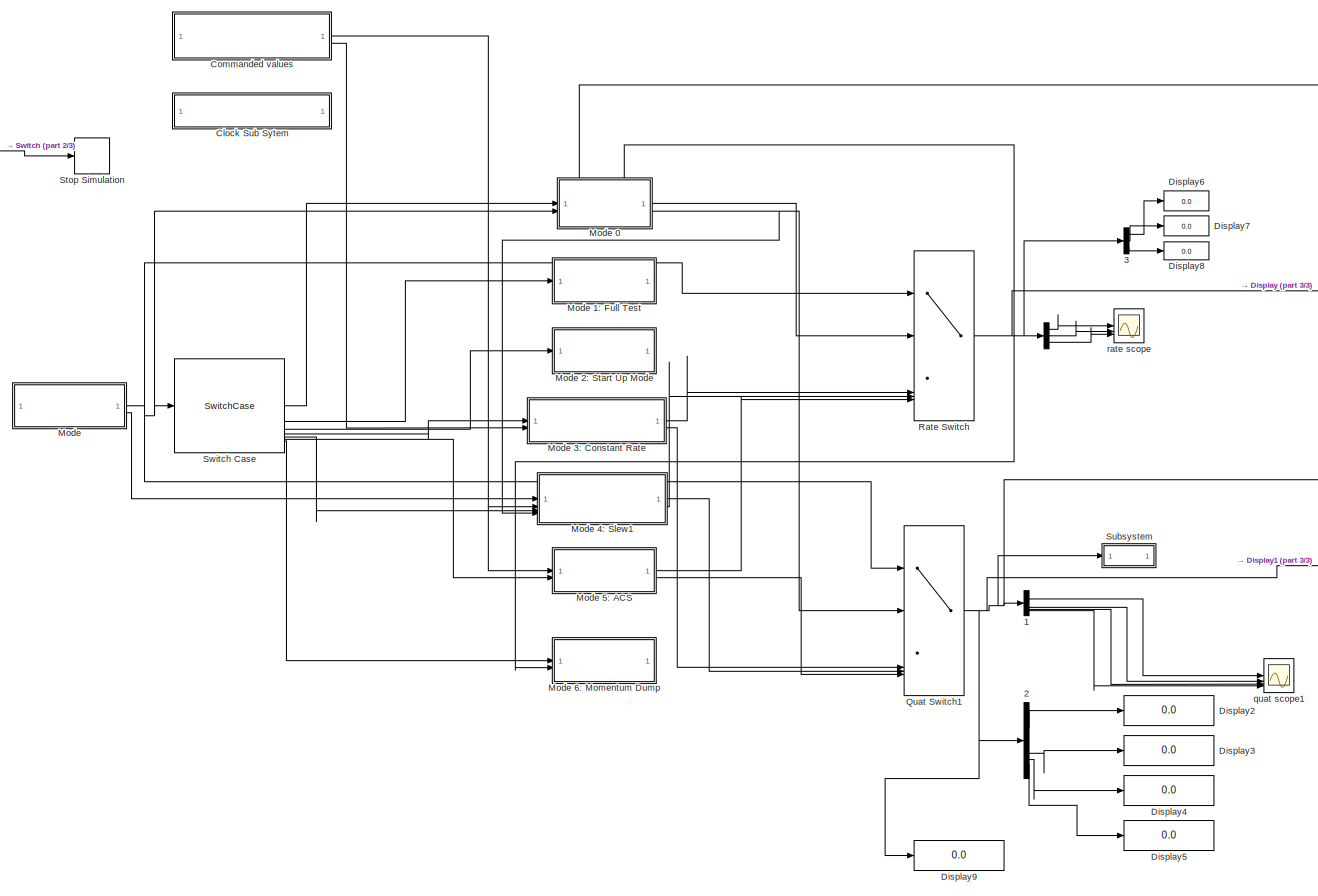
[diagram: root canvas - part 1/3, center side, full height]
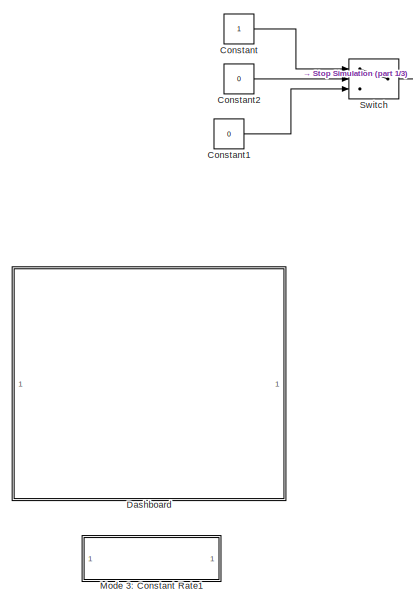
[diagram: root canvas - part 2/3, middle left region]
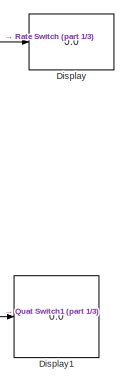
[diagram: root canvas - part 3/3, middle right region]
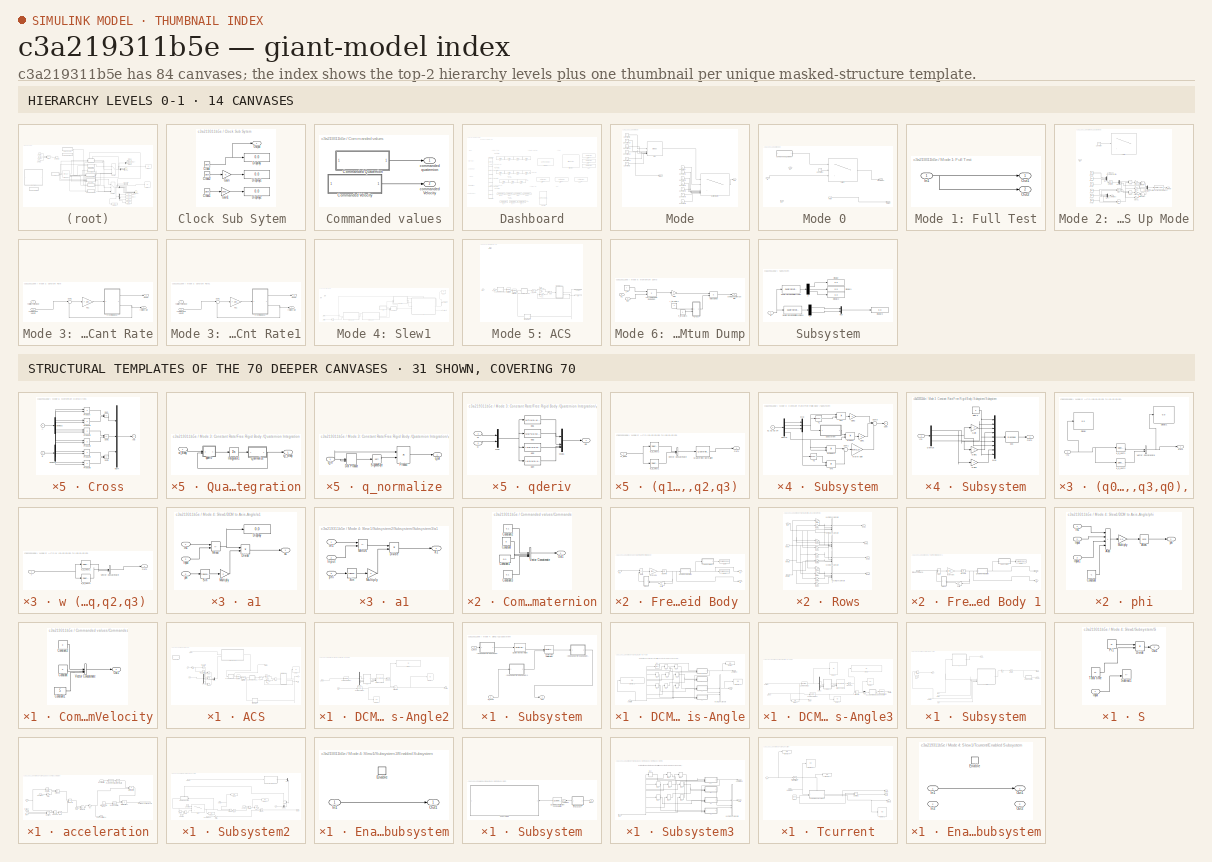
[diagram: thumbnail index - top-2 hierarchy levels (14 canvases) + 31 structural-template representatives of the remaining 70 canvases]
MODEL slx_c3a219311b5e
KIND model
CONFIG AbsTol = auto
CONFIG EnableMultiTasking = off
CONFIG FixedStep = auto
CONFIG MaxStep = 0.001
CONFIG MinStep = auto
CONFIG RelTol = 1e-5
CONFIG SampleTimeConstraint = Unconstrained
CONFIG SolverName = VariableStepAuto
CONFIG StartTime = 0.0
CONFIG StopTime = inf
WORKSPACE source: mxarray member
WORKSPACE A = 10
BLOCK [Demux]  
  DisplayOption = none
  Outputs = 3
BLOCK [Demux]  1
  DisplayOption = none
BLOCK [Demux]  2
  DisplayOption = none
BLOCK [Demux]  3
  DisplayOption = none
  Outputs = 3
BLOCK [SubSystem] Clock Sub Sytem 
BLOCK [Clock] Clock Sub Sytem /Clock
BLOCK [Clock] Clock Sub Sytem /Clock1
BLOCK [Clock] Clock Sub Sytem /Clock2
BLOCK [Display] Clock Sub Sytem /Display
  Decimation = 1
BLOCK [Display] Clock Sub Sytem /Display1
  Decimation = 1
BLOCK [Display] Clock Sub Sytem /Display2
  Decimation = 1
BLOCK [Gain] Clock Sub Sytem /Gain
BLOCK [Gain] Clock Sub Sytem /Gain1
  Gain = 3600
BLOCK [Outport] Clock Sub Sytem /Output
BLOCK [SubSystem] Commanded values
BLOCK [SubSystem] Commanded values/Commanded Quaternion
BLOCK [Constant] Commanded values/Commanded Quaternion/Constant
  Value = 8
BLOCK [Constant] Commanded values/Commanded Quaternion/Constant1
  Value = 0.1
BLOCK [Constant] Commanded values/Commanded Quaternion/Constant2
  Value = 0.1
BLOCK [Constant] Commanded values/Commanded Quaternion/Constant3
  Value = 0.1
BLOCK [Outport] Commanded values/Commanded Quaternion/Out1
BLOCK [Concatenate] Commanded values/Commanded Quaternion/Vector Concatenate
  NumInputs = 4
BLOCK [SubSystem] Commanded values/Commanded Velocity
BLOCK [Constant] Commanded values/Commanded Velocity/Constant
  Value = 0
BLOCK [Constant] Commanded values/Commanded Velocity/Constant1
  Value = 5
BLOCK [Constant] Commanded values/Commanded Velocity/Constant2
  Value = 0
BLOCK [Outport] Commanded values/Commanded Velocity/Out1
BLOCK [Concatenate] Commanded values/Commanded Velocity/Vector Concatenate
  NumInputs = 3
BLOCK [Outport] Commanded values/commanded Velocity
  Port = 2
BLOCK [Outport] Commanded values/commanded quaternion
BLOCK [Constant] Constant
BLOCK [Constant] Constant1
  Value = 0
BLOCK [Constant] Constant2
  Value = 0
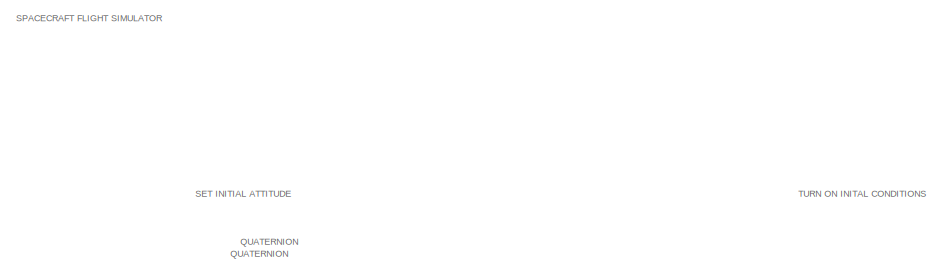
[diagram: Dashboard - part 1/4, top left region]
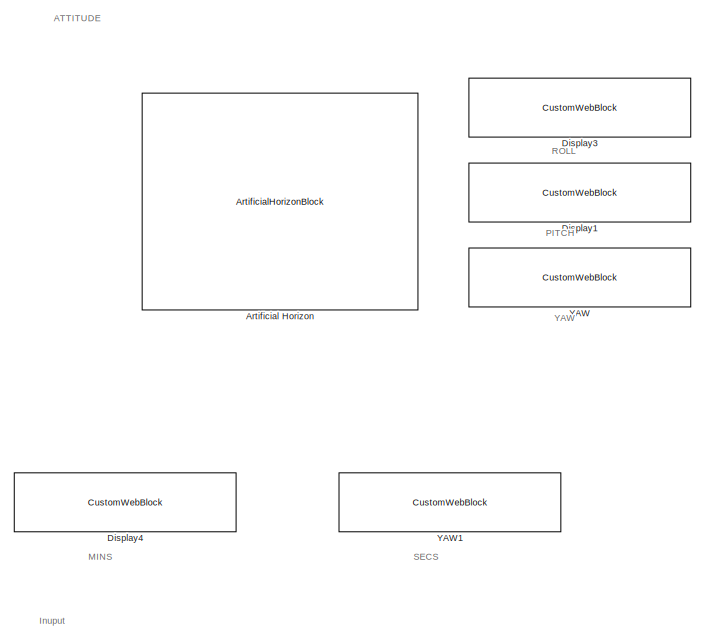
[diagram: Dashboard - part 2/4, middle right region]
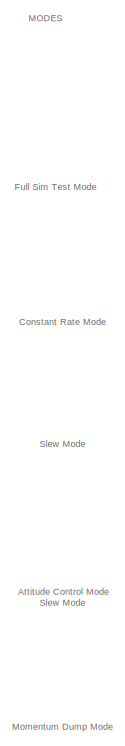
[diagram: Dashboard - part 3/4, middle left region]
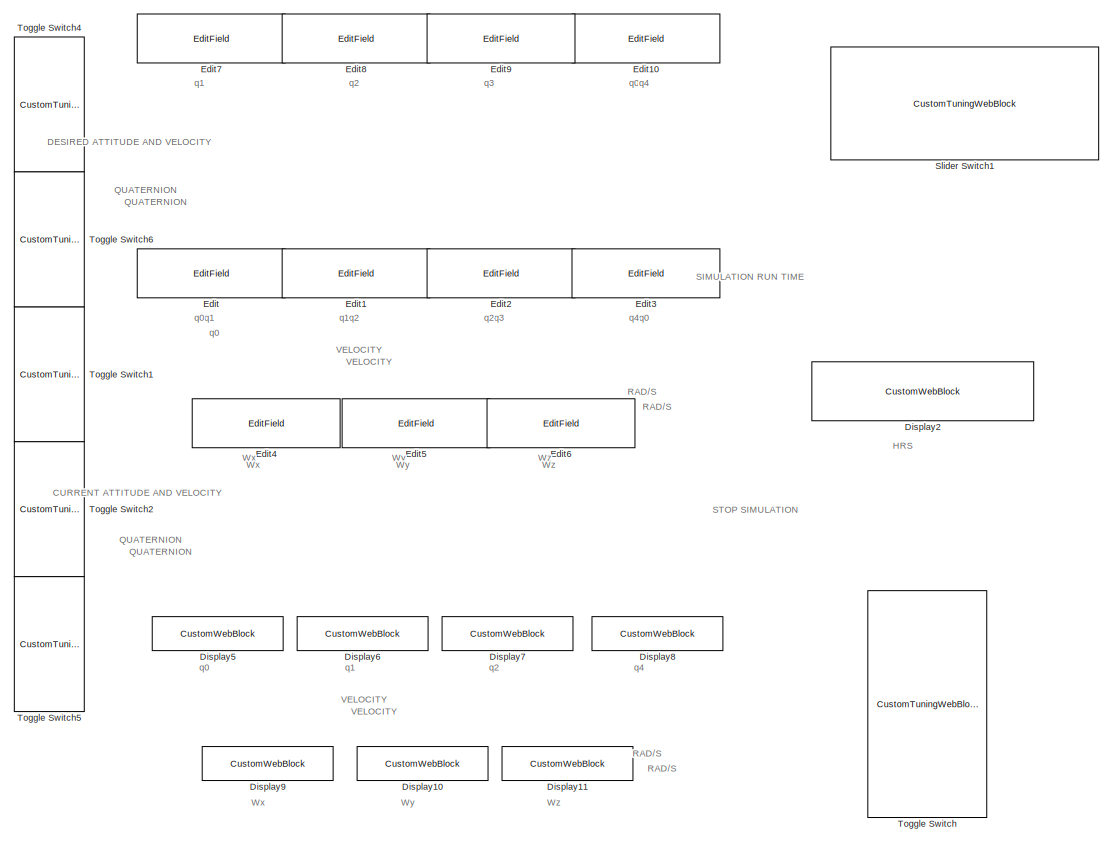
[diagram: Dashboard - part 4/4, central region]
BLOCK [SubSystem] Dashboard
BLOCK [ArtificialHorizonBlock] Dashboard/Artificial Horizon
BLOCK [CustomWebBlock] Dashboard/Display1
  Configuration = {"components":[{"name":"DisplayComponent","settings":{"bold":false,"font":"DSEG7 Classic","fontColor":[255,255,200],"fontSize":"14","format":"short","formatString":"%d","italic":false,"position":[0,0,1,1],"underline":false}},{"name":"BackgroundImageComponent","settings":{"image":{"size":[300,80],"src":"data:image\/svg+xml;base64,PHN2ZyBpZD0iZnJhbWUiIHhtbG5zPSJodHRwOi8vd3d3LnczLm9yZy8yMDAwL3N2ZyIge...<+1637ch>  <repeated x13 — deduplicated; at blocks: Display1, Display10, Display11, Display2, Display3, Display4, Display5, Display6, Display7, Display8, Display9, YAW, YAW1>
  LabelPosition = Hide
  ShowInitialText = on
BLOCK [CustomWebBlock] Dashboard/Display10
  LabelPosition = Hide
  ShowInitialText = on
BLOCK [CustomWebBlock] Dashboard/Display11
  LabelPosition = Hide
  ShowInitialText = on
BLOCK [CustomWebBlock] Dashboard/Display2
  LabelPosition = Hide
  ShowInitialText = on
BLOCK [CustomWebBlock] Dashboard/Display3
  LabelPosition = Hide
  ShowInitialText = on
BLOCK [CustomWebBlock] Dashboard/Display4
  LabelPosition = Hide
  ShowInitialText = on
BLOCK [CustomWebBlock] Dashboard/Display5
  LabelPosition = Hide
  ShowInitialText = on
BLOCK [CustomWebBlock] Dashboard/Display6
  LabelPosition = Hide
  ShowInitialText = on
BLOCK [CustomWebBlock] Dashboard/Display7
  LabelPosition = Hide
  ShowInitialText = on
BLOCK [CustomWebBlock] Dashboard/Display8
  LabelPosition = Hide
  ShowInitialText = on
BLOCK [CustomWebBlock] Dashboard/Display9
  LabelPosition = Hide
  ShowInitialText = on
BLOCK [EditField] Dashboard/Edit
  Alignment = Center
  LabelPosition = Hide
  ShowInitialText = on
BLOCK [EditField] Dashboard/Edit1
  Alignment = Center
  LabelPosition = Hide
  ShowInitialText = on
BLOCK [EditField] Dashboard/Edit10
  Alignment = Center
  LabelPosition = Hide
  ShowInitialText = on
BLOCK [EditField] Dashboard/Edit2
  Alignment = Center
  LabelPosition = Hide
  ShowInitialText = on
BLOCK [EditField] Dashboard/Edit3
  Alignment = Center
  LabelPosition = Hide
  ShowInitialText = on
BLOCK [EditField] Dashboard/Edit4
  Alignment = Center
  LabelPosition = Hide
  ShowInitialText = on
BLOCK [EditField] Dashboard/Edit5
  Alignment = Center
  LabelPosition = Hide
  ShowInitialText = on
BLOCK [EditField] Dashboard/Edit6
  Alignment = Center
  LabelPosition = Hide
  ShowInitialText = on
BLOCK [EditField] Dashboard/Edit7
  Alignment = Center
  LabelPosition = Hide
  ShowInitialText = on
BLOCK [EditField] Dashboard/Edit8
  Alignment = Center
  LabelPosition = Hide
  ShowInitialText = on
BLOCK [EditField] Dashboard/Edit9
  Alignment = Center
  LabelPosition = Hide
  ShowInitialText = on
BLOCK [CustomTuningWebBlock] Dashboard/Slider Switch1
  Configuration = {"components":[{"name":"CustomSwitchStateComponent","settings":{"position":[0,0,1,1],"states":[{"HitRegion":{"position":[0,0,0.5,1]},"Image":{"position":[0,0,1,1],"size":[1,1],"src":"data:image\/svg+xml;base64,PD94bWwgdmVyc2lvbj0iMS4wIiBlbmNvZGluZz0idXRmLTgiPz4NCjwhLS0gR2VuZXJhdG9yOiBBZG9iZSBJbGx1c3RyYXRvciAyNS4yLjEsIFNWRyBFeHBvcnQgUGx1Zy1JbiAuIFNWRyBWZXJzaW9uOiA2LjAwIEJ1aWxkIDApICAtLT4NCjxzdmcgdm...<+12680ch>
  LabelPosition = Hide
  ShowInitialText = on
BLOCK [CustomTuningWebBlock] Dashboard/Toggle Switch
  Configuration = {"components":[{"name":"CustomSwitchStateComponent","settings":{"position":[0,0,1,1],"showAllLabels":1,"states":[{"HitRegion":{"position":[0.5,0,1,0.5]},"Image":{"position":[0,0.24928571428571428,0.5014285714285714,1],"size":[0.5014285714285714,1],"src":"data:image\/svg+xml;base64,PHN2ZyB4bWxucz0iaHR0cDovL3d3dy53My5vcmcvMjAwMC9zdmciIHhtbG5zOnhsaW5rPSJodHRwOi8vd3d3LnczLm9yZy8xOTk5L3hsaW5rIiB2aWV3Qm...<+9166ch>
  LabelPosition = Hide
  ShowInitialText = on
BLOCK [CustomTuningWebBlock] Dashboard/Toggle Switch1
  Configuration = {"components":[{"name":"CustomSwitchStateComponent","settings":{"position":[0,0,1,1],"showAllLabels":1,"states":[{"HitRegion":{"position":[0.5,0,1,0.5]},"Image":{"position":[0,0.24928571428571428,0.5014285714285714,1],"size":[0.5014285714285714,1],"src":"data:image\/svg+xml;base64,PHN2ZyB4bWxucz0iaHR0cDovL3d3dy53My5vcmcvMjAwMC9zdmciIHhtbG5zOnhsaW5rPSJodHRwOi8vd3d3LnczLm9yZy8xOTk5L3hsaW5rIiB2aWV3Qm...<+9064ch>  <repeated x5 — deduplicated; at blocks: Toggle Switch1, Toggle Switch2, Toggle Switch4, Toggle Switch5, Toggle Switch6>
  CustomBackgroundColor = {"color":[0.00784313725490196,0.09411764705882353,0.16862745098039217],"show":true}
  LabelPosition = Hide
  ShowInitialText = on
BLOCK [CustomTuningWebBlock] Dashboard/Toggle Switch2
  CustomBackgroundColor = {"color":[0.00784313725490196,0.09411764705882353,0.16862745098039217],"show":true}
  LabelPosition = Hide
  ShowInitialText = on
BLOCK [CustomTuningWebBlock] Dashboard/Toggle Switch4
  CustomBackgroundColor = {"color":[0.00784313725490196,0.09411764705882353,0.16862745098039217],"show":true}
  LabelPosition = Hide
  ShowInitialText = on
BLOCK [CustomTuningWebBlock] Dashboard/Toggle Switch5
  CustomBackgroundColor = {"color":[0.00784313725490196,0.09411764705882353,0.16862745098039217],"show":true}
  LabelPosition = Hide
  ShowInitialText = on
BLOCK [CustomTuningWebBlock] Dashboard/Toggle Switch6
  CustomBackgroundColor = {"color":[0.00784313725490196,0.09411764705882353,0.16862745098039217],"show":true}
  LabelPosition = Hide
  ShowInitialText = on
BLOCK [CustomWebBlock] Dashboard/YAW
  LabelPosition = Hide
  ShowInitialText = on
BLOCK [CustomWebBlock] Dashboard/YAW1
  LabelPosition = Hide
  ShowInitialText = on
BLOCK [Display] Display
  Decimation = 1
BLOCK [Display] Display1
  Decimation = 1
BLOCK [Display] Display2
  Decimation = 1
BLOCK [Display] Display3
  Decimation = 1
BLOCK [Display] Display4
  Decimation = 1
BLOCK [Display] Display5
  Decimation = 1
BLOCK [Display] Display6
  Decimation = 1
BLOCK [Display] Display7
  Decimation = 1
BLOCK [Display] Display8
  Decimation = 1
BLOCK [Display] Display9
  Decimation = 1
BLOCK [SubSystem] Mode
BLOCK [SubSystem] Mode 0 
  PortSchema = {"entries":[{"content":{"sides":[{"content":{"connectorIds":["In1","In2"]},"type":"ConnectorPlacement.EquallySpacedRectSide","uuid":"86d363f2-53dc-4b23-b557-4d4fa5837e38"},{"content":{"connectorIds":["Out1","Out2"],"side":"RIGHT"},"type":"ConnectorPlacement.EquallySpacedRectSide","uuid":"eedbdfbc-6d02-4f31-9c03-399fb804b597"},{"content":{"connectorIds":["In3","In4"],"side":"TOP"},"type":"Connector...<+264ch>
BLOCK [SubSystem] Mode 0 /Commanded Quaternion
BLOCK [Constant] Mode 0 /Commanded Quaternion/Constant
  Value = 2
BLOCK [Constant] Mode 0 /Commanded Quaternion/Constant1
  Value = 5
BLOCK [Constant] Mode 0 /Commanded Quaternion/Constant2
  Value = 2
BLOCK [Constant] Mode 0 /Commanded Quaternion/Constant3
  Value = 3
BLOCK [Outport] Mode 0 /Commanded Quaternion/QUaternion
BLOCK [Concatenate] Mode 0 /Commanded Quaternion/Vector Concatenate
  NumInputs = 4
BLOCK [Constant] Mode 0 /Constant
  Value = 0
BLOCK [Inport] Mode 0 /In1
BLOCK [Inport] Mode 0 /In2
  Port = 2
BLOCK [Inport] Mode 0 /Q
  Port = 3
BLOCK [Outport] Mode 0 /Quaternion
  Port = 2
BLOCK [Inport] Mode 0 /Rate
  Port = 4
BLOCK [Outport] Mode 0 /Rate2
BLOCK [Switch] Mode 0 /Switch
  Criteria = u2 > Threshold
  InputSameDT = off
  SaturateOnIntegerOverflow = off
BLOCK [SubSystem] Mode 1: Full Test
  Commented = on
BLOCK [Inport] Mode 1: Full Test/In1
BLOCK [Outport] Mode 1: Full Test/Out1
BLOCK [Outport] Mode 1: Full Test/Out2
  Port = 2
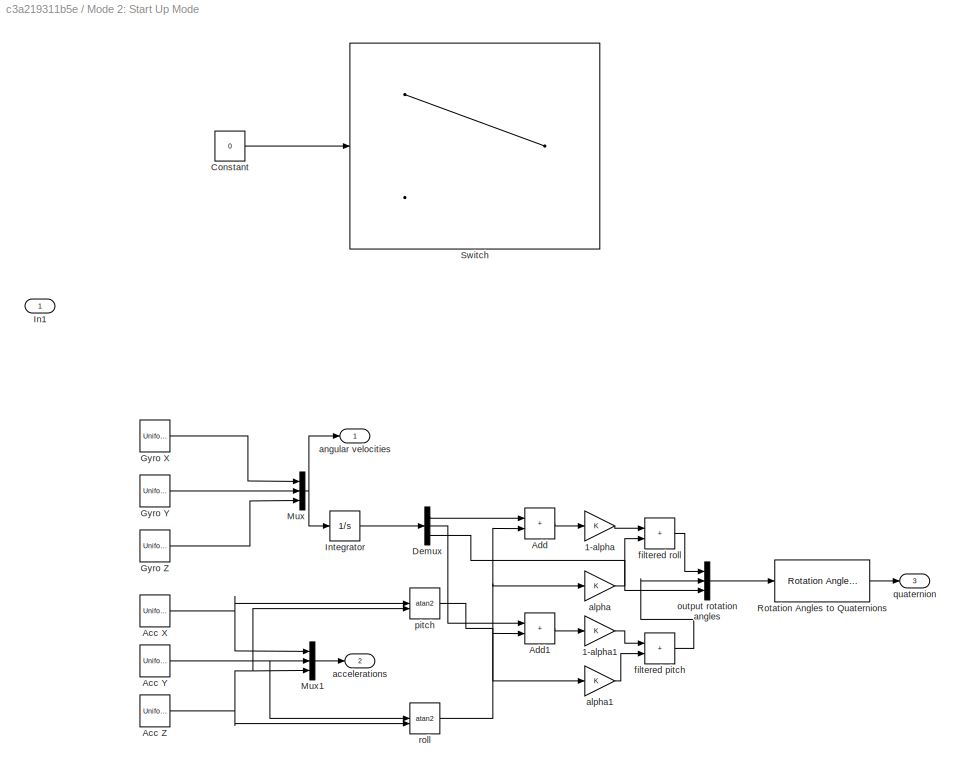
BLOCK [SubSystem] Mode 2: Start Up Mode
  Commented = on
BLOCK [Gain] Mode 2: Start Up Mode/1-alpha
BLOCK [Gain] Mode 2: Start Up Mode/1-alpha1
BLOCK [UniformRandomNumber] Mode 2: Start Up Mode/Acc X
  Maximum = 100
  Minimum = w_init
  SampleTime = 0.1
BLOCK [UniformRandomNumber] Mode 2: Start Up Mode/Acc Y
  Maximum = 100
  Minimum = w_init
  SampleTime = 0.1
BLOCK [UniformRandomNumber] Mode 2: Start Up Mode/Acc Z
  Maximum = 100
  Minimum = w_init
  SampleTime = 0.1
BLOCK [Sum] Mode 2: Start Up Mode/Add
  IconShape = rectangular
BLOCK [Sum] Mode 2: Start Up Mode/Add1
  IconShape = rectangular
BLOCK [Constant] Mode 2: Start Up Mode/Constant
  Value = 0
BLOCK [Demux] Mode 2: Start Up Mode/Demux
  Outputs = 3
BLOCK [UniformRandomNumber] Mode 2: Start Up Mode/Gyro X
  Maximum = 100
  Minimum = w_init
  SampleTime = 0.1
BLOCK [UniformRandomNumber] Mode 2: Start Up Mode/Gyro Y
  Maximum = 100
  Minimum = w_init
  SampleTime = 0.1
BLOCK [UniformRandomNumber] Mode 2: Start Up Mode/Gyro Z
  Maximum = 100
  Minimum = w_init
  SampleTime = 0.1
BLOCK [Inport] Mode 2: Start Up Mode/In1
BLOCK [Integrator] Mode 2: Start Up Mode/Integrator
BLOCK [Mux] Mode 2: Start Up Mode/Mux
  DisplayOption = bar
  Inputs = 3
BLOCK [Mux] Mode 2: Start Up Mode/Mux1
  DisplayOption = bar
  Inputs = 3
BLOCK [Reference] Mode 2: Start Up Mode/Rotation Angles to Quaternions  REF=sharedtransform/Rotation Angles to Quaternions
  AttributesFormatString = Rotation Order: %<rotationOrder>
  LibrarySourceBlock = aerolibtransform2/Rotation Angles to Quaternions
  SourceBlock = sharedtransform/Rotation Angles to Quaternions
  SourceType = Ang2Quat
BLOCK [Switch] Mode 2: Start Up Mode/Switch
  Criteria = u2 > Threshold
  InputSameDT = off
  SaturateOnIntegerOverflow = off
BLOCK [Outport] Mode 2: Start Up Mode/accelerations
  Port = 2
BLOCK [Gain] Mode 2: Start Up Mode/alpha
BLOCK [Gain] Mode 2: Start Up Mode/alpha1
BLOCK [Outport] Mode 2: Start Up Mode/angular velocities
BLOCK [Sum] Mode 2: Start Up Mode/filtered pitch
  IconShape = rectangular
BLOCK [Sum] Mode 2: Start Up Mode/filtered roll
  IconShape = rectangular
BLOCK [Mux] Mode 2: Start Up Mode/output rotation angles
  DisplayOption = bar
  Inputs = 3
BLOCK [Trigonometry] Mode 2: Start Up Mode/pitch
  Operator = atan2
BLOCK [Outport] Mode 2: Start Up Mode/quaternion
  Port = 3
BLOCK [Trigonometry] Mode 2: Start Up Mode/roll
  Operator = atan2
BLOCK [SubSystem] Mode 3: Constant Rate
BLOCK [SubSystem] Mode 3: Constant Rate/Free Rigid Body 
BLOCK [SubSystem] Mode 3: Constant Rate/Free Rigid Body /Cross
BLOCK [Inport] Mode 3: Constant Rate/Free Rigid Body /Cross/A
BLOCK [Outport] Mode 3: Constant Rate/Free Rigid Body /Cross/AxB
  InitialOutput = 0
BLOCK [Inport] Mode 3: Constant Rate/Free Rigid Body /Cross/B
  Port = 2
BLOCK [Mux] Mode 3: Constant Rate/Free Rigid Body /Cross/Mux4
  Inputs = 3
BLOCK [Product] Mode 3: Constant Rate/Free Rigid Body /Cross/Product
  InputSameDT = on
  OutDataTypeStr = Inherit: Same as first input
  SaturateOnIntegerOverflow = on
BLOCK [Product] Mode 3: Constant Rate/Free Rigid Body /Cross/Product1
  InputSameDT = on
  OutDataTypeStr = Inherit: Same as first input
  SaturateOnIntegerOverflow = on
BLOCK [Product] Mode 3: Constant Rate/Free Rigid Body /Cross/Product2
  InputSameDT = on
  OutDataTypeStr = Inherit: Same as first input
  SaturateOnIntegerOverflow = on
BLOCK [Product] Mode 3: Constant Rate/Free Rigid Body /Cross/Product3
  InputSameDT = on
  OutDataTypeStr = Inherit: Same as first input
  SaturateOnIntegerOverflow = on
BLOCK [Product] Mode 3: Constant Rate/Free Rigid Body /Cross/Product4
  InputSameDT = on
  OutDataTypeStr = Inherit: Same as first input
  SaturateOnIntegerOverflow = on
BLOCK [Product] Mode 3: Constant Rate/Free Rigid Body /Cross/Product5
  InputSameDT = on
  OutDataTypeStr = Inherit: Same as first input
  SaturateOnIntegerOverflow = on
BLOCK [Sum] Mode 3: Constant Rate/Free Rigid Body /Cross/Sum
  IconShape = rectangular
  InputSameDT = on
  Inputs = +-
  OutDataTypeStr = Inherit: Same as first input
  SaturateOnIntegerOverflow = on
BLOCK [Sum] Mode 3: Constant Rate/Free Rigid Body /Cross/Sum1
  IconShape = rectangular
  InputSameDT = on
  Inputs = +-
  OutDataTypeStr = Inherit: Same as first input
  SaturateOnIntegerOverflow = on
BLOCK [Sum] Mode 3: Constant Rate/Free Rigid Body /Cross/Sum2
  IconShape = rectangular
  InputSameDT = on
  Inputs = +-
  OutDataTypeStr = Inherit: Same as first input
  SaturateOnIntegerOverflow = on
BLOCK [Demux] Mode 3: Constant Rate/Free Rigid Body /Cross/demux2
  DisplayOption = none
  Outputs = 3
BLOCK [Demux] Mode 3: Constant Rate/Free Rigid Body /Cross/demux3
  DisplayOption = none
  Outputs = 3
BLOCK [ToWorkspace] Mode 3: Constant Rate/Free Rigid Body /DCM
  FixptAsFi = on
  MaxDataPoints = inf
  SampleTime = -1
  SaveFormat = Structure With Time
  VariableName = DCM
BLOCK [Inport] Mode 3: Constant Rate/Free Rigid Body /In2
BLOCK [Gain] Mode 3: Constant Rate/Free Rigid Body /Inertia
  Gain = I
  Multiplication = Matrix(K*u)
  OutDataTypeStr = Inherit: Same as input
  ParamDataTypeStr = Inherit: Same as input
  SaturateOnIntegerOverflow = on
BLOCK [Gain] Mode 3: Constant Rate/Free Rigid Body /Isc inverse
  Gain = invI
  Multiplication = Matrix(K*u)
  OutDataTypeStr = Inherit: Same as input
  ParamDataTypeStr = Inherit: Same as input
  SaturateOnIntegerOverflow = on
BLOCK [SubSystem] Mode 3: Constant Rate/Free Rigid Body /Quaternion Integration
BLOCK [Integrator] Mode 3: Constant Rate/Free Rigid Body /Quaternion Integration/Integrator1
  InitialCondition = q_init
BLOCK [Outport] Mode 3: Constant Rate/Free Rigid Body /Quaternion Integration/q_I_Body
BLOCK [SubSystem] Mode 3: Constant Rate/Free Rigid Body /Quaternion Integration/q_normalize
BLOCK [DotProduct] Mode 3: Constant Rate/Free Rigid Body /Quaternion Integration/q_normalize/Dot Product
  OutDataTypeStr = Inherit: Inherit via internal rule
BLOCK [Product] Mode 3: Constant Rate/Free Rigid Body /Quaternion Integration/q_normalize/Product
  InputSameDT = on
  Inputs = */
  OutDataTypeStr = Inherit: Same as first input
  SaturateOnIntegerOverflow = on
BLOCK [Sqrt] Mode 3: Constant Rate/Free Rigid Body /Quaternion Integration/q_normalize/SignedSqrt
  IntermediateResultsDataTypeStr = double
BLOCK [Inport] Mode 3: Constant Rate/Free Rigid Body /Quaternion Integration/q_normalize/q_in
  PortDimensions = 4
BLOCK [Outport] Mode 3: Constant Rate/Free Rigid Body /Quaternion Integration/q_normalize/q_out
BLOCK [SubSystem] Mode 3: Constant Rate/Free Rigid Body /Quaternion Integration/qderiv
BLOCK [Mux] Mode 3: Constant Rate/Free Rigid Body /Quaternion Integration/qderiv/Mux
  DisplayOption = bar
  Inputs = 2
BLOCK [Mux] Mode 3: Constant Rate/Free Rigid Body /Quaternion Integration/qderiv/Mux1
  DisplayOption = bar
BLOCK [Inport] Mode 3: Constant Rate/Free Rigid Body /Quaternion Integration/qderiv/q
  Port = 2
BLOCK [Outport] Mode 3: Constant Rate/Free Rigid Body /Quaternion Integration/qderiv/qd
BLOCK [Fcn] Mode 3: Constant Rate/Free Rigid Body /Quaternion Integration/qderiv/qd1
  Expr = (u(7)*u(1)-u(6)*u(2)+u(5)*u(3))/2
BLOCK [Fcn] Mode 3: Constant Rate/Free Rigid Body /Quaternion Integration/qderiv/qd2
  Expr = (u(6)*u(1)+u(7)*u(2)-u(4)*u(3))/2
BLOCK [Fcn] Mode 3: Constant Rate/Free Rigid Body /Quaternion Integration/qderiv/qd3
  Expr = (-u(5)*u(1)+u(4)*u(2)+u(7)*u(3))/2
BLOCK [Fcn] Mode 3: Constant Rate/Free Rigid Body /Quaternion Integration/qderiv/qd4
  Expr = (-u(4)*u(1)-u(5)*u(2)-u(6)*u(3))/2
BLOCK [Inport] Mode 3: Constant Rate/Free Rigid Body /Quaternion Integration/qderiv/w
BLOCK [Inport] Mode 3: Constant Rate/Free Rigid Body /Quaternion Integration/w_Body
BLOCK [SubSystem] Mode 3: Constant Rate/Free Rigid Body /Subsystem
BLOCK [Outport] Mode 3: Constant Rate/Free Rigid Body /Subsystem/DCM
  InitialOutput = 0
BLOCK [Demux] Mode 3: Constant Rate/Free Rigid Body /Subsystem/Demux
  DisplayOption = none
BLOCK [Gain] Mode 3: Constant Rate/Free Rigid Body /Subsystem/Gain1
  Gain = 2
  OutDataTypeStr = Inherit: Same as input
  ParamDataTypeStr = Inherit: Same as input
  SaturateOnIntegerOverflow = on
BLOCK [Gain] Mode 3: Constant Rate/Free Rigid Body /Subsystem/Gain2
  Gain = 2
  OutDataTypeStr = Inherit: Same as input
  ParamDataTypeStr = Inherit: Same as input
  SaturateOnIntegerOverflow = on
BLOCK [Gain] Mode 3: Constant Rate/Free Rigid Body /Subsystem/Matrix Gain
  Gain = eye(3,3)
  OutDataTypeStr = Inherit: Same as input
  ParamDataTypeStr = Inherit: Same as input
  SaturateOnIntegerOverflow = on
BLOCK [Mux] Mode 3: Constant Rate/Free Rigid Body /Subsystem/Mux
  DisplayOption = bar
  Inputs = 3
BLOCK [Product] Mode 3: Constant Rate/Free Rigid Body /Subsystem/Product
  InputSameDT = on
  OutDataTypeStr = Inherit: Same as first input
  SaturateOnIntegerOverflow = on
BLOCK [Product] Mode 3: Constant Rate/Free Rigid Body /Subsystem/Product1
  InputSameDT = on
  OutDataTypeStr = Inherit: Same as first input
  SaturateOnIntegerOverflow = on
BLOCK [SubSystem] Mode 3: Constant Rate/Free Rigid Body /Subsystem/Subsystem
BLOCK [Reshape] Mode 3: Constant Rate/Free Rigid Body /Subsystem/Subsystem/3x3
  OutputDimensionality = Customize
  OutputDimensions = [3,3]
BLOCK [Demux] Mode 3: Constant Rate/Free Rigid Body /Subsystem/Subsystem/Demux
  DisplayOption = none
  Outputs = 3
BLOCK [Gain] Mode 3: Constant Rate/Free Rigid Body /Subsystem/Subsystem/Gain
  Gain = -1
  OutDataTypeStr = Inherit: Same as input
  ParamDataTypeStr = Inherit: Same as input
  SaturateOnIntegerOverflow = on
BLOCK [Gain] Mode 3: Constant Rate/Free Rigid Body /Subsystem/Subsystem/Gain1
  Gain = -1
  OutDataTypeStr = Inherit: Same as input
  ParamDataTypeStr = Inherit: Same as input
  SaturateOnIntegerOverflow = on
BLOCK [Gain] Mode 3: Constant Rate/Free Rigid Body /Subsystem/Subsystem/Gain2
  Gain = -1
  OutDataTypeStr = Inherit: Same as input
  ParamDataTypeStr = Inherit: Same as input
  SaturateOnIntegerOverflow = on
BLOCK [Inport] Mode 3: Constant Rate/Free Rigid Body /Subsystem/Subsystem/In1
BLOCK [Mux] Mode 3: Constant Rate/Free Rigid Body /Subsystem/Subsystem/Mux
  DisplayOption = bar
  Inputs = 9
BLOCK [Outport] Mode 3: Constant Rate/Free Rigid Body /Subsystem/Subsystem/Out1
BLOCK [Constant] Mode 3: Constant Rate/Free Rigid Body /Subsystem/Subsystem/diag 0 
  Value = 0
BLOCK [Sum] Mode 3: Constant Rate/Free Rigid Body /Subsystem/Sum1
  InputSameDT = on
  Inputs = |+-
  OutDataTypeStr = Inherit: Same as first input
  SaturateOnIntegerOverflow = on
BLOCK [Sum] Mode 3: Constant Rate/Free Rigid Body /Subsystem/Sum8
  InputSameDT = on
  Inputs = |+-+
  OutDataTypeStr = Inherit: Same as first input
  SaturateOnIntegerOverflow = on
BLOCK [Math] Mode 3: Constant Rate/Free Rigid Body /Subsystem/T1
  Operator = transpose
  SignedPower = on
BLOCK [Math] Mode 3: Constant Rate/Free Rigid Body /Subsystem/T2
  Operator = transpose
  SignedPower = on
BLOCK [Inport] Mode 3: Constant Rate/Free Rigid Body /Subsystem/q1 q2 q3 q4
BLOCK [Product] Mode 3: Constant Rate/Free Rigid Body /Subsystem/qTq
  InputSameDT = on
  Multiplication = Matrix(*)
  OutDataTypeStr = Inherit: Same as first input
  SaturateOnIntegerOverflow = on
BLOCK [Product] Mode 3: Constant Rate/Free Rigid Body /Subsystem/qqT
  InputSameDT = on
  Multiplication = Matrix(*)
  OutDataTypeStr = Inherit: Same as first input
  SaturateOnIntegerOverflow = on
BLOCK [Sum] Mode 3: Constant Rate/Free Rigid Body /Sum
  IconShape = rectangular
  InputSameDT = on
  Inputs = |+-
  OutDataTypeStr = Inherit: Same as first input
  SaturateOnIntegerOverflow = on
BLOCK [Outport] Mode 3: Constant Rate/Free Rigid Body /q
BLOCK [ToWorkspace] Mode 3: Constant Rate/Free Rigid Body /quat
  FixptAsFi = on
  MaxDataPoints = inf
  SampleTime = -1
  SaveFormat = Structure With Time
  VariableName = quat
BLOCK [Outport] Mode 3: Constant Rate/Free Rigid Body /w
  Port = 2
BLOCK [Integrator] Mode 3: Constant Rate/Free Rigid Body /wdot -> w
  InitialCondition = wbn_init
BLOCK [Gain] Mode 3: Constant Rate/Kd1
  Gain = 2 * zet * wn * I
  Multiplication = Matrix(K*u)
  OutDataTypeStr = Inherit: Same as input
  ParamDataTypeStr = Inherit: Same as input
  SaturateOnIntegerOverflow = on
BLOCK [Sum] Mode 3: Constant Rate/Sum1
  Inputs = |+-
BLOCK [Inport] Mode 3: Constant Rate/commanded Velocity
  Port = 2
BLOCK [Outport] Mode 3: Constant Rate/quaat 
  Port = 2
BLOCK [Outport] Mode 3: Constant Rate/rotation rate
BLOCK [Inport] Mode 3: Constant Rate/rotation rate mode
BLOCK [SubSystem] Mode 3: Constant Rate1
  Commented = on
BLOCK [SubSystem] Mode 3: Constant Rate1/Free Rigid Body 
BLOCK [SubSystem] Mode 3: Constant Rate1/Free Rigid Body /Cross
BLOCK [Inport] Mode 3: Constant Rate1/Free Rigid Body /Cross/A
BLOCK [Outport] Mode 3: Constant Rate1/Free Rigid Body /Cross/AxB
  InitialOutput = 0
BLOCK [Inport] Mode 3: Constant Rate1/Free Rigid Body /Cross/B
  Port = 2
BLOCK [Mux] Mode 3: Constant Rate1/Free Rigid Body /Cross/Mux4
  Inputs = 3
BLOCK [Product] Mode 3: Constant Rate1/Free Rigid Body /Cross/Product
  InputSameDT = on
  OutDataTypeStr = Inherit: Same as first input
  SaturateOnIntegerOverflow = on
BLOCK [Product] Mode 3: Constant Rate1/Free Rigid Body /Cross/Product1
  InputSameDT = on
  OutDataTypeStr = Inherit: Same as first input
  SaturateOnIntegerOverflow = on
BLOCK [Product] Mode 3: Constant Rate1/Free Rigid Body /Cross/Product2
  InputSameDT = on
  OutDataTypeStr = Inherit: Same as first input
  SaturateOnIntegerOverflow = on
BLOCK [Product] Mode 3: Constant Rate1/Free Rigid Body /Cross/Product3
  InputSameDT = on
  OutDataTypeStr = Inherit: Same as first input
  SaturateOnIntegerOverflow = on
BLOCK [Product] Mode 3: Constant Rate1/Free Rigid Body /Cross/Product4
  InputSameDT = on
  OutDataTypeStr = Inherit: Same as first input
  SaturateOnIntegerOverflow = on
BLOCK [Product] Mode 3: Constant Rate1/Free Rigid Body /Cross/Product5
  InputSameDT = on
  OutDataTypeStr = Inherit: Same as first input
  SaturateOnIntegerOverflow = on
BLOCK [Sum] Mode 3: Constant Rate1/Free Rigid Body /Cross/Sum
  IconShape = rectangular
  InputSameDT = on
  Inputs = +-
  OutDataTypeStr = Inherit: Same as first input
  SaturateOnIntegerOverflow = on
BLOCK [Sum] Mode 3: Constant Rate1/Free Rigid Body /Cross/Sum1
  IconShape = rectangular
  InputSameDT = on
  Inputs = +-
  OutDataTypeStr = Inherit: Same as first input
  SaturateOnIntegerOverflow = on
BLOCK [Sum] Mode 3: Constant Rate1/Free Rigid Body /Cross/Sum2
  IconShape = rectangular
  InputSameDT = on
  Inputs = +-
  OutDataTypeStr = Inherit: Same as first input
  SaturateOnIntegerOverflow = on
BLOCK [Demux] Mode 3: Constant Rate1/Free Rigid Body /Cross/demux2
  DisplayOption = none
  Outputs = 3
BLOCK [Demux] Mode 3: Constant Rate1/Free Rigid Body /Cross/demux3
  DisplayOption = none
  Outputs = 3
BLOCK [ToWorkspace] Mode 3: Constant Rate1/Free Rigid Body /DCM
  FixptAsFi = on
  MaxDataPoints = inf
  SampleTime = -1
  SaveFormat = Structure With Time
  VariableName = DCM
BLOCK [Inport] Mode 3: Constant Rate1/Free Rigid Body /In2
BLOCK [Gain] Mode 3: Constant Rate1/Free Rigid Body /Inertia
  Gain = I
  Multiplication = Matrix(K*u)
  OutDataTypeStr = Inherit: Same as input
  ParamDataTypeStr = Inherit: Same as input
  SaturateOnIntegerOverflow = on
BLOCK [Gain] Mode 3: Constant Rate1/Free Rigid Body /Isc inverse
  Gain = invI
  Multiplication = Matrix(K*u)
  OutDataTypeStr = Inherit: Same as input
  ParamDataTypeStr = Inherit: Same as input
  SaturateOnIntegerOverflow = on
BLOCK [SubSystem] Mode 3: Constant Rate1/Free Rigid Body /Quaternion Integration
BLOCK [Integrator] Mode 3: Constant Rate1/Free Rigid Body /Quaternion Integration/Integrator1
  InitialCondition = q_init
BLOCK [Outport] Mode 3: Constant Rate1/Free Rigid Body /Quaternion Integration/q_I_Body
BLOCK [SubSystem] Mode 3: Constant Rate1/Free Rigid Body /Quaternion Integration/q_normalize
BLOCK [DotProduct] Mode 3: Constant Rate1/Free Rigid Body /Quaternion Integration/q_normalize/Dot Product
  OutDataTypeStr = Inherit: Inherit via internal rule
BLOCK [Product] Mode 3: Constant Rate1/Free Rigid Body /Quaternion Integration/q_normalize/Product
  InputSameDT = on
  Inputs = */
  OutDataTypeStr = Inherit: Same as first input
  SaturateOnIntegerOverflow = on
BLOCK [Sqrt] Mode 3: Constant Rate1/Free Rigid Body /Quaternion Integration/q_normalize/SignedSqrt
  IntermediateResultsDataTypeStr = double
BLOCK [Inport] Mode 3: Constant Rate1/Free Rigid Body /Quaternion Integration/q_normalize/q_in
  PortDimensions = 4
BLOCK [Outport] Mode 3: Constant Rate1/Free Rigid Body /Quaternion Integration/q_normalize/q_out
BLOCK [SubSystem] Mode 3: Constant Rate1/Free Rigid Body /Quaternion Integration/qderiv
BLOCK [Mux] Mode 3: Constant Rate1/Free Rigid Body /Quaternion Integration/qderiv/Mux
  DisplayOption = bar
  Inputs = 2
BLOCK [Mux] Mode 3: Constant Rate1/Free Rigid Body /Quaternion Integration/qderiv/Mux1
  DisplayOption = bar
BLOCK [Inport] Mode 3: Constant Rate1/Free Rigid Body /Quaternion Integration/qderiv/q
  Port = 2
BLOCK [Outport] Mode 3: Constant Rate1/Free Rigid Body /Quaternion Integration/qderiv/qd
BLOCK [Fcn] Mode 3: Constant Rate1/Free Rigid Body /Quaternion Integration/qderiv/qd1
  Expr = (u(7)*u(1)-u(6)*u(2)+u(5)*u(3))/2
BLOCK [Fcn] Mode 3: Constant Rate1/Free Rigid Body /Quaternion Integration/qderiv/qd2
  Expr = (u(6)*u(1)+u(7)*u(2)-u(4)*u(3))/2
BLOCK [Fcn] Mode 3: Constant Rate1/Free Rigid Body /Quaternion Integration/qderiv/qd3
  Expr = (-u(5)*u(1)+u(4)*u(2)+u(7)*u(3))/2
BLOCK [Fcn] Mode 3: Constant Rate1/Free Rigid Body /Quaternion Integration/qderiv/qd4
  Expr = (-u(4)*u(1)-u(5)*u(2)-u(6)*u(3))/2
BLOCK [Inport] Mode 3: Constant Rate1/Free Rigid Body /Quaternion Integration/qderiv/w
BLOCK [Inport] Mode 3: Constant Rate1/Free Rigid Body /Quaternion Integration/w_Body
BLOCK [SubSystem] Mode 3: Constant Rate1/Free Rigid Body /Subsystem
BLOCK [Outport] Mode 3: Constant Rate1/Free Rigid Body /Subsystem/DCM
  InitialOutput = 0
BLOCK [Demux] Mode 3: Constant Rate1/Free Rigid Body /Subsystem/Demux
  DisplayOption = none
BLOCK [Gain] Mode 3: Constant Rate1/Free Rigid Body /Subsystem/Gain1
  Gain = 2
  OutDataTypeStr = Inherit: Same as input
  ParamDataTypeStr = Inherit: Same as input
  SaturateOnIntegerOverflow = on
BLOCK [Gain] Mode 3: Constant Rate1/Free Rigid Body /Subsystem/Gain2
  Gain = 2
  OutDataTypeStr = Inherit: Same as input
  ParamDataTypeStr = Inherit: Same as input
  SaturateOnIntegerOverflow = on
BLOCK [Gain] Mode 3: Constant Rate1/Free Rigid Body /Subsystem/Matrix Gain
  Gain = eye(3,3)
  OutDataTypeStr = Inherit: Same as input
  ParamDataTypeStr = Inherit: Same as input
  SaturateOnIntegerOverflow = on
BLOCK [Mux] Mode 3: Constant Rate1/Free Rigid Body /Subsystem/Mux
  DisplayOption = bar
  Inputs = 3
BLOCK [Product] Mode 3: Constant Rate1/Free Rigid Body /Subsystem/Product
  InputSameDT = on
  OutDataTypeStr = Inherit: Same as first input
  SaturateOnIntegerOverflow = on
BLOCK [Product] Mode 3: Constant Rate1/Free Rigid Body /Subsystem/Product1
  InputSameDT = on
  OutDataTypeStr = Inherit: Same as first input
  SaturateOnIntegerOverflow = on
BLOCK [SubSystem] Mode 3: Constant Rate1/Free Rigid Body /Subsystem/Subsystem
BLOCK [Reshape] Mode 3: Constant Rate1/Free Rigid Body /Subsystem/Subsystem/3x3
  OutputDimensionality = Customize
  OutputDimensions = [3,3]
BLOCK [Demux] Mode 3: Constant Rate1/Free Rigid Body /Subsystem/Subsystem/Demux
  DisplayOption = none
  Outputs = 3
BLOCK [Gain] Mode 3: Constant Rate1/Free Rigid Body /Subsystem/Subsystem/Gain
  Gain = -1
  OutDataTypeStr = Inherit: Same as input
  ParamDataTypeStr = Inherit: Same as input
  SaturateOnIntegerOverflow = on
BLOCK [Gain] Mode 3: Constant Rate1/Free Rigid Body /Subsystem/Subsystem/Gain1
  Gain = -1
  OutDataTypeStr = Inherit: Same as input
  ParamDataTypeStr = Inherit: Same as input
  SaturateOnIntegerOverflow = on
BLOCK [Gain] Mode 3: Constant Rate1/Free Rigid Body /Subsystem/Subsystem/Gain2
  Gain = -1
  OutDataTypeStr = Inherit: Same as input
  ParamDataTypeStr = Inherit: Same as input
  SaturateOnIntegerOverflow = on
BLOCK [Inport] Mode 3: Constant Rate1/Free Rigid Body /Subsystem/Subsystem/In1
BLOCK [Mux] Mode 3: Constant Rate1/Free Rigid Body /Subsystem/Subsystem/Mux
  DisplayOption = bar
  Inputs = 9
BLOCK [Outport] Mode 3: Constant Rate1/Free Rigid Body /Subsystem/Subsystem/Out1
BLOCK [Constant] Mode 3: Constant Rate1/Free Rigid Body /Subsystem/Subsystem/diag 0 
  Value = 0
BLOCK [Sum] Mode 3: Constant Rate1/Free Rigid Body /Subsystem/Sum1
  InputSameDT = on
  Inputs = |+-
  OutDataTypeStr = Inherit: Same as first input
  SaturateOnIntegerOverflow = on
BLOCK [Sum] Mode 3: Constant Rate1/Free Rigid Body /Subsystem/Sum8
  InputSameDT = on
  Inputs = |+-+
  OutDataTypeStr = Inherit: Same as first input
  SaturateOnIntegerOverflow = on
BLOCK [Math] Mode 3: Constant Rate1/Free Rigid Body /Subsystem/T1
  Operator = transpose
  SignedPower = on
BLOCK [Math] Mode 3: Constant Rate1/Free Rigid Body /Subsystem/T2
  Operator = transpose
  SignedPower = on
BLOCK [Inport] Mode 3: Constant Rate1/Free Rigid Body /Subsystem/q1 q2 q3 q4
BLOCK [Product] Mode 3: Constant Rate1/Free Rigid Body /Subsystem/qTq
  InputSameDT = on
  Multiplication = Matrix(*)
  OutDataTypeStr = Inherit: Same as first input
  SaturateOnIntegerOverflow = on
BLOCK [Product] Mode 3: Constant Rate1/Free Rigid Body /Subsystem/qqT
  InputSameDT = on
  Multiplication = Matrix(*)
  OutDataTypeStr = Inherit: Same as first input
  SaturateOnIntegerOverflow = on
BLOCK [Sum] Mode 3: Constant Rate1/Free Rigid Body /Sum
  IconShape = rectangular
  InputSameDT = on
  Inputs = |+-
  OutDataTypeStr = Inherit: Same as first input
  SaturateOnIntegerOverflow = on
BLOCK [Outport] Mode 3: Constant Rate1/Free Rigid Body /q
BLOCK [ToWorkspace] Mode 3: Constant Rate1/Free Rigid Body /quat
  FixptAsFi = on
  MaxDataPoints = inf
  SampleTime = -1
  SaveFormat = Structure With Time
  VariableName = quat
BLOCK [Outport] Mode 3: Constant Rate1/Free Rigid Body /w
  Port = 2
BLOCK [Integrator] Mode 3: Constant Rate1/Free Rigid Body /wdot -> w
  InitialCondition = wbn_init
BLOCK [Gain] Mode 3: Constant Rate1/Kd1
  Gain = 2 * zet * wn * I
  Multiplication = Matrix(K*u)
  OutDataTypeStr = Inherit: Same as input
  ParamDataTypeStr = Inherit: Same as input
  SaturateOnIntegerOverflow = on
BLOCK [Sum] Mode 3: Constant Rate1/Sum1
  Inputs = |+-
BLOCK [Inport] Mode 3: Constant Rate1/commanded Velocity
  Port = 2
BLOCK [Outport] Mode 3: Constant Rate1/quaat 
  Port = 2
BLOCK [Outport] Mode 3: Constant Rate1/rotation rate
BLOCK [Inport] Mode 3: Constant Rate1/rotation rate mode
BLOCK [SubSystem] Mode 4: Slew1
  Commented = on
BLOCK [SubSystem] Mode 4: Slew1/ACS
  PortSchema = {"entries":[{"content":{"sides":[{"content":{"connectorIds":["Out3","In1","In2"]},"type":"ConnectorPlacement.EquallySpacedRectSide","uuid":"9f52ffb6-d3dd-46bc-9b08-6a9b1eb08f5a"},{"content":{"connectorIds":["Out1","Out2"],"side":"RIGHT"},"type":"ConnectorPlacement.EquallySpacedRectSide","uuid":"c36a10f6-7735-4632-825f-f5f96e6ba4a0"},{"content":{"connectorIds":["In3"],"side":"TOP"},"type":"Connecto...<+265ch>
BLOCK [SubSystem] Mode 4: Slew1/ACS/(q0,q1,q2,q3) to (q1,q2,q3,q0),
BLOCK [Display] Mode 4: Slew1/ACS/(q0,q1,q2,q3) to (q1,q2,q3,q0),/Display
  Decimation = 1
BLOCK [Display] Mode 4: Slew1/ACS/(q0,q1,q2,q3) to (q1,q2,q3,q0),/Display1
  Decimation = 1
BLOCK [Inport] Mode 4: Slew1/ACS/(q0,q1,q2,q3) to (q1,q2,q3,q0),/In1
BLOCK [Outport] Mode 4: Slew1/ACS/(q0,q1,q2,q3) to (q1,q2,q3,q0),/Out1
BLOCK [Concatenate] Mode 4: Slew1/ACS/(q0,q1,q2,q3) to (q1,q2,q3,q0),/Vector Concatenate
BLOCK [Selector] Mode 4: Slew1/ACS/(q0,q1,q2,q3) to (q1,q2,q3,q0),/e_q_vect1
  IndexOptions = Index vector (dialog)
  Indices = [2 3 4]
  InputPortWidth = 4
  OutputSizes = 1
BLOCK [Selector] Mode 4: Slew1/ACS/(q0,q1,q2,q3) to (q1,q2,q3,q0),/e_q_vect2
  IndexOptions = Index vector (dialog)
  Indices = [1]
  InputPortWidth = 4
  OutputSizes = 1
BLOCK [SubSystem] Mode 4: Slew1/ACS/(q1,q2,q3,q0) to (q0,q1,q2,q3) 
BLOCK [Outport] Mode 4: Slew1/ACS/(q1,q2,q3,q0) to (q0,q1,q2,q3) /Output
BLOCK [Inport] Mode 4: Slew1/ACS/(q1,q2,q3,q0) to (q0,q1,q2,q3) /Q_input
BLOCK [Reference] Mode 4: Slew1/ACS/(q1,q2,q3,q0) to (q0,q1,q2,q3) /Quaternion Normalize  REF=sharedutil/Quaternion
Normalize
  LibrarySourceBlock = aerolibutil/Quaternion\nNormalize
  SourceBlock = sharedutil/Quaternion\nNormalize
  SourceType = Quaternion Normalize
BLOCK [Concatenate] Mode 4: Slew1/ACS/(q1,q2,q3,q0) to (q0,q1,q2,q3) /Vector Concatenate
BLOCK [Selector] Mode 4: Slew1/ACS/(q1,q2,q3,q0) to (q0,q1,q2,q3) /e_q_vect1
  IndexOptions = Index vector (dialog)
  Indices = [1 2 3]
  InputPortWidth = 4
  OutputSizes = 1
BLOCK [Selector] Mode 4: Slew1/ACS/(q1,q2,q3,q0) to (q0,q1,q2,q3) /e_q_vect2
  IndexOptions = Index vector (dialog)
  Indices = [4]
  InputPortWidth = 4
  OutputSizes = 1
BLOCK [Sum] Mode 4: Slew1/ACS/Add1
  IconShape = rectangular
  Inputs = --
BLOCK [SubSystem] Mode 4: Slew1/ACS/DCM to Axis-Angle2
BLOCK [Demux] Mode 4: Slew1/ACS/DCM to Axis-Angle2/Demux
BLOCK [Display] Mode 4: Slew1/ACS/DCM to Axis-Angle2/Display
  Decimation = 1
BLOCK [Display] Mode 4: Slew1/ACS/DCM to Axis-Angle2/Display1
  Decimation = 1
BLOCK [Display] Mode 4: Slew1/ACS/DCM to Axis-Angle2/Display3
  Decimation = 1
BLOCK [Concatenate] Mode 4: Slew1/ACS/DCM to Axis-Angle2/Matrix Concatenate
  ConcatenateDimension = 2
  Mode = Multidimensional array
  NumInputs = 4
BLOCK [Product] Mode 4: Slew1/ACS/DCM to Axis-Angle2/MatrixMultiply
  Multiplication = Matrix(*)
BLOCK [Inport] Mode 4: Slew1/ACS/DCM to Axis-Angle2/Q_input
BLOCK [Reference] Mode 4: Slew1/ACS/DCM to Axis-Angle2/Quaternion Normalize  REF=sharedutil/Quaternion
Normalize
  LibrarySourceBlock = aerolibutil/Quaternion\nNormalize
  SourceBlock = sharedutil/Quaternion\nNormalize
  SourceType = Quaternion Normalize
BLOCK [Reference] Mode 4: Slew1/ACS/DCM to Axis-Angle2/Quaternion Normalize1  REF=sharedutil/Quaternion
Normalize
  LibrarySourceBlock = aerolibutil/Quaternion\nNormalize
  SourceBlock = sharedutil/Quaternion\nNormalize
  SourceType = Quaternion Normalize
BLOCK [SubSystem] Mode 4: Slew1/ACS/DCM to Axis-Angle2/Rows
BLOCK [Gain] Mode 4: Slew1/ACS/DCM to Axis-Angle2/Rows/Gain
BLOCK [Gain] Mode 4: Slew1/ACS/DCM to Axis-Angle2/Rows/Gain1
  Gain = -1
BLOCK [Gain] Mode 4: Slew1/ACS/DCM to Axis-Angle2/Rows/Gain2
BLOCK [Gain] Mode 4: Slew1/ACS/DCM to Axis-Angle2/Rows/Gain3
  Gain = -1
BLOCK [Gain] Mode 4: Slew1/ACS/DCM to Axis-Angle2/Rows/Gain4
  Gain = -1
BLOCK [Gain] Mode 4: Slew1/ACS/DCM to Axis-Angle2/Rows/Gain5
BLOCK [Gain] Mode 4: Slew1/ACS/DCM to Axis-Angle2/Rows/Gain6
  Gain = -1
BLOCK [Gain] Mode 4: Slew1/ACS/DCM to Axis-Angle2/Rows/Gain7
  Gain = -1
BLOCK [Gain] Mode 4: Slew1/ACS/DCM to Axis-Angle2/Rows/Gain8
  Gain = -1
BLOCK [Gain] Mode 4: Slew1/ACS/DCM to Axis-Angle2/Rows/Gain9
BLOCK [Inport] Mode 4: Slew1/ACS/DCM to Axis-Angle2/Rows/In1
BLOCK [Inport] Mode 4: Slew1/ACS/DCM to Axis-Angle2/Rows/Input
  Port = 2
BLOCK [Inport] Mode 4: Slew1/ACS/DCM to Axis-Angle2/Rows/Input1
  Port = 3
BLOCK [Inport] Mode 4: Slew1/ACS/DCM to Axis-Angle2/Rows/Input2
  Port = 4
BLOCK [Outport] Mode 4: Slew1/ACS/DCM to Axis-Angle2/Rows/Row1
BLOCK [Outport] Mode 4: Slew1/ACS/DCM to Axis-Angle2/Rows/Row2
  Port = 2
BLOCK [Outport] Mode 4: Slew1/ACS/DCM to Axis-Angle2/Rows/Row3
  Port = 3
BLOCK [Outport] Mode 4: Slew1/ACS/DCM to Axis-Angle2/Rows/Row4
  Port = 4
BLOCK [Concatenate] Mode 4: Slew1/ACS/DCM to Axis-Angle2/Rows/Vector Concatenate
  NumInputs = 4
BLOCK [Concatenate] Mode 4: Slew1/ACS/DCM to Axis-Angle2/Rows/Vector Concatenate1
  NumInputs = 4
BLOCK [Concatenate] Mode 4: Slew1/ACS/DCM to Axis-Angle2/Rows/Vector Concatenate2
  NumInputs = 4
BLOCK [Concatenate] Mode 4: Slew1/ACS/DCM to Axis-Angle2/Rows/Vector Concatenate3
  NumInputs = 4
BLOCK [Math] Mode 4: Slew1/ACS/DCM to Axis-Angle2/Transpose
  Operator = transpose
BLOCK [Inport] Mode 4: Slew1/ACS/DCM to Axis-Angle2/q diff
  NameLocation = left
  Port = 2
BLOCK [Outport] Mode 4: Slew1/ACS/DCM to Axis-Angle2/quatDiff
BLOCK [Demux] Mode 4: Slew1/ACS/Demux
  Outputs = 3
BLOCK [Display] Mode 4: Slew1/ACS/Display
  Decimation = 1
BLOCK [SubSystem] Mode 4: Slew1/ACS/Free Rigid Body 1
BLOCK [SubSystem] Mode 4: Slew1/ACS/Free Rigid Body 1/Cross
BLOCK [Inport] Mode 4: Slew1/ACS/Free Rigid Body 1/Cross/A
BLOCK [Outport] Mode 4: Slew1/ACS/Free Rigid Body 1/Cross/AxB
  InitialOutput = 0
BLOCK [Inport] Mode 4: Slew1/ACS/Free Rigid Body 1/Cross/B
  Port = 2
BLOCK [Mux] Mode 4: Slew1/ACS/Free Rigid Body 1/Cross/Mux4
  Inputs = 3
BLOCK [Product] Mode 4: Slew1/ACS/Free Rigid Body 1/Cross/Product
  InputSameDT = on
  OutDataTypeStr = Inherit: Same as first input
  SaturateOnIntegerOverflow = on
BLOCK [Product] Mode 4: Slew1/ACS/Free Rigid Body 1/Cross/Product1
  InputSameDT = on
  OutDataTypeStr = Inherit: Same as first input
  SaturateOnIntegerOverflow = on
BLOCK [Product] Mode 4: Slew1/ACS/Free Rigid Body 1/Cross/Product2
  InputSameDT = on
  OutDataTypeStr = Inherit: Same as first input
  SaturateOnIntegerOverflow = on
BLOCK [Product] Mode 4: Slew1/ACS/Free Rigid Body 1/Cross/Product3
  InputSameDT = on
  OutDataTypeStr = Inherit: Same as first input
  SaturateOnIntegerOverflow = on
BLOCK [Product] Mode 4: Slew1/ACS/Free Rigid Body 1/Cross/Product4
  InputSameDT = on
  OutDataTypeStr = Inherit: Same as first input
  SaturateOnIntegerOverflow = on
BLOCK [Product] Mode 4: Slew1/ACS/Free Rigid Body 1/Cross/Product5
  InputSameDT = on
  OutDataTypeStr = Inherit: Same as first input
  SaturateOnIntegerOverflow = on
BLOCK [Sum] Mode 4: Slew1/ACS/Free Rigid Body 1/Cross/Sum
  IconShape = rectangular
  InputSameDT = on
  Inputs = +-
  OutDataTypeStr = Inherit: Same as first input
  SaturateOnIntegerOverflow = on
BLOCK [Sum] Mode 4: Slew1/ACS/Free Rigid Body 1/Cross/Sum1
  IconShape = rectangular
  InputSameDT = on
  Inputs = +-
  OutDataTypeStr = Inherit: Same as first input
  SaturateOnIntegerOverflow = on
BLOCK [Sum] Mode 4: Slew1/ACS/Free Rigid Body 1/Cross/Sum2
  IconShape = rectangular
  InputSameDT = on
  Inputs = +-
  OutDataTypeStr = Inherit: Same as first input
  SaturateOnIntegerOverflow = on
BLOCK [Demux] Mode 4: Slew1/ACS/Free Rigid Body 1/Cross/demux2
  DisplayOption = none
  Outputs = 3
BLOCK [Demux] Mode 4: Slew1/ACS/Free Rigid Body 1/Cross/demux3
  DisplayOption = none
  Outputs = 3
BLOCK [ToWorkspace] Mode 4: Slew1/ACS/Free Rigid Body 1/DCM
  Commented = on
  FixptAsFi = on
  MaxDataPoints = inf
  SampleTime = -1
  SaveFormat = Structure With Time
  VariableName = DCM
BLOCK [Gain] Mode 4: Slew1/ACS/Free Rigid Body 1/Inertia
  Gain = I
  Multiplication = Matrix(K*u)
  OutDataTypeStr = Inherit: Same as input
  ParamDataTypeStr = Inherit: Same as input
  SaturateOnIntegerOverflow = on
BLOCK [Gain] Mode 4: Slew1/ACS/Free Rigid Body 1/Isc inverse
  Gain = invI
  Multiplication = Matrix(K*u)
  OutDataTypeStr = Inherit: Same as input
  ParamDataTypeStr = Inherit: Same as input
  SaturateOnIntegerOverflow = on
BLOCK [SubSystem] Mode 4: Slew1/ACS/Free Rigid Body 1/Quaternion Integration
BLOCK [Integrator] Mode 4: Slew1/ACS/Free Rigid Body 1/Quaternion Integration/Integrator1
  InitialCondition = q_init
BLOCK [Outport] Mode 4: Slew1/ACS/Free Rigid Body 1/Quaternion Integration/q_I_Body
BLOCK [SubSystem] Mode 4: Slew1/ACS/Free Rigid Body 1/Quaternion Integration/q_normalize
BLOCK [DotProduct] Mode 4: Slew1/ACS/Free Rigid Body 1/Quaternion Integration/q_normalize/Dot Product
  OutDataTypeStr = Inherit: Inherit via internal rule
BLOCK [Product] Mode 4: Slew1/ACS/Free Rigid Body 1/Quaternion Integration/q_normalize/Product
  InputSameDT = on
  Inputs = */
  OutDataTypeStr = Inherit: Same as first input
  SaturateOnIntegerOverflow = on
BLOCK [Sqrt] Mode 4: Slew1/ACS/Free Rigid Body 1/Quaternion Integration/q_normalize/SignedSqrt
  IntermediateResultsDataTypeStr = double
BLOCK [Inport] Mode 4: Slew1/ACS/Free Rigid Body 1/Quaternion Integration/q_normalize/q_in
  PortDimensions = 4
BLOCK [Outport] Mode 4: Slew1/ACS/Free Rigid Body 1/Quaternion Integration/q_normalize/q_out
BLOCK [SubSystem] Mode 4: Slew1/ACS/Free Rigid Body 1/Quaternion Integration/qderiv
BLOCK [Mux] Mode 4: Slew1/ACS/Free Rigid Body 1/Quaternion Integration/qderiv/Mux
  DisplayOption = bar
  Inputs = 2
BLOCK [Mux] Mode 4: Slew1/ACS/Free Rigid Body 1/Quaternion Integration/qderiv/Mux1
  DisplayOption = bar
BLOCK [Inport] Mode 4: Slew1/ACS/Free Rigid Body 1/Quaternion Integration/qderiv/q
  Port = 2
BLOCK [Outport] Mode 4: Slew1/ACS/Free Rigid Body 1/Quaternion Integration/qderiv/qd
BLOCK [Fcn] Mode 4: Slew1/ACS/Free Rigid Body 1/Quaternion Integration/qderiv/qd1
  Expr = (u(7)*u(1)-u(6)*u(2)+u(5)*u(3))/2
BLOCK [Fcn] Mode 4: Slew1/ACS/Free Rigid Body 1/Quaternion Integration/qderiv/qd2
  Expr = (u(6)*u(1)+u(7)*u(2)-u(4)*u(3))/2
BLOCK [Fcn] Mode 4: Slew1/ACS/Free Rigid Body 1/Quaternion Integration/qderiv/qd3
  Expr = (-u(5)*u(1)+u(4)*u(2)+u(7)*u(3))/2
BLOCK [Fcn] Mode 4: Slew1/ACS/Free Rigid Body 1/Quaternion Integration/qderiv/qd4
  Expr = (-u(4)*u(1)-u(5)*u(2)-u(6)*u(3))/2
BLOCK [Inport] Mode 4: Slew1/ACS/Free Rigid Body 1/Quaternion Integration/qderiv/w
BLOCK [Inport] Mode 4: Slew1/ACS/Free Rigid Body 1/Quaternion Integration/w_Body
BLOCK [SubSystem] Mode 4: Slew1/ACS/Free Rigid Body 1/Subsystem
  Commented = on
BLOCK [Outport] Mode 4: Slew1/ACS/Free Rigid Body 1/Subsystem/DCM
  InitialOutput = 0
BLOCK [Demux] Mode 4: Slew1/ACS/Free Rigid Body 1/Subsystem/Demux
  DisplayOption = none
BLOCK [Gain] Mode 4: Slew1/ACS/Free Rigid Body 1/Subsystem/Gain1
  Gain = 2
  OutDataTypeStr = Inherit: Same as input
  ParamDataTypeStr = Inherit: Same as input
  SaturateOnIntegerOverflow = on
BLOCK [Gain] Mode 4: Slew1/ACS/Free Rigid Body 1/Subsystem/Gain2
  Gain = 2
  OutDataTypeStr = Inherit: Same as input
  ParamDataTypeStr = Inherit: Same as input
  SaturateOnIntegerOverflow = on
BLOCK [Gain] Mode 4: Slew1/ACS/Free Rigid Body 1/Subsystem/Matrix Gain
  Gain = eye(3,3)
  OutDataTypeStr = Inherit: Same as input
  ParamDataTypeStr = Inherit: Same as input
  SaturateOnIntegerOverflow = on
BLOCK [Mux] Mode 4: Slew1/ACS/Free Rigid Body 1/Subsystem/Mux
  DisplayOption = bar
  Inputs = 3
BLOCK [Product] Mode 4: Slew1/ACS/Free Rigid Body 1/Subsystem/Product
  InputSameDT = on
  OutDataTypeStr = Inherit: Same as first input
  SaturateOnIntegerOverflow = on
BLOCK [Product] Mode 4: Slew1/ACS/Free Rigid Body 1/Subsystem/Product1
  InputSameDT = on
  OutDataTypeStr = Inherit: Same as first input
  SaturateOnIntegerOverflow = on
BLOCK [SubSystem] Mode 4: Slew1/ACS/Free Rigid Body 1/Subsystem/Subsystem
BLOCK [Reshape] Mode 4: Slew1/ACS/Free Rigid Body 1/Subsystem/Subsystem/3x3
  OutputDimensionality = Customize
  OutputDimensions = [3,3]
BLOCK [Demux] Mode 4: Slew1/ACS/Free Rigid Body 1/Subsystem/Subsystem/Demux
  DisplayOption = none
  Outputs = 3
BLOCK [Gain] Mode 4: Slew1/ACS/Free Rigid Body 1/Subsystem/Subsystem/Gain
  Gain = -1
  OutDataTypeStr = Inherit: Same as input
  ParamDataTypeStr = Inherit: Same as input
  SaturateOnIntegerOverflow = on
BLOCK [Gain] Mode 4: Slew1/ACS/Free Rigid Body 1/Subsystem/Subsystem/Gain1
  Gain = -1
  OutDataTypeStr = Inherit: Same as input
  ParamDataTypeStr = Inherit: Same as input
  SaturateOnIntegerOverflow = on
BLOCK [Gain] Mode 4: Slew1/ACS/Free Rigid Body 1/Subsystem/Subsystem/Gain2
  Gain = -1
  OutDataTypeStr = Inherit: Same as input
  ParamDataTypeStr = Inherit: Same as input
  SaturateOnIntegerOverflow = on
BLOCK [Inport] Mode 4: Slew1/ACS/Free Rigid Body 1/Subsystem/Subsystem/In1
BLOCK [Mux] Mode 4: Slew1/ACS/Free Rigid Body 1/Subsystem/Subsystem/Mux
  DisplayOption = bar
  Inputs = 9
BLOCK [Outport] Mode 4: Slew1/ACS/Free Rigid Body 1/Subsystem/Subsystem/Out1
BLOCK [Constant] Mode 4: Slew1/ACS/Free Rigid Body 1/Subsystem/Subsystem/diag 0 
  Value = 0
BLOCK [Sum] Mode 4: Slew1/ACS/Free Rigid Body 1/Subsystem/Sum1
  InputSameDT = on
  Inputs = |+-
  OutDataTypeStr = Inherit: Same as first input
  SaturateOnIntegerOverflow = on
BLOCK [Sum] Mode 4: Slew1/ACS/Free Rigid Body 1/Subsystem/Sum8
  InputSameDT = on
  Inputs = |+-+
  OutDataTypeStr = Inherit: Same as first input
  SaturateOnIntegerOverflow = on
BLOCK [Math] Mode 4: Slew1/ACS/Free Rigid Body 1/Subsystem/T1
  Operator = transpose
  SignedPower = on
BLOCK [Math] Mode 4: Slew1/ACS/Free Rigid Body 1/Subsystem/T2
  Operator = transpose
  SignedPower = on
BLOCK [Inport] Mode 4: Slew1/ACS/Free Rigid Body 1/Subsystem/q1 q2 q3 q4
BLOCK [Product] Mode 4: Slew1/ACS/Free Rigid Body 1/Subsystem/qTq
  InputSameDT = on
  Multiplication = Matrix(*)
  OutDataTypeStr = Inherit: Same as first input
  SaturateOnIntegerOverflow = on
BLOCK [Product] Mode 4: Slew1/ACS/Free Rigid Body 1/Subsystem/qqT
  InputSameDT = on
  Multiplication = Matrix(*)
  OutDataTypeStr = Inherit: Same as first input
  SaturateOnIntegerOverflow = on
BLOCK [Sum] Mode 4: Slew1/ACS/Free Rigid Body 1/Sum
  IconShape = rectangular
  InputSameDT = on
  Inputs = |+-
  OutDataTypeStr = Inherit: Same as first input
  SaturateOnIntegerOverflow = on
BLOCK [Outport] Mode 4: Slew1/ACS/Free Rigid Body 1/q
BLOCK [Inport] Mode 4: Slew1/ACS/Free Rigid Body 1/torque command
BLOCK [Outport] Mode 4: Slew1/ACS/Free Rigid Body 1/w
  Port = 2
BLOCK [Integrator] Mode 4: Slew1/ACS/Free Rigid Body 1/wdot -> w
  InitialCondition = wbn_init
BLOCK [Gain] Mode 4: Slew1/ACS/Gain
  Gain = 0.5
BLOCK [Gain] Mode 4: Slew1/ACS/Kd1
  Gain = 2 * zet * wn * I
  Multiplication = Matrix(K*u)
  OutDataTypeStr = Inherit: Same as input
  ParamDataTypeStr = Inherit: Same as input
  SaturateOnIntegerOverflow = on
BLOCK [Gain] Mode 4: Slew1/ACS/Kp1
  Gain = 2 * wn^2 * I
  Multiplication = Matrix(K*u)
  OutDataTypeStr = Inherit: Same as input
  ParamDataTypeStr = Inherit: Same as input
  SaturateOnIntegerOverflow = on
BLOCK [Mux] Mode 4: Slew1/ACS/Mux
  DisplayOption = bar
BLOCK [Outport] Mode 4: Slew1/ACS/Output
  Port = 3
BLOCK [Product] Mode 4: Slew1/ACS/Product
BLOCK [Product] Mode 4: Slew1/ACS/Product1
BLOCK [Product] Mode 4: Slew1/ACS/Product2
BLOCK [Inport] Mode 4: Slew1/ACS/Q_input
  Port = 3
BLOCK [Reference] Mode 4: Slew1/ACS/Quaternion Inverse1  REF=aerolibutil/Quaternion
Inverse
  SourceBlock = aerolibutil/Quaternion\nInverse
  SourceType = Quaternion Inverse
BLOCK [Reference] Mode 4: Slew1/ACS/Quaternion Multiplication  REF=aerolibutil/Quaternion
Multiplication
  SourceBlock = aerolibutil/Quaternion\nMultiplication
  SourceType = Quaternion Multiplication
BLOCK [SubSystem] Mode 4: Slew1/ACS/Subsystem
  Commented = on
BLOCK [SubSystem] Mode 4: Slew1/ACS/Subsystem/(q0,q1,q2,q3) to (q1,q2,q3,q0),
BLOCK [Display] Mode 4: Slew1/ACS/Subsystem/(q0,q1,q2,q3) to (q1,q2,q3,q0),/Display
  Decimation = 1
BLOCK [Display] Mode 4: Slew1/ACS/Subsystem/(q0,q1,q2,q3) to (q1,q2,q3,q0),/Display1
  Decimation = 1
BLOCK [Inport] Mode 4: Slew1/ACS/Subsystem/(q0,q1,q2,q3) to (q1,q2,q3,q0),/In1
BLOCK [Outport] Mode 4: Slew1/ACS/Subsystem/(q0,q1,q2,q3) to (q1,q2,q3,q0),/Out1
BLOCK [Concatenate] Mode 4: Slew1/ACS/Subsystem/(q0,q1,q2,q3) to (q1,q2,q3,q0),/Vector Concatenate
BLOCK [Selector] Mode 4: Slew1/ACS/Subsystem/(q0,q1,q2,q3) to (q1,q2,q3,q0),/e_q_vect1
  IndexOptions = Index vector (dialog)
  Indices = [2 3 4]
  InputPortWidth = 4
  OutputSizes = 1
BLOCK [Selector] Mode 4: Slew1/ACS/Subsystem/(q0,q1,q2,q3) to (q1,q2,q3,q0),/e_q_vect2
  IndexOptions = Index vector (dialog)
  Indices = [1]
  InputPortWidth = 4
  OutputSizes = 1
BLOCK [SubSystem] Mode 4: Slew1/ACS/Subsystem/(q1,q2,q3,q0) to (q0,q1,q2,q3) 
BLOCK [Outport] Mode 4: Slew1/ACS/Subsystem/(q1,q2,q3,q0) to (q0,q1,q2,q3) /Out1
BLOCK [Inport] Mode 4: Slew1/ACS/Subsystem/(q1,q2,q3,q0) to (q0,q1,q2,q3) /Q_input
BLOCK [Reference] Mode 4: Slew1/ACS/Subsystem/(q1,q2,q3,q0) to (q0,q1,q2,q3) /Quaternion Normalize  REF=sharedutil/Quaternion
Normalize
  LibrarySourceBlock = aerolibutil/Quaternion\nNormalize
  SourceBlock = sharedutil/Quaternion\nNormalize
  SourceType = Quaternion Normalize
BLOCK [Concatenate] Mode 4: Slew1/ACS/Subsystem/(q1,q2,q3,q0) to (q0,q1,q2,q3) /Vector Concatenate
BLOCK [Selector] Mode 4: Slew1/ACS/Subsystem/(q1,q2,q3,q0) to (q0,q1,q2,q3) /e_q_vect1
  IndexOptions = Index vector (dialog)
  Indices = [1 2 3]
  InputPortWidth = 4
  OutputSizes = 1
BLOCK [Selector] Mode 4: Slew1/ACS/Subsystem/(q1,q2,q3,q0) to (q0,q1,q2,q3) /e_q_vect2
  IndexOptions = Index vector (dialog)
  Indices = [4]
  InputPortWidth = 4
  OutputSizes = 1
BLOCK [SubSystem] Mode 4: Slew1/ACS/Subsystem/(q1,q2,q3,q0) to (q0,q1,q2,q3) 1
BLOCK [Outport] Mode 4: Slew1/ACS/Subsystem/(q1,q2,q3,q0) to (q0,q1,q2,q3) 1/Out1
BLOCK [Inport] Mode 4: Slew1/ACS/Subsystem/(q1,q2,q3,q0) to (q0,q1,q2,q3) 1/Q_input
BLOCK [Reference] Mode 4: Slew1/ACS/Subsystem/(q1,q2,q3,q0) to (q0,q1,q2,q3) 1/Quaternion Normalize  REF=sharedutil/Quaternion
Normalize
  LibrarySourceBlock = aerolibutil/Quaternion\nNormalize
  SourceBlock = sharedutil/Quaternion\nNormalize
  SourceType = Quaternion Normalize
BLOCK [Concatenate] Mode 4: Slew1/ACS/Subsystem/(q1,q2,q3,q0) to (q0,q1,q2,q3) 1/Vector Concatenate
BLOCK [Selector] Mode 4: Slew1/ACS/Subsystem/(q1,q2,q3,q0) to (q0,q1,q2,q3) 1/e_q_vect1
  IndexOptions = Index vector (dialog)
  Indices = [1 2 3]
  InputPortWidth = 4
  OutputSizes = 1
BLOCK [Selector] Mode 4: Slew1/ACS/Subsystem/(q1,q2,q3,q0) to (q0,q1,q2,q3) 1/e_q_vect2
  IndexOptions = Index vector (dialog)
  Indices = [4]
  InputPortWidth = 4
  OutputSizes = 1
BLOCK [Outport] Mode 4: Slew1/ACS/Subsystem/Out1
BLOCK [Inport] Mode 4: Slew1/ACS/Subsystem/Q_input
BLOCK [Inport] Mode 4: Slew1/ACS/Subsystem/Q_input1
  Port = 2
BLOCK [Reference] Mode 4: Slew1/ACS/Subsystem/Quaternion Multiplication  REF=aerolibutil/Quaternion
Multiplication
  SourceBlock = aerolibutil/Quaternion\nMultiplication
  SourceType = Quaternion Multiplication
BLOCK [Reference] Mode 4: Slew1/ACS/Subsystem/Quaternion Normalize  REF=sharedutil/Quaternion
Normalize
  LibrarySourceBlock = aerolibutil/Quaternion\nNormalize
  SourceBlock = sharedutil/Quaternion\nNormalize
  SourceType = Quaternion Normalize
BLOCK [Trigonometry] Mode 4: Slew1/ACS/Trigonometric Function
BLOCK [Trigonometry] Mode 4: Slew1/ACS/Trigonometric Function1
  Operator = cos
BLOCK [Inport] Mode 4: Slew1/ACS/axis
  Port = 2
BLOCK [Selector] Mode 4: Slew1/ACS/e_q_vect1
  IndexOptions = Index vector (dialog)
  Indices = [1 2 3]
  InputPortWidth = 4
  OutputSizes = 1
BLOCK [Inport] Mode 4: Slew1/ACS/phi
BLOCK [Outport] Mode 4: Slew1/ACS/q
BLOCK [Outport] Mode 4: Slew1/ACS/w
  Port = 2
BLOCK [SubSystem] Mode 4: Slew1/ACS/w (q1,q2,q3,q0) to (q0,q1,q2,q3) 
  PortSchema = {"entries":[{"content":{"sides":[{"content":{"connectorIds":["Out1"]},"type":"ConnectorPlacement.EquallySpacedRectSide","uuid":"97b477ad-5663-4010-b344-d27b8ec095be"},{"content":{"connectorIds":["In1"],"side":"RIGHT"},"type":"ConnectorPlacement.EquallySpacedRectSide","uuid":"41fe4029-0263-4427-bdfc-3c26258b8a65"},{"content":{"side":"TOP"},"type":"ConnectorPlacement.EquallySpacedRectSide","uuid":"9...<+222ch>  <repeated x3 — deduplicated; at blocks: w (q1,q2,q3,q0) to (q0,q1,q2,q3)>
BLOCK [Outport] Mode 4: Slew1/ACS/w (q1,q2,q3,q0) to (q0,q1,q2,q3) /Out1
BLOCK [Concatenate] Mode 4: Slew1/ACS/w (q1,q2,q3,q0) to (q0,q1,q2,q3) /Vector Concatenate
BLOCK [Selector] Mode 4: Slew1/ACS/w (q1,q2,q3,q0) to (q0,q1,q2,q3) /e_q_vect1
  IndexOptions = Index vector (dialog)
  Indices = [1 2 3]
  InputPortWidth = 4
  OutputSizes = 1
BLOCK [Selector] Mode 4: Slew1/ACS/w (q1,q2,q3,q0) to (q0,q1,q2,q3) /e_q_vect2
  IndexOptions = Index vector (dialog)
  Indices = [4]
  InputPortWidth = 4
  OutputSizes = 1
BLOCK [Inport] Mode 4: Slew1/ACS/w (q1,q2,q3,q0) to (q0,q1,q2,q3) /y
BLOCK [SubSystem] Mode 4: Slew1/DCM to Axis-Angle
  PortSchema = {"entries":[{"content":{"sides":[{"content":{},"type":"ConnectorPlacement.EquallySpacedRectSide","uuid":"c81266d0-17da-42b6-8ff4-45a461a119bb"},{"content":{"connectorIds":["Out1","Out2"],"side":"RIGHT"},"type":"ConnectorPlacement.EquallySpacedRectSide","uuid":"7c105889-9011-4ec4-badc-85cc5567fb11"},{"content":{"connectorIds":["In1"],"side":"TOP"},"type":"ConnectorPlacement.EquallySpacedRectSide","...<+230ch>
BLOCK [Outport] Mode 4: Slew1/DCM to Axis-Angle/Angle (phi)
BLOCK [Outport] Mode 4: Slew1/DCM to Axis-Angle/Axis
  Port = 2
BLOCK [Display] Mode 4: Slew1/DCM to Axis-Angle/Display
  Decimation = 1
BLOCK [Display] Mode 4: Slew1/DCM to Axis-Angle/Display1
  Decimation = 1
BLOCK [Display] Mode 4: Slew1/DCM to Axis-Angle/Display2
  Decimation = 1
BLOCK [Concatenate] Mode 4: Slew1/DCM to Axis-Angle/Vector Concatenate
  NumInputs = 3
BLOCK [Selector] Mode 4: Slew1/DCM to Axis-Angle/[1, 2]
  IndexOptions = Index vector (dialog),Index vector (dialog)
  Indices = 2,1
  InputPortWidth = 3
  NumberOfDimensions = 2
  OutputSizes = 1,1
BLOCK [Selector] Mode 4: Slew1/DCM to Axis-Angle/[1, 3]
  IndexOptions = Index vector (dialog),Index vector (dialog)
  Indices = 3,1
  InputPortWidth = 3
  NumberOfDimensions = 2
  OutputSizes = 1,1
BLOCK [Selector] Mode 4: Slew1/DCM to Axis-Angle/[1. 1]
  IndexOptions = Index vector (dialog),Index vector (dialog)
  Indices = 1,1
  InputPortWidth = 3
  NumberOfDimensions = 2
  OutputSizes = 1,1
BLOCK [Selector] Mode 4: Slew1/DCM to Axis-Angle/[2, 1]
  IndexOptions = Index vector (dialog),Index vector (dialog)
  Indices = 1,2
  InputPortWidth = 3
  NumberOfDimensions = 2
  OutputSizes = 1,1
BLOCK [Selector] Mode 4: Slew1/DCM to Axis-Angle/[2, 2]
  IndexOptions = Index vector (dialog),Index vector (dialog)
  Indices = 2,2
  InputPortWidth = 3
  NumberOfDimensions = 2
  OutputSizes = 1,1
BLOCK [Selector] Mode 4: Slew1/DCM to Axis-Angle/[2, 3]
  IndexOptions = Index vector (dialog),Index vector (dialog)
  Indices = 3,2
  InputPortWidth = 3
  NumberOfDimensions = 2
  OutputSizes = 1,1
BLOCK [Selector] Mode 4: Slew1/DCM to Axis-Angle/[3, 1]
  IndexOptions = Index vector (dialog),Index vector (dialog)
  Indices = 1,3
  InputPortWidth = 3
  NumberOfDimensions = 2
  OutputSizes = 1,1
BLOCK [Selector] Mode 4: Slew1/DCM to Axis-Angle/[3, 2]
  IndexOptions = Index vector (dialog),Index vector (dialog)
  Indices = 2,3
  InputPortWidth = 3
  NumberOfDimensions = 2
  OutputSizes = 1,1
BLOCK [Selector] Mode 4: Slew1/DCM to Axis-Angle/[3, 3]
  IndexOptions = Index vector (dialog),Index vector (dialog)
  Indices = 3,3
  InputPortWidth = 3
  NumberOfDimensions = 2
  OutputSizes = 1,1
BLOCK [SubSystem] Mode 4: Slew1/DCM to Axis-Angle/a1
BLOCK [Display] Mode 4: Slew1/DCM to Axis-Angle/a1/Display
  Decimation = 1
BLOCK [Product] Mode 4: Slew1/DCM to Axis-Angle/a1/Divide
  Inputs = */
BLOCK [Inport] Mode 4: Slew1/DCM to Axis-Angle/a1/In1
BLOCK [Inport] Mode 4: Slew1/DCM to Axis-Angle/a1/Input
  Port = 2
BLOCK [Sum] Mode 4: Slew1/DCM to Axis-Angle/a1/Minus
  IconShape = rectangular
  Inputs = +-
BLOCK [Gain] Mode 4: Slew1/DCM to Axis-Angle/a1/Multiply
  Gain = 2
BLOCK [Trigonometry] Mode 4: Slew1/DCM to Axis-Angle/a1/Sin
BLOCK [Outport] Mode 4: Slew1/DCM to Axis-Angle/a1/a1
BLOCK [Inport] Mode 4: Slew1/DCM to Axis-Angle/a1/phi
  Port = 3
BLOCK [SubSystem] Mode 4: Slew1/DCM to Axis-Angle/a2
BLOCK [Display] Mode 4: Slew1/DCM to Axis-Angle/a2/Display
  Decimation = 1
BLOCK [Product] Mode 4: Slew1/DCM to Axis-Angle/a2/Divide
  Inputs = */
BLOCK [Inport] Mode 4: Slew1/DCM to Axis-Angle/a2/In1
BLOCK [Inport] Mode 4: Slew1/DCM to Axis-Angle/a2/Input
  Port = 2
BLOCK [Sum] Mode 4: Slew1/DCM to Axis-Angle/a2/Minus
  IconShape = rectangular
  Inputs = +-
BLOCK [Gain] Mode 4: Slew1/DCM to Axis-Angle/a2/Multiply
  Gain = 2
BLOCK [Trigonometry] Mode 4: Slew1/DCM to Axis-Angle/a2/Sin
BLOCK [Outport] Mode 4: Slew1/DCM to Axis-Angle/a2/a2
BLOCK [Inport] Mode 4: Slew1/DCM to Axis-Angle/a2/phi
  Port = 3
BLOCK [SubSystem] Mode 4: Slew1/DCM to Axis-Angle/a3
BLOCK [Display] Mode 4: Slew1/DCM to Axis-Angle/a3/Display
  Decimation = 1
BLOCK [Product] Mode 4: Slew1/DCM to Axis-Angle/a3/Divide
  Inputs = */
BLOCK [Inport] Mode 4: Slew1/DCM to Axis-Angle/a3/In1
BLOCK [Inport] Mode 4: Slew1/DCM to Axis-Angle/a3/Input
  Port = 2
BLOCK [Sum] Mode 4: Slew1/DCM to Axis-Angle/a3/Minus
  IconShape = rectangular
  Inputs = +-
BLOCK [Gain] Mode 4: Slew1/DCM to Axis-Angle/a3/Multiply
  Gain = 2
BLOCK [Trigonometry] Mode 4: Slew1/DCM to Axis-Angle/a3/Sin
BLOCK [Outport] Mode 4: Slew1/DCM to Axis-Angle/a3/a3
BLOCK [Inport] Mode 4: Slew1/DCM to Axis-Angle/a3/phi
  Port = 3
BLOCK [SubSystem] Mode 4: Slew1/DCM to Axis-Angle/phi
BLOCK [Trigonometry] Mode 4: Slew1/DCM to Axis-Angle/phi/Acos
  Operator = acos
BLOCK [Sum] Mode 4: Slew1/DCM to Axis-Angle/phi/Add
  IconShape = rectangular
  Inputs = ++++
BLOCK [Constant] Mode 4: Slew1/DCM to Axis-Angle/phi/Constant
  Value = -1
BLOCK [Inport] Mode 4: Slew1/DCM to Axis-Angle/phi/In1
BLOCK [Inport] Mode 4: Slew1/DCM to Axis-Angle/phi/Input
  Port = 2
BLOCK [Inport] Mode 4: Slew1/DCM to Axis-Angle/phi/Input1
  Port = 3
BLOCK [Gain] Mode 4: Slew1/DCM to Axis-Angle/phi/Multiply
  Gain = 0.5
BLOCK [Outport] Mode 4: Slew1/DCM to Axis-Angle/phi/phi
BLOCK [Inport] Mode 4: Slew1/DCM to Axis-Angle/quatDiff
BLOCK [SubSystem] Mode 4: Slew1/DCM to Axis-Angle3
BLOCK [SubSystem] Mode 4: Slew1/DCM to Axis-Angle3/(q1,q2,q3,q0) to (q0,q1,q2,q3) 
BLOCK [Outport] Mode 4: Slew1/DCM to Axis-Angle3/(q1,q2,q3,q0) to (q0,q1,q2,q3) /Out1
BLOCK [Inport] Mode 4: Slew1/DCM to Axis-Angle3/(q1,q2,q3,q0) to (q0,q1,q2,q3) /Q_input
BLOCK [Reference] Mode 4: Slew1/DCM to Axis-Angle3/(q1,q2,q3,q0) to (q0,q1,q2,q3) /Quaternion Normalize  REF=sharedutil/Quaternion
Normalize
  LibrarySourceBlock = aerolibutil/Quaternion\nNormalize
  SourceBlock = sharedutil/Quaternion\nNormalize
  SourceType = Quaternion Normalize
BLOCK [Concatenate] Mode 4: Slew1/DCM to Axis-Angle3/(q1,q2,q3,q0) to (q0,q1,q2,q3) /Vector Concatenate
BLOCK [Selector] Mode 4: Slew1/DCM to Axis-Angle3/(q1,q2,q3,q0) to (q0,q1,q2,q3) /e_q_vect1
  IndexOptions = Index vector (dialog)
  Indices = [1 2 3]
  InputPortWidth = 4
  OutputSizes = 1
BLOCK [Selector] Mode 4: Slew1/DCM to Axis-Angle3/(q1,q2,q3,q0) to (q0,q1,q2,q3) /e_q_vect2
  IndexOptions = Index vector (dialog)
  Indices = [4]
  InputPortWidth = 4
  OutputSizes = 1
BLOCK [Demux] Mode 4: Slew1/DCM to Axis-Angle3/Demux
BLOCK [Display] Mode 4: Slew1/DCM to Axis-Angle3/Display
  Decimation = 1
BLOCK [Display] Mode 4: Slew1/DCM to Axis-Angle3/Display1
  Decimation = 1
BLOCK [Display] Mode 4: Slew1/DCM to Axis-Angle3/Display2
  Decimation = 1
BLOCK [Display] Mode 4: Slew1/DCM to Axis-Angle3/Display3
  Decimation = 1
BLOCK [Display] Mode 4: Slew1/DCM to Axis-Angle3/Display4
  Decimation = 1
BLOCK [Gain] Mode 4: Slew1/DCM to Axis-Angle3/Gain
  Gain = -1
BLOCK [Concatenate] Mode 4: Slew1/DCM to Axis-Angle3/Matrix Concatenate
  ConcatenateDimension = 2
  Mode = Multidimensional array
  NumInputs = 4
BLOCK [Product] Mode 4: Slew1/DCM to Axis-Angle3/MatrixMultiply
  Multiplication = Matrix(*)
BLOCK [Outport] Mode 4: Slew1/DCM to Axis-Angle3/Output
  Port = 2
BLOCK [Inport] Mode 4: Slew1/DCM to Axis-Angle3/Q_input
BLOCK [Reference] Mode 4: Slew1/DCM to Axis-Angle3/Quaternion Normalize  REF=sharedutil/Quaternion
Normalize
  LibrarySourceBlock = aerolibutil/Quaternion\nNormalize
  SourceBlock = sharedutil/Quaternion\nNormalize
  SourceType = Quaternion Normalize
BLOCK [Reference] Mode 4: Slew1/DCM to Axis-Angle3/Quaternion Normalize2  REF=sharedutil/Quaternion
Normalize
  LibrarySourceBlock = aerolibutil/Quaternion\nNormalize
  SourceBlock = sharedutil/Quaternion\nNormalize
  SourceType = Quaternion Normalize
BLOCK [Reference] Mode 4: Slew1/DCM to Axis-Angle3/Quaternions to Direction Cosine Matrix  REF=sharedtransform/Quaternions to 
Direction Cosine Matrix
  LibrarySourceBlock = aerolibtransform2/Quaternions to \nDirection Cosine Matrix
  SourceBlock = sharedtransform/Quaternions to \nDirection Cosine Matrix
  SourceType = Quaternion2DCM
BLOCK [SubSystem] Mode 4: Slew1/DCM to Axis-Angle3/Rows
BLOCK [Gain] Mode 4: Slew1/DCM to Axis-Angle3/Rows/Gain
  Gain = -1
BLOCK [Gain] Mode 4: Slew1/DCM to Axis-Angle3/Rows/Gain1
  Gain = -1
BLOCK [Gain] Mode 4: Slew1/DCM to Axis-Angle3/Rows/Gain2
  Gain = -1
BLOCK [Gain] Mode 4: Slew1/DCM to Axis-Angle3/Rows/Gain3
  Gain = -1
BLOCK [Gain] Mode 4: Slew1/DCM to Axis-Angle3/Rows/Gain4
  Gain = -1
BLOCK [Gain] Mode 4: Slew1/DCM to Axis-Angle3/Rows/Gain5
  Gain = -1
BLOCK [Gain] Mode 4: Slew1/DCM to Axis-Angle3/Rows/Gain6
  Gain = -1
BLOCK [Gain] Mode 4: Slew1/DCM to Axis-Angle3/Rows/Gain7
  Gain = -1
BLOCK [Gain] Mode 4: Slew1/DCM to Axis-Angle3/Rows/Gain8
  Gain = -1
BLOCK [Gain] Mode 4: Slew1/DCM to Axis-Angle3/Rows/Gain9
  Gain = -1
BLOCK [Inport] Mode 4: Slew1/DCM to Axis-Angle3/Rows/In1
BLOCK [Inport] Mode 4: Slew1/DCM to Axis-Angle3/Rows/Input
  Port = 2
BLOCK [Inport] Mode 4: Slew1/DCM to Axis-Angle3/Rows/Input1
  Port = 3
BLOCK [Inport] Mode 4: Slew1/DCM to Axis-Angle3/Rows/Input2
  Port = 4
BLOCK [Outport] Mode 4: Slew1/DCM to Axis-Angle3/Rows/Row1
BLOCK [Outport] Mode 4: Slew1/DCM to Axis-Angle3/Rows/Row2
  Port = 2
BLOCK [Outport] Mode 4: Slew1/DCM to Axis-Angle3/Rows/Row3
  Port = 3
BLOCK [Outport] Mode 4: Slew1/DCM to Axis-Angle3/Rows/Row4
  Port = 4
BLOCK [Concatenate] Mode 4: Slew1/DCM to Axis-Angle3/Rows/Vector Concatenate
  NumInputs = 4
BLOCK [Concatenate] Mode 4: Slew1/DCM to Axis-Angle3/Rows/Vector Concatenate1
  NumInputs = 4
BLOCK [Concatenate] Mode 4: Slew1/DCM to Axis-Angle3/Rows/Vector Concatenate2
  NumInputs = 4
BLOCK [Concatenate] Mode 4: Slew1/DCM to Axis-Angle3/Rows/Vector Concatenate3
  NumInputs = 4
BLOCK [Math] Mode 4: Slew1/DCM to Axis-Angle3/Transpose
  Operator = transpose
BLOCK [Inport] Mode 4: Slew1/DCM to Axis-Angle3/q current
  Port = 2
BLOCK [Outport] Mode 4: Slew1/DCM to Axis-Angle3/quatDiff
BLOCK [Display] Mode 4: Slew1/Display1
  Decimation = 1
BLOCK [InitialCondition] Mode 4: Slew1/IC
  Value = [0;0;0;1]
BLOCK [Inport] Mode 4: Slew1/Input
  Port = 3
BLOCK [Inport] Mode 4: Slew1/Output
BLOCK [Inport] Mode 4: Slew1/Q_input
  Port = 2
BLOCK [SubSystem] Mode 4: Slew1/Subsystem
BLOCK [Inport] Mode 4: Slew1/Subsystem/Axis
  Port = 3
BLOCK [Outport] Mode 4: Slew1/Subsystem/D Phi
  Port = 3
BLOCK [Product] Mode 4: Slew1/Subsystem/Divide
  Inputs = */
BLOCK [Integrator] Mode 4: Slew1/Subsystem/Integrator
  Commented = on
BLOCK [Outport] Mode 4: Slew1/Subsystem/OMEGA
BLOCK [Inport] Mode 4: Slew1/Subsystem/Phi Current
  Port = 4
BLOCK [Outport] Mode 4: Slew1/Subsystem/Quaternion
  Port = 2
BLOCK [SubSystem] Mode 4: Slew1/Subsystem/Quaternion Integration
  Commented = on
BLOCK [Integrator] Mode 4: Slew1/Subsystem/Quaternion Integration/Integrator1
  InitialCondition = q_init
BLOCK [Outport] Mode 4: Slew1/Subsystem/Quaternion Integration/q_I_Body
BLOCK [SubSystem] Mode 4: Slew1/Subsystem/Quaternion Integration/q_normalize
BLOCK [DotProduct] Mode 4: Slew1/Subsystem/Quaternion Integration/q_normalize/Dot Product
  OutDataTypeStr = Inherit: Inherit via internal rule
BLOCK [Product] Mode 4: Slew1/Subsystem/Quaternion Integration/q_normalize/Product
  InputSameDT = on
  Inputs = */
  OutDataTypeStr = Inherit: Same as first input
  SaturateOnIntegerOverflow = on
BLOCK [Sqrt] Mode 4: Slew1/Subsystem/Quaternion Integration/q_normalize/SignedSqrt
  IntermediateResultsDataTypeStr = double
BLOCK [Inport] Mode 4: Slew1/Subsystem/Quaternion Integration/q_normalize/q_in
  PortDimensions = 4
BLOCK [Outport] Mode 4: Slew1/Subsystem/Quaternion Integration/q_normalize/q_out
BLOCK [SubSystem] Mode 4: Slew1/Subsystem/Quaternion Integration/qderiv
BLOCK [Mux] Mode 4: Slew1/Subsystem/Quaternion Integration/qderiv/Mux
  DisplayOption = bar
  Inputs = 2
BLOCK [Mux] Mode 4: Slew1/Subsystem/Quaternion Integration/qderiv/Mux1
  DisplayOption = bar
BLOCK [Inport] Mode 4: Slew1/Subsystem/Quaternion Integration/qderiv/q
  Port = 2
BLOCK [Outport] Mode 4: Slew1/Subsystem/Quaternion Integration/qderiv/qd
BLOCK [Fcn] Mode 4: Slew1/Subsystem/Quaternion Integration/qderiv/qd1
  Expr = (u(7)*u(1)-u(6)*u(2)+u(5)*u(3))/2
BLOCK [Fcn] Mode 4: Slew1/Subsystem/Quaternion Integration/qderiv/qd2
  Expr = (u(6)*u(1)+u(7)*u(2)-u(4)*u(3))/2
BLOCK [Fcn] Mode 4: Slew1/Subsystem/Quaternion Integration/qderiv/qd3
  Expr = (-u(5)*u(1)+u(4)*u(2)+u(7)*u(3))/2
BLOCK [Fcn] Mode 4: Slew1/Subsystem/Quaternion Integration/qderiv/qd4
  Expr = (-u(4)*u(1)-u(5)*u(2)-u(6)*u(3))/2
BLOCK [Inport] Mode 4: Slew1/Subsystem/Quaternion Integration/qderiv/w
BLOCK [Inport] Mode 4: Slew1/Subsystem/Quaternion Integration/w_Body
BLOCK [SubSystem] Mode 4: Slew1/Subsystem/S
BLOCK [Outport] Mode 4: Slew1/Subsystem/S value
  Port = 4
BLOCK [Product] Mode 4: Slew1/Subsystem/S/Divide
  Inputs = */
BLOCK [Inport] Mode 4: Slew1/Subsystem/S/Input
BLOCK [Outport] Mode 4: Slew1/Subsystem/S/Out1
BLOCK [Constant] Mode 4: Slew1/Subsystem/S/Pi1
  OutDataTypeStr = Inherit: Inherit via back propagation
  Value = pi
BLOCK [Sum] Mode 4: Slew1/Subsystem/S/Subtract1
  Commented = on
  IconShape = rectangular
  Inputs = +-
BLOCK [Constant] Mode 4: Slew1/Subsystem/S/Total time 
  Value = 10
BLOCK [Constant] Mode 4: Slew1/Subsystem/T
  Value = 10
BLOCK [SubSystem] Mode 4: Slew1/Subsystem/acceleration
  Commented = on
BLOCK [Inport] Mode 4: Slew1/Subsystem/acceleration/Axis
  Port = 5
BLOCK [Trigonometry] Mode 4: Slew1/Subsystem/acceleration/Cos
  Operator = cos
BLOCK [Gain] Mode 4: Slew1/Subsystem/acceleration/Gain
  Gain = .5
BLOCK [Constant] Mode 4: Slew1/Subsystem/acceleration/I of the reaction wheel
  Commented = on
BLOCK [IdentityMatrix] Mode 4: Slew1/Subsystem/acceleration/IdentityMatrix
  Commented = on
  OutputDimensions = 3
BLOCK [Reference] Mode 4: Slew1/Subsystem/acceleration/Invert 3x3 Matrix  REF=aerolibutil/Invert 
3x3 Matrix
  Commented = on
  SourceBlock = aerolibutil/Invert \n3x3 Matrix
  SourceType = Invert 3x3 Matrix
BLOCK [Reference] Mode 4: Slew1/Subsystem/acceleration/Invert 3x3 Matrix1  REF=aerolibutil/Invert 
3x3 Matrix
  Commented = on
  SourceBlock = aerolibutil/Invert \n3x3 Matrix
  SourceType = Invert 3x3 Matrix
BLOCK [Gain] Mode 4: Slew1/Subsystem/acceleration/Isc
  Gain = I
  Multiplication = Matrix(K*u)
BLOCK [Product] Mode 4: Slew1/Subsystem/acceleration/Matrix Multiply
  Commented = on
  Multiplication = Matrix(*)
BLOCK [Product] Mode 4: Slew1/Subsystem/acceleration/Matrix Multiply1
  Commented = on
  Multiplication = Matrix(*)
BLOCK [Product] Mode 4: Slew1/Subsystem/acceleration/Product
BLOCK [Product] Mode 4: Slew1/Subsystem/acceleration/Product1
BLOCK [Product] Mode 4: Slew1/Subsystem/acceleration/Product2
BLOCK [Product] Mode 4: Slew1/Subsystem/acceleration/Product4
BLOCK [Reference] Mode 4: Slew1/Subsystem/acceleration/Pseudoinverse  REF=dspinverses/Pseudoinverse
  Commented = on
  SourceBlock = dspinverses/Pseudoinverse
  SourceType = Pseudoinverse
BLOCK [Inport] Mode 4: Slew1/Subsystem/acceleration/S
BLOCK [Outport] Mode 4: Slew1/Subsystem/acceleration/Spacecraft torque
BLOCK [Math] Mode 4: Slew1/Subsystem/acceleration/Square
  Operator = square
BLOCK [Sum] Mode 4: Slew1/Subsystem/acceleration/Subtract
  IconShape = rectangular
  Inputs = +-
BLOCK [Outport] Mode 4: Slew1/Subsystem/acceleration/h dot for each of the wheels
  Port = 2
BLOCK [Inport] Mode 4: Slew1/Subsystem/acceleration/phi current
  Port = 4
BLOCK [Inport] Mode 4: Slew1/Subsystem/acceleration/tcurrent
  Port = 3
BLOCK [Inport] Mode 4: Slew1/Subsystem/acceleration/tnot
  Port = 2
BLOCK [Gain] Mode 4: Slew1/Subsystem/invI
  Commented = on
  Gain = invI
  Multiplication = Matrix(K*u)
BLOCK [Inport] Mode 4: Slew1/Subsystem/tcurrent
BLOCK [Inport] Mode 4: Slew1/Subsystem/tnot
  Port = 2
BLOCK [SubSystem] Mode 4: Slew1/Subsystem2
  PortSchema = {"entries":[{"content":{"sides":[{"content":{"connectorIds":["In1","In2"]},"type":"ConnectorPlacement.EquallySpacedRectSide","uuid":"d1e910e7-02fe-476a-80f5-06936a5c67bc"},{"content":{"connectorIds":["In4","Out1"],"side":"RIGHT"},"type":"ConnectorPlacement.EquallySpacedRectSide","uuid":"f2ee99f2-c038-4b18-8075-388ccc728d71"},{"content":{"connectorIds":["In3"],"side":"TOP"},"type":"ConnectorPlaceme...<+257ch>
BLOCK [Constant] Mode 4: Slew1/Subsystem2/Constant
BLOCK [Constant] Mode 4: Slew1/Subsystem2/Constant2
  Value = 10
BLOCK [Constant] Mode 4: Slew1/Subsystem2/Constant5
BLOCK [Trigonometry] Mode 4: Slew1/Subsystem2/Cos
  Operator = cos
BLOCK [Demux] Mode 4: Slew1/Subsystem2/Demux
BLOCK [Demux] Mode 4: Slew1/Subsystem2/Demux1
BLOCK [Display] Mode 4: Slew1/Subsystem2/Display
  Decimation = 1
BLOCK [Display] Mode 4: Slew1/Subsystem2/Display1
  Decimation = 1
BLOCK [Display] Mode 4: Slew1/Subsystem2/Display2
  Decimation = 1
BLOCK [SubSystem] Mode 4: Slew1/Subsystem2/Enabled Subsystem
  TreatAsAtomicUnit = on
BLOCK [EnablePort] Mode 4: Slew1/Subsystem2/Enabled Subsystem/Enable
BLOCK [Inport] Mode 4: Slew1/Subsystem2/Enabled Subsystem/In1
BLOCK [Outport] Mode 4: Slew1/Subsystem2/Enabled Subsystem/Out1
BLOCK [RelationalOperator] Mode 4: Slew1/Subsystem2/Equal
  InputSameDT = off
  Operator = ==
  OutDataTypeStr = boolean
  RndMeth = Simplest
BLOCK [InitialCondition] Mode 4: Slew1/Subsystem2/IC
  Value = 0
BLOCK [Inport] Mode 4: Slew1/Subsystem2/In4
  Port = 4
BLOCK [Memory] Mode 4: Slew1/Subsystem2/Memory
BLOCK [Gain] Mode 4: Slew1/Subsystem2/Multiply
  Gain = .5
BLOCK [Outport] Mode 4: Slew1/Subsystem2/Output
BLOCK [Sum] Mode 4: Slew1/Subsystem2/Plus1
  IconShape = rectangular
BLOCK [Product] Mode 4: Slew1/Subsystem2/Product
BLOCK [Product] Mode 4: Slew1/Subsystem2/Product1
BLOCK [Inport] Mode 4: Slew1/Subsystem2/S value
BLOCK [SubSystem] Mode 4: Slew1/Subsystem2/Subsystem
BLOCK [Outport] Mode 4: Slew1/Subsystem2/Subsystem/Angle (phi)
BLOCK [Inport] Mode 4: Slew1/Subsystem2/Subsystem/Input
BLOCK [Reference] Mode 4: Slew1/Subsystem2/Subsystem/Quaternions to Direction Cosine Matrix2  REF=sharedtransform/Quaternions to 
Direction Cosine Matrix
  Commented = on
  LibrarySourceBlock = aerolibtransform2/Quaternions to \nDirection Cosine Matrix
  SourceBlock = sharedtransform/Quaternions to \nDirection Cosine Matrix
  SourceType = Quaternion2DCM
BLOCK [SubSystem] Mode 4: Slew1/Subsystem2/Subsystem/Subsystem3
  Commented = on
BLOCK [Outport] Mode 4: Slew1/Subsystem2/Subsystem/Subsystem3/Angle (phi)
  Port = 2
BLOCK [Outport] Mode 4: Slew1/Subsystem2/Subsystem/Subsystem3/Axis
BLOCK [Inport] Mode 4: Slew1/Subsystem2/Subsystem/Subsystem3/In1
BLOCK [Concatenate] Mode 4: Slew1/Subsystem2/Subsystem/Subsystem3/Vector Concatenate
  NumInputs = 3
BLOCK [Selector] Mode 4: Slew1/Subsystem2/Subsystem/Subsystem3/[1, 2]
  IndexOptions = Index vector (dialog),Index vector (dialog)
  Indices = 2,1
  InputPortWidth = 3
  NumberOfDimensions = 2
  OutputSizes = 1,1
BLOCK [Selector] Mode 4: Slew1/Subsystem2/Subsystem/Subsystem3/[1, 3]
  IndexOptions = Index vector (dialog),Index vector (dialog)
  Indices = 3,1
  InputPortWidth = 3
  NumberOfDimensions = 2
  OutputSizes = 1,1
BLOCK [Selector] Mode 4: Slew1/Subsystem2/Subsystem/Subsystem3/[1. 1]
  IndexOptions = Index vector (dialog),Index vector (dialog)
  Indices = 1,1
  InputPortWidth = 3
  NumberOfDimensions = 2
  OutputSizes = 1,1
BLOCK [Selector] Mode 4: Slew1/Subsystem2/Subsystem/Subsystem3/[2, 1]
  IndexOptions = Index vector (dialog),Index vector (dialog)
  Indices = 1,2
  InputPortWidth = 3
  NumberOfDimensions = 2
  OutputSizes = 1,1
BLOCK [Selector] Mode 4: Slew1/Subsystem2/Subsystem/Subsystem3/[2, 2]
  IndexOptions = Index vector (dialog),Index vector (dialog)
  Indices = 2,2
  InputPortWidth = 3
  NumberOfDimensions = 2
  OutputSizes = 1,1
BLOCK [Selector] Mode 4: Slew1/Subsystem2/Subsystem/Subsystem3/[2, 3]
  IndexOptions = Index vector (dialog),Index vector (dialog)
  Indices = 3,2
  InputPortWidth = 3
  NumberOfDimensions = 2
  OutputSizes = 1,1
BLOCK [Selector] Mode 4: Slew1/Subsystem2/Subsystem/Subsystem3/[3, 1]
  IndexOptions = Index vector (dialog),Index vector (dialog)
  Indices = 1,3
  InputPortWidth = 3
  NumberOfDimensions = 2
  OutputSizes = 1,1
BLOCK [Selector] Mode 4: Slew1/Subsystem2/Subsystem/Subsystem3/[3, 2]
  IndexOptions = Index vector (dialog),Index vector (dialog)
  Indices = 2,3
  InputPortWidth = 3
  NumberOfDimensions = 2
  OutputSizes = 1,1
BLOCK [Selector] Mode 4: Slew1/Subsystem2/Subsystem/Subsystem3/[3, 3]
  IndexOptions = Index vector (dialog),Index vector (dialog)
  Indices = 3,3
  InputPortWidth = 3
  NumberOfDimensions = 2
  OutputSizes = 1,1
BLOCK [SubSystem] Mode 4: Slew1/Subsystem2/Subsystem/Subsystem3/a1
BLOCK [Product] Mode 4: Slew1/Subsystem2/Subsystem/Subsystem3/a1/Divide
  Inputs = */
BLOCK [Inport] Mode 4: Slew1/Subsystem2/Subsystem/Subsystem3/a1/In1
BLOCK [Inport] Mode 4: Slew1/Subsystem2/Subsystem/Subsystem3/a1/Input
  Port = 2
BLOCK [Sum] Mode 4: Slew1/Subsystem2/Subsystem/Subsystem3/a1/Minus
  IconShape = rectangular
  Inputs = +-
BLOCK [Gain] Mode 4: Slew1/Subsystem2/Subsystem/Subsystem3/a1/Multiply
  Gain = 2
BLOCK [Trigonometry] Mode 4: Slew1/Subsystem2/Subsystem/Subsystem3/a1/Sin
BLOCK [Outport] Mode 4: Slew1/Subsystem2/Subsystem/Subsystem3/a1/a1
BLOCK [Inport] Mode 4: Slew1/Subsystem2/Subsystem/Subsystem3/a1/phi
  Port = 3
BLOCK [SubSystem] Mode 4: Slew1/Subsystem2/Subsystem/Subsystem3/a2
BLOCK [Product] Mode 4: Slew1/Subsystem2/Subsystem/Subsystem3/a2/Divide
  Inputs = */
BLOCK [Inport] Mode 4: Slew1/Subsystem2/Subsystem/Subsystem3/a2/In1
BLOCK [Inport] Mode 4: Slew1/Subsystem2/Subsystem/Subsystem3/a2/Input
  Port = 2
BLOCK [Sum] Mode 4: Slew1/Subsystem2/Subsystem/Subsystem3/a2/Minus
  IconShape = rectangular
  Inputs = +-
BLOCK [Gain] Mode 4: Slew1/Subsystem2/Subsystem/Subsystem3/a2/Multiply
  Gain = 2
BLOCK [Trigonometry] Mode 4: Slew1/Subsystem2/Subsystem/Subsystem3/a2/Sin
BLOCK [Outport] Mode 4: Slew1/Subsystem2/Subsystem/Subsystem3/a2/a2
BLOCK [Inport] Mode 4: Slew1/Subsystem2/Subsystem/Subsystem3/a2/phi
  Port = 3
BLOCK [SubSystem] Mode 4: Slew1/Subsystem2/Subsystem/Subsystem3/a3
BLOCK [Product] Mode 4: Slew1/Subsystem2/Subsystem/Subsystem3/a3/Divide
  Inputs = */
BLOCK [Inport] Mode 4: Slew1/Subsystem2/Subsystem/Subsystem3/a3/In1
BLOCK [Inport] Mode 4: Slew1/Subsystem2/Subsystem/Subsystem3/a3/Input
  Port = 2
BLOCK [Sum] Mode 4: Slew1/Subsystem2/Subsystem/Subsystem3/a3/Minus
  IconShape = rectangular
  Inputs = +-
BLOCK [Gain] Mode 4: Slew1/Subsystem2/Subsystem/Subsystem3/a3/Multiply
  Gain = 2
BLOCK [Trigonometry] Mode 4: Slew1/Subsystem2/Subsystem/Subsystem3/a3/Sin
BLOCK [Outport] Mode 4: Slew1/Subsystem2/Subsystem/Subsystem3/a3/a3
BLOCK [Inport] Mode 4: Slew1/Subsystem2/Subsystem/Subsystem3/a3/phi
  Port = 3
BLOCK [SubSystem] Mode 4: Slew1/Subsystem2/Subsystem/Subsystem3/phi
BLOCK [Trigonometry] Mode 4: Slew1/Subsystem2/Subsystem/Subsystem3/phi/Acos
  Operator = acos
BLOCK [Sum] Mode 4: Slew1/Subsystem2/Subsystem/Subsystem3/phi/Add
  IconShape = rectangular
  Inputs = ++++
BLOCK [Constant] Mode 4: Slew1/Subsystem2/Subsystem/Subsystem3/phi/Constant
  Value = -1
BLOCK [Inport] Mode 4: Slew1/Subsystem2/Subsystem/Subsystem3/phi/In1
BLOCK [Inport] Mode 4: Slew1/Subsystem2/Subsystem/Subsystem3/phi/Input
  Port = 2
BLOCK [Inport] Mode 4: Slew1/Subsystem2/Subsystem/Subsystem3/phi/Input1
  Port = 3
BLOCK [Gain] Mode 4: Slew1/Subsystem2/Subsystem/Subsystem3/phi/Multiply
  Gain = 0.5
BLOCK [Outport] Mode 4: Slew1/Subsystem2/Subsystem/Subsystem3/phi/phi
BLOCK [SubSystem] Mode 4: Slew1/Subsystem2/Subsystem/w (q1,q2,q3,q0) to (q0,q1,q2,q3) 
BLOCK [Outport] Mode 4: Slew1/Subsystem2/Subsystem/w (q1,q2,q3,q0) to (q0,q1,q2,q3) /Angle (phi)
BLOCK [Concatenate] Mode 4: Slew1/Subsystem2/Subsystem/w (q1,q2,q3,q0) to (q0,q1,q2,q3) /Vector Concatenate
BLOCK [Selector] Mode 4: Slew1/Subsystem2/Subsystem/w (q1,q2,q3,q0) to (q0,q1,q2,q3) /e_q_vect1
  IndexOptions = Index vector (dialog)
  Indices = [1 2 3]
  InputPortWidth = 4
  OutputSizes = 1
BLOCK [Selector] Mode 4: Slew1/Subsystem2/Subsystem/w (q1,q2,q3,q0) to (q0,q1,q2,q3) /e_q_vect2
  IndexOptions = Index vector (dialog)
  Indices = [4]
  InputPortWidth = 4
  OutputSizes = 1
BLOCK [Inport] Mode 4: Slew1/Subsystem2/Subsystem/w (q1,q2,q3,q0) to (q0,q1,q2,q3) /y
BLOCK [Sum] Mode 4: Slew1/Subsystem2/Subtract
  IconShape = rectangular
  Inputs = +-
BLOCK [Switch] Mode 4: Slew1/Subsystem2/Switch
  InputSameDT = off
  SaturateOnIntegerOverflow = off
  Threshold = A
  ZeroCross = off
BLOCK [Inport] Mode 4: Slew1/Subsystem2/phi commanded
  Port = 2
BLOCK [Inport] Mode 4: Slew1/Subsystem2/phi value
  Port = 3
BLOCK [SubSystem] Mode 4: Slew1/Tcurrent
BLOCK [Clock] Mode 4: Slew1/Tcurrent/Clock
BLOCK [Reference] Mode 4: Slew1/Tcurrent/Compare To Constant  REF=simulink/Logic and Bit
Operations/Compare
To Constant
  SourceBlock = simulink/Logic and Bit\nOperations/Compare\nTo Constant
  SourceType = Compare To Constant
BLOCK [Display] Mode 4: Slew1/Tcurrent/Display
  Decimation = 1
BLOCK [Display] Mode 4: Slew1/Tcurrent/Display1
  Decimation = 1
BLOCK [Display] Mode 4: Slew1/Tcurrent/Display2
  Decimation = 1
BLOCK [Display] Mode 4: Slew1/Tcurrent/Display3
  Decimation = 1
BLOCK [SubSystem] Mode 4: Slew1/Tcurrent/Enabled Subsystem
  TreatAsAtomicUnit = on
BLOCK [EnablePort] Mode 4: Slew1/Tcurrent/Enabled Subsystem/Enable
BLOCK [Inport] Mode 4: Slew1/Tcurrent/Enabled Subsystem/In1
BLOCK [Inport] Mode 4: Slew1/Tcurrent/Enabled Subsystem/In2
  Port = 2
BLOCK [Outport] Mode 4: Slew1/Tcurrent/Enabled Subsystem/Out1
BLOCK [Outport] Mode 4: Slew1/Tcurrent/Enabled Subsystem/Out2
  Port = 2
BLOCK [Outport] Mode 4: Slew1/Tcurrent/Out1
BLOCK [Outport] Mode 4: Slew1/Tcurrent/Output
  Port = 2
BLOCK [Outport] Mode 4: Slew1/Tcurrent/Output1
  Port = 3
BLOCK [Inport] Mode 4: Slew1/Tcurrent/Quaternion
BLOCK [Sum] Mode 4: Slew1/Tcurrent/Subtract1
  IconShape = rectangular
  Inputs = +-
BLOCK [Inport] Mode 4: Slew1/Tcurrent/u
  Port = 2
BLOCK [Inport] Mode 4: Slew1/q current
  Port = 4
BLOCK [Outport] Mode 4: Slew1/quaternion1
BLOCK [Outport] Mode 4: Slew1/rate1
  Port = 2
BLOCK [SubSystem] Mode 5: ACS
BLOCK [Inport] Mode 5: ACS/ Input
  Port = 3
BLOCK [SubSystem] Mode 5: ACS/(q0,q1,q2,q3) to (q1,q2,q3,q0),
BLOCK [Display] Mode 5: ACS/(q0,q1,q2,q3) to (q1,q2,q3,q0),/Display
  Decimation = 1
BLOCK [Display] Mode 5: ACS/(q0,q1,q2,q3) to (q1,q2,q3,q0),/Display1
  Decimation = 1
BLOCK [Inport] Mode 5: ACS/(q0,q1,q2,q3) to (q1,q2,q3,q0),/In1
BLOCK [Outport] Mode 5: ACS/(q0,q1,q2,q3) to (q1,q2,q3,q0),/Out1
BLOCK [Concatenate] Mode 5: ACS/(q0,q1,q2,q3) to (q1,q2,q3,q0),/Vector Concatenate
BLOCK [Selector] Mode 5: ACS/(q0,q1,q2,q3) to (q1,q2,q3,q0),/e_q_vect1
  IndexOptions = Index vector (dialog)
  Indices = [2 3 4]
  InputPortWidth = 4
  OutputSizes = 1
BLOCK [Selector] Mode 5: ACS/(q0,q1,q2,q3) to (q1,q2,q3,q0),/e_q_vect2
  IndexOptions = Index vector (dialog)
  Indices = [1]
  InputPortWidth = 4
  OutputSizes = 1
BLOCK [SubSystem] Mode 5: ACS/(q1,q2,q3,q0) to (q0,q1,q2,q3) 
BLOCK [Outport] Mode 5: ACS/(q1,q2,q3,q0) to (q0,q1,q2,q3) /Out1
BLOCK [Inport] Mode 5: ACS/(q1,q2,q3,q0) to (q0,q1,q2,q3) /Q_input
BLOCK [Reference] Mode 5: ACS/(q1,q2,q3,q0) to (q0,q1,q2,q3) /Quaternion Normalize  REF=sharedutil/Quaternion
Normalize
  LibrarySourceBlock = aerolibutil/Quaternion\nNormalize
  SourceBlock = sharedutil/Quaternion\nNormalize
  SourceType = Quaternion Normalize
BLOCK [Concatenate] Mode 5: ACS/(q1,q2,q3,q0) to (q0,q1,q2,q3) /Vector Concatenate
BLOCK [Selector] Mode 5: ACS/(q1,q2,q3,q0) to (q0,q1,q2,q3) /e_q_vect1
  IndexOptions = Index vector (dialog)
  Indices = [1 2 3]
  InputPortWidth = 4
  OutputSizes = 1
BLOCK [Selector] Mode 5: ACS/(q1,q2,q3,q0) to (q0,q1,q2,q3) /e_q_vect2
  IndexOptions = Index vector (dialog)
  Indices = [4]
  InputPortWidth = 4
  OutputSizes = 1
BLOCK [Sum] Mode 5: ACS/Add1
  IconShape = rectangular
  Inputs = --
BLOCK [SubSystem] Mode 5: ACS/Free Rigid Body 1
BLOCK [SubSystem] Mode 5: ACS/Free Rigid Body 1/Cross
BLOCK [Inport] Mode 5: ACS/Free Rigid Body 1/Cross/A
BLOCK [Outport] Mode 5: ACS/Free Rigid Body 1/Cross/AxB
  InitialOutput = 0
BLOCK [Inport] Mode 5: ACS/Free Rigid Body 1/Cross/B
  Port = 2
BLOCK [Mux] Mode 5: ACS/Free Rigid Body 1/Cross/Mux4
  Inputs = 3
BLOCK [Product] Mode 5: ACS/Free Rigid Body 1/Cross/Product
  InputSameDT = on
  OutDataTypeStr = Inherit: Same as first input
  SaturateOnIntegerOverflow = on
BLOCK [Product] Mode 5: ACS/Free Rigid Body 1/Cross/Product1
  InputSameDT = on
  OutDataTypeStr = Inherit: Same as first input
  SaturateOnIntegerOverflow = on
BLOCK [Product] Mode 5: ACS/Free Rigid Body 1/Cross/Product2
  InputSameDT = on
  OutDataTypeStr = Inherit: Same as first input
  SaturateOnIntegerOverflow = on
BLOCK [Product] Mode 5: ACS/Free Rigid Body 1/Cross/Product3
  InputSameDT = on
  OutDataTypeStr = Inherit: Same as first input
  SaturateOnIntegerOverflow = on
BLOCK [Product] Mode 5: ACS/Free Rigid Body 1/Cross/Product4
  InputSameDT = on
  OutDataTypeStr = Inherit: Same as first input
  SaturateOnIntegerOverflow = on
BLOCK [Product] Mode 5: ACS/Free Rigid Body 1/Cross/Product5
  InputSameDT = on
  OutDataTypeStr = Inherit: Same as first input
  SaturateOnIntegerOverflow = on
BLOCK [Sum] Mode 5: ACS/Free Rigid Body 1/Cross/Sum
  IconShape = rectangular
  InputSameDT = on
  Inputs = +-
  OutDataTypeStr = Inherit: Same as first input
  SaturateOnIntegerOverflow = on
BLOCK [Sum] Mode 5: ACS/Free Rigid Body 1/Cross/Sum1
  IconShape = rectangular
  InputSameDT = on
  Inputs = +-
  OutDataTypeStr = Inherit: Same as first input
  SaturateOnIntegerOverflow = on
BLOCK [Sum] Mode 5: ACS/Free Rigid Body 1/Cross/Sum2
  IconShape = rectangular
  InputSameDT = on
  Inputs = +-
  OutDataTypeStr = Inherit: Same as first input
  SaturateOnIntegerOverflow = on
BLOCK [Demux] Mode 5: ACS/Free Rigid Body 1/Cross/demux2
  DisplayOption = none
  Outputs = 3
BLOCK [Demux] Mode 5: ACS/Free Rigid Body 1/Cross/demux3
  DisplayOption = none
  Outputs = 3
BLOCK [ToWorkspace] Mode 5: ACS/Free Rigid Body 1/DCM
  Commented = on
  FixptAsFi = on
  MaxDataPoints = inf
  SampleTime = -1
  SaveFormat = Structure With Time
  VariableName = DCM
BLOCK [Gain] Mode 5: ACS/Free Rigid Body 1/Inertia
  Gain = I
  Multiplication = Matrix(K*u)
  OutDataTypeStr = Inherit: Same as input
  ParamDataTypeStr = Inherit: Same as input
  SaturateOnIntegerOverflow = on
BLOCK [Gain] Mode 5: ACS/Free Rigid Body 1/Isc inverse
  Gain = invI
  Multiplication = Matrix(K*u)
  OutDataTypeStr = Inherit: Same as input
  ParamDataTypeStr = Inherit: Same as input
  SaturateOnIntegerOverflow = on
BLOCK [SubSystem] Mode 5: ACS/Free Rigid Body 1/Quaternion Integration
BLOCK [Integrator] Mode 5: ACS/Free Rigid Body 1/Quaternion Integration/Integrator1
  InitialCondition = q_init
BLOCK [Outport] Mode 5: ACS/Free Rigid Body 1/Quaternion Integration/q_I_Body
BLOCK [SubSystem] Mode 5: ACS/Free Rigid Body 1/Quaternion Integration/q_normalize
BLOCK [DotProduct] Mode 5: ACS/Free Rigid Body 1/Quaternion Integration/q_normalize/Dot Product
  OutDataTypeStr = Inherit: Inherit via internal rule
BLOCK [Product] Mode 5: ACS/Free Rigid Body 1/Quaternion Integration/q_normalize/Product
  InputSameDT = on
  Inputs = */
  OutDataTypeStr = Inherit: Same as first input
  SaturateOnIntegerOverflow = on
BLOCK [Sqrt] Mode 5: ACS/Free Rigid Body 1/Quaternion Integration/q_normalize/SignedSqrt
  IntermediateResultsDataTypeStr = double
BLOCK [Inport] Mode 5: ACS/Free Rigid Body 1/Quaternion Integration/q_normalize/q_in
  PortDimensions = 4
BLOCK [Outport] Mode 5: ACS/Free Rigid Body 1/Quaternion Integration/q_normalize/q_out
BLOCK [SubSystem] Mode 5: ACS/Free Rigid Body 1/Quaternion Integration/qderiv
BLOCK [Mux] Mode 5: ACS/Free Rigid Body 1/Quaternion Integration/qderiv/Mux
  DisplayOption = bar
  Inputs = 2
BLOCK [Mux] Mode 5: ACS/Free Rigid Body 1/Quaternion Integration/qderiv/Mux1
  DisplayOption = bar
BLOCK [Inport] Mode 5: ACS/Free Rigid Body 1/Quaternion Integration/qderiv/q
  Port = 2
BLOCK [Outport] Mode 5: ACS/Free Rigid Body 1/Quaternion Integration/qderiv/qd
BLOCK [Fcn] Mode 5: ACS/Free Rigid Body 1/Quaternion Integration/qderiv/qd1
  Expr = (u(7)*u(1)-u(6)*u(2)+u(5)*u(3))/2
BLOCK [Fcn] Mode 5: ACS/Free Rigid Body 1/Quaternion Integration/qderiv/qd2
  Expr = (u(6)*u(1)+u(7)*u(2)-u(4)*u(3))/2
BLOCK [Fcn] Mode 5: ACS/Free Rigid Body 1/Quaternion Integration/qderiv/qd3
  Expr = (-u(5)*u(1)+u(4)*u(2)+u(7)*u(3))/2
BLOCK [Fcn] Mode 5: ACS/Free Rigid Body 1/Quaternion Integration/qderiv/qd4
  Expr = (-u(4)*u(1)-u(5)*u(2)-u(6)*u(3))/2
BLOCK [Inport] Mode 5: ACS/Free Rigid Body 1/Quaternion Integration/qderiv/w
BLOCK [Inport] Mode 5: ACS/Free Rigid Body 1/Quaternion Integration/w_Body
BLOCK [SubSystem] Mode 5: ACS/Free Rigid Body 1/Subsystem
  Commented = on
BLOCK [Outport] Mode 5: ACS/Free Rigid Body 1/Subsystem/DCM
  InitialOutput = 0
BLOCK [Demux] Mode 5: ACS/Free Rigid Body 1/Subsystem/Demux
  DisplayOption = none
BLOCK [Gain] Mode 5: ACS/Free Rigid Body 1/Subsystem/Gain1
  Gain = 2
  OutDataTypeStr = Inherit: Same as input
  ParamDataTypeStr = Inherit: Same as input
  SaturateOnIntegerOverflow = on
BLOCK [Gain] Mode 5: ACS/Free Rigid Body 1/Subsystem/Gain2
  Gain = 2
  OutDataTypeStr = Inherit: Same as input
  ParamDataTypeStr = Inherit: Same as input
  SaturateOnIntegerOverflow = on
BLOCK [Gain] Mode 5: ACS/Free Rigid Body 1/Subsystem/Matrix Gain
  Gain = eye(3,3)
  OutDataTypeStr = Inherit: Same as input
  ParamDataTypeStr = Inherit: Same as input
  SaturateOnIntegerOverflow = on
BLOCK [Mux] Mode 5: ACS/Free Rigid Body 1/Subsystem/Mux
  DisplayOption = bar
  Inputs = 3
BLOCK [Product] Mode 5: ACS/Free Rigid Body 1/Subsystem/Product
  InputSameDT = on
  OutDataTypeStr = Inherit: Same as first input
  SaturateOnIntegerOverflow = on
BLOCK [Product] Mode 5: ACS/Free Rigid Body 1/Subsystem/Product1
  InputSameDT = on
  OutDataTypeStr = Inherit: Same as first input
  SaturateOnIntegerOverflow = on
BLOCK [SubSystem] Mode 5: ACS/Free Rigid Body 1/Subsystem/Subsystem
BLOCK [Reshape] Mode 5: ACS/Free Rigid Body 1/Subsystem/Subsystem/3x3
  OutputDimensionality = Customize
  OutputDimensions = [3,3]
BLOCK [Demux] Mode 5: ACS/Free Rigid Body 1/Subsystem/Subsystem/Demux
  DisplayOption = none
  Outputs = 3
BLOCK [Gain] Mode 5: ACS/Free Rigid Body 1/Subsystem/Subsystem/Gain
  Gain = -1
  OutDataTypeStr = Inherit: Same as input
  ParamDataTypeStr = Inherit: Same as input
  SaturateOnIntegerOverflow = on
BLOCK [Gain] Mode 5: ACS/Free Rigid Body 1/Subsystem/Subsystem/Gain1
  Gain = -1
  OutDataTypeStr = Inherit: Same as input
  ParamDataTypeStr = Inherit: Same as input
  SaturateOnIntegerOverflow = on
BLOCK [Gain] Mode 5: ACS/Free Rigid Body 1/Subsystem/Subsystem/Gain2
  Gain = -1
  OutDataTypeStr = Inherit: Same as input
  ParamDataTypeStr = Inherit: Same as input
  SaturateOnIntegerOverflow = on
BLOCK [Inport] Mode 5: ACS/Free Rigid Body 1/Subsystem/Subsystem/In1
BLOCK [Mux] Mode 5: ACS/Free Rigid Body 1/Subsystem/Subsystem/Mux
  DisplayOption = bar
  Inputs = 9
BLOCK [Outport] Mode 5: ACS/Free Rigid Body 1/Subsystem/Subsystem/Out1
BLOCK [Constant] Mode 5: ACS/Free Rigid Body 1/Subsystem/Subsystem/diag 0 
  Value = 0
BLOCK [Sum] Mode 5: ACS/Free Rigid Body 1/Subsystem/Sum1
  InputSameDT = on
  Inputs = |+-
  OutDataTypeStr = Inherit: Same as first input
  SaturateOnIntegerOverflow = on
BLOCK [Sum] Mode 5: ACS/Free Rigid Body 1/Subsystem/Sum8
  InputSameDT = on
  Inputs = |+-+
  OutDataTypeStr = Inherit: Same as first input
  SaturateOnIntegerOverflow = on
BLOCK [Math] Mode 5: ACS/Free Rigid Body 1/Subsystem/T1
  Operator = transpose
  SignedPower = on
BLOCK [Math] Mode 5: ACS/Free Rigid Body 1/Subsystem/T2
  Operator = transpose
  SignedPower = on
BLOCK [Inport] Mode 5: ACS/Free Rigid Body 1/Subsystem/q1 q2 q3 q4
BLOCK [Product] Mode 5: ACS/Free Rigid Body 1/Subsystem/qTq
  InputSameDT = on
  Multiplication = Matrix(*)
  OutDataTypeStr = Inherit: Same as first input
  SaturateOnIntegerOverflow = on
BLOCK [Product] Mode 5: ACS/Free Rigid Body 1/Subsystem/qqT
  InputSameDT = on
  Multiplication = Matrix(*)
  OutDataTypeStr = Inherit: Same as first input
  SaturateOnIntegerOverflow = on
BLOCK [Sum] Mode 5: ACS/Free Rigid Body 1/Sum
  IconShape = rectangular
  InputSameDT = on
  Inputs = |+-
  OutDataTypeStr = Inherit: Same as first input
  SaturateOnIntegerOverflow = on
BLOCK [Outport] Mode 5: ACS/Free Rigid Body 1/q
BLOCK [Inport] Mode 5: ACS/Free Rigid Body 1/torque command
BLOCK [Outport] Mode 5: ACS/Free Rigid Body 1/w
  Port = 2
BLOCK [Integrator] Mode 5: ACS/Free Rigid Body 1/wdot -> w
  InitialCondition = wbn_init
BLOCK [Gain] Mode 5: ACS/Kd1
  Gain = 2 * zet * wn * I
  Multiplication = Matrix(K*u)
  OutDataTypeStr = Inherit: Same as input
  ParamDataTypeStr = Inherit: Same as input
  SaturateOnIntegerOverflow = on
BLOCK [Gain] Mode 5: ACS/Kp1
  Gain = 2 * wn^2 * I
  Multiplication = Matrix(K*u)
  OutDataTypeStr = Inherit: Same as input
  ParamDataTypeStr = Inherit: Same as input
  SaturateOnIntegerOverflow = on
BLOCK [Inport] Mode 5: ACS/Output
  Port = 2
BLOCK [Inport] Mode 5: ACS/Q_input
BLOCK [Reference] Mode 5: ACS/Quaternion Inverse1  REF=aerolibutil/Quaternion
Inverse
  SourceBlock = aerolibutil/Quaternion\nInverse
  SourceType = Quaternion Inverse
BLOCK [Reference] Mode 5: ACS/Quaternion Multiplication  REF=aerolibutil/Quaternion
Multiplication
  SourceBlock = aerolibutil/Quaternion\nMultiplication
  SourceType = Quaternion Multiplication
BLOCK [Selector] Mode 5: ACS/e_q_vect1
  IndexOptions = Index vector (dialog)
  Indices = [1 2 3]
  InputPortWidth = 4
  OutputSizes = 1
BLOCK [Outport] Mode 5: ACS/quaternion
  Port = 2
BLOCK [Outport] Mode 5: ACS/rate
BLOCK [SubSystem] Mode 5: ACS/w (q1,q2,q3,q0) to (q0,q1,q2,q3) 
BLOCK [Outport] Mode 5: ACS/w (q1,q2,q3,q0) to (q0,q1,q2,q3) /Out1
BLOCK [Concatenate] Mode 5: ACS/w (q1,q2,q3,q0) to (q0,q1,q2,q3) /Vector Concatenate
BLOCK [Selector] Mode 5: ACS/w (q1,q2,q3,q0) to (q0,q1,q2,q3) /e_q_vect1
  IndexOptions = Index vector (dialog)
  Indices = [1 2 3]
  InputPortWidth = 4
  OutputSizes = 1
BLOCK [Selector] Mode 5: ACS/w (q1,q2,q3,q0) to (q0,q1,q2,q3) /e_q_vect2
  IndexOptions = Index vector (dialog)
  Indices = [4]
  InputPortWidth = 4
  OutputSizes = 1
BLOCK [Inport] Mode 5: ACS/w (q1,q2,q3,q0) to (q0,q1,q2,q3) /y
BLOCK [SubSystem] Mode 6: Momentum Dump
  Commented = on
BLOCK [SubSystem] Mode 6: Momentum Dump/Cross
BLOCK [Inport] Mode 6: Momentum Dump/Cross/A
BLOCK [Outport] Mode 6: Momentum Dump/Cross/AxB
  InitialOutput = 0
BLOCK [Inport] Mode 6: Momentum Dump/Cross/B
  Port = 2
BLOCK [Mux] Mode 6: Momentum Dump/Cross/Mux4
  Inputs = 3
BLOCK [Product] Mode 6: Momentum Dump/Cross/Product
  InputSameDT = on
  OutDataTypeStr = Inherit: Same as first input
  SaturateOnIntegerOverflow = on
BLOCK [Product] Mode 6: Momentum Dump/Cross/Product1
  InputSameDT = on
  OutDataTypeStr = Inherit: Same as first input
  SaturateOnIntegerOverflow = on
BLOCK [Product] Mode 6: Momentum Dump/Cross/Product2
  InputSameDT = on
  OutDataTypeStr = Inherit: Same as first input
  SaturateOnIntegerOverflow = on
BLOCK [Product] Mode 6: Momentum Dump/Cross/Product3
  InputSameDT = on
  OutDataTypeStr = Inherit: Same as first input
  SaturateOnIntegerOverflow = on
BLOCK [Product] Mode 6: Momentum Dump/Cross/Product4
  InputSameDT = on
  OutDataTypeStr = Inherit: Same as first input
  SaturateOnIntegerOverflow = on
BLOCK [Product] Mode 6: Momentum Dump/Cross/Product5
  InputSameDT = on
  OutDataTypeStr = Inherit: Same as first input
  SaturateOnIntegerOverflow = on
BLOCK [Sum] Mode 6: Momentum Dump/Cross/Sum
  IconShape = rectangular
  InputSameDT = on
  Inputs = +-
  OutDataTypeStr = Inherit: Same as first input
  SaturateOnIntegerOverflow = on
BLOCK [Sum] Mode 6: Momentum Dump/Cross/Sum1
  IconShape = rectangular
  InputSameDT = on
  Inputs = +-
  OutDataTypeStr = Inherit: Same as first input
  SaturateOnIntegerOverflow = on
BLOCK [Sum] Mode 6: Momentum Dump/Cross/Sum2
  IconShape = rectangular
  InputSameDT = on
  Inputs = +-
  OutDataTypeStr = Inherit: Same as first input
  SaturateOnIntegerOverflow = on
BLOCK [Demux] Mode 6: Momentum Dump/Cross/demux2
  DisplayOption = none
  Outputs = 3
BLOCK [Demux] Mode 6: Momentum Dump/Cross/demux3
  DisplayOption = none
  Outputs = 3
BLOCK [Constant] Mode 6: Momentum Dump/F_thrusters
BLOCK [Gain] Mode 6: Momentum Dump/Gain
  Gain = -1
BLOCK [Constant] Mode 6: Momentum Dump/I_sc
  Value = I
BLOCK [Inport] Mode 6: Momentum Dump/In1
BLOCK [Inport] Mode 6: Momentum Dump/In2
  Port = 2
BLOCK [Product] Mode 6: Momentum Dump/Matrix Divide
  Inputs = */
  Multiplication = Matrix(*)
BLOCK [Outport] Mode 6: Momentum Dump/commanded thrust time
BLOCK [Product] Mode 6: Momentum Dump/current angular momentum
  Multiplication = Matrix(*)
BLOCK [Constant] Mode 6: Momentum Dump/r_thrusters
BLOCK [Constant] Mode/Constant
  Value = 0
BLOCK [Constant] Mode/Constant1
BLOCK [Constant] Mode/Constant10
  Value = 0
BLOCK [Constant] Mode/Constant11
  Value = 0
BLOCK [Constant] Mode/Constant12
  Value = 0
BLOCK [Constant] Mode/Constant13
  Value = 0
BLOCK [Constant] Mode/Constant2
  Value = 0
BLOCK [Constant] Mode/Constant3
  Value = 0
BLOCK [Constant] Mode/Constant4
  Value = 4
BLOCK [Constant] Mode/Constant5
  Value = 5
BLOCK [Constant] Mode/Constant6
  Value = 6
BLOCK [Constant] Mode/Constant7
  Value = 3
BLOCK [Constant] Mode/Constant9
  Value = 0
BLOCK [MinMax] Mode/Max
  Function = max
  Inputs = 6
BLOCK [MultiPortSwitch] Mode/Multiport Switch
  DataPortIndices = {0,1,2,3,4,5,6}
  DataPortOrder = Specify indices
  InputSameDT = off
  Inputs = 6
  SaturateOnIntegerOverflow = off
BLOCK [Outport] Mode/Out1
BLOCK [Outport] Mode/Output
  Port = 2
BLOCK [MultiPortSwitch] Quat Switch1
  DataPortIndices = {0,1,2,3,4,5,6}
  DataPortOrder = Specify indices
  InputSameDT = off
  Inputs = 6
  SaturateOnIntegerOverflow = off
BLOCK [MultiPortSwitch] Rate Switch
  DataPortIndices = {0,1,2,3,4,5,6}
  DataPortOrder = Specify indices
  InputSameDT = off
  Inputs = 6
  SaturateOnIntegerOverflow = off
BLOCK [Stop] Stop Simulation
BLOCK [SubSystem] Subsystem
  Commented = on
BLOCK [Demux] Subsystem/ 1
  DisplayOption = none
  Outputs = 3
BLOCK [Demux] Subsystem/ 2
  DisplayOption = none
  Outputs = 3
BLOCK [Display] Subsystem/Display
  Decimation = 1
BLOCK [Display] Subsystem/Display1
  Decimation = 1
BLOCK [Display] Subsystem/Display2
  Decimation = 1
BLOCK [Display] Subsystem/Display3
  Decimation = 1
BLOCK [Mux] Subsystem/Mux
  DisplayOption = bar
  Inputs = 2
BLOCK [Reference] Subsystem/Quaternions to Rotation Angles  REF=sharedtransform/Quaternions to Rotation Angles
  AttributesFormatString = Rotation Order: %<rotationOrder>
  LibrarySourceBlock = aerolibtransform2/Quaternions to Rotation Angles
  SourceBlock = sharedtransform/Quaternions to Rotation Angles
  SourceType = Quat2Ang
BLOCK [Reference] Subsystem/Quaternions to Rotation Angles1  REF=sharedtransform/Quaternions to Rotation Angles
  AttributesFormatString = Rotation Order: %<rotationOrder>
  LibrarySourceBlock = aerolibtransform2/Quaternions to Rotation Angles
  SourceBlock = sharedtransform/Quaternions to Rotation Angles
  SourceType = Quat2Ang
BLOCK [Inport] Subsystem/q
BLOCK [Switch] Switch
  Criteria = u2 > Threshold
  InputSameDT = off
  SaturateOnIntegerOverflow = off
BLOCK [SwitchCase] Switch Case
  CaseConditions = {0,1, 2, 3, 4, 5, 6}
  ShowDefaultCase = off
BLOCK [Scope] quat scope1
  Floating = off
  NumInputPorts = 4
  ScopeSpecificationString = Simulink.scopes.TimeScopeBlockCfg('CurrentConfiguration', extmgr.ConfigurationSet(extmgr.Configuration('Core','General UI',true),extmgr.Configuration('Core','Source UI',true),extmgr.Configuration('Sources','WiredSimulink',true,'DataLoggingVariableName','ScopeData3'),extmgr.Configuration('Visuals','Time Domain',true,'SerializedDisplays',{struct('MinYLimReal','0.3756','MaxYLimReal','0.51615','YLabel...<+3760ch>
BLOCK [Scope] rate scope
  Floating = off
  NumInputPorts = 4
  ScopeSpecificationString = Simulink.scopes.TimeScopeBlockCfg('CurrentConfiguration', extmgr.ConfigurationSet(extmgr.Configuration('Core','General UI',true),extmgr.Configuration('Core','Source UI',true),extmgr.Configuration('Sources','WiredSimulink',true,'DataLoggingVariableName','ScopeData2'),extmgr.Configuration('Visuals','Time Domain',true,'SerializedDisplays',{struct('MinYLimReal','-1.00000','MaxYLimReal','1.00000','YLab...<+3749ch>
ANNOTATION Dashboard: SPACECRAFT FLIGHT SIMULATOR
ANNOTATION Dashboard: PITCH
ANNOTATION Dashboard: ROLL
ANNOTATION Dashboard: YAW
ANNOTATION Dashboard: Slew Mode
ANNOTATION Dashboard: HRS
ANNOTATION Dashboard: MINS
ANNOTATION Dashboard: Momentum Dump Mode
ANNOTATION Dashboard: SECS
ANNOTATION Dashboard: Attitude Control Mode
ANNOTATION Dashboard: Constant Rate Mode
ANNOTATION Dashboard: Full Sim Test Mode
ANNOTATION Dashboard: QUATERNION
ANNOTATION Dashboard: RAD/S
ANNOTATION Dashboard: VELOCITY
ANNOTATION Dashboard: Wx
ANNOTATION Dashboard: Wy
ANNOTATION Dashboard: Wz
ANNOTATION Dashboard: q0
ANNOTATION Dashboard: q1
ANNOTATION Dashboard: q2
ANNOTATION Dashboard: q3
ANNOTATION Dashboard: q4
ANNOTATION Dashboard: Inuput
ANNOTATION Dashboard: MODES
ANNOTATION Dashboard: STOP SIMULATION
ANNOTATION Dashboard: ATTITUDE
ANNOTATION Dashboard: CURRENT ATTITUDE AND VELOCITY
ANNOTATION Dashboard: DESIRED ATTITUDE AND VELOCITY
ANNOTATION Dashboard: SET INITIAL ATTITUDE
ANNOTATION Dashboard: SIMULATION RUN TIME
ANNOTATION Dashboard: TURN ON INITAL CONDITIONS
ANNOTATION Mode 4: Slew1/DCM to Axis-Angle: Note that the inputs in the inputs are fliipped so that column index reads row, and row reads column.
ANNOTATION Mode 4: Slew1/Subsystem2/Subsystem/Subsystem3: Note that the inputs in the inputs are fliipped so that column index reads row, and row reads column.
LINE  1:1 -> quat scope1:1
LINE  1:2 -> quat scope1:2
LINE  1:3 -> quat scope1:3
LINE  1:4 -> quat scope1:4
LINE  2:1 -> Display2:1
LINE  2:2 -> Display3:1
LINE  2:3 -> Display4:1
LINE  2:4 -> Display5:1
LINE  3:1 -> Display6:1
LINE  3:2 -> Display7:1
LINE  3:3 -> Display8:1
LINE  :1 -> rate scope:1
LINE  :2 -> rate scope:2
LINE  :3 -> rate scope:3
LINE Clock Sub Sytem /Clock1:1 -> Clock Sub Sytem /Gain1:1
LINE Clock Sub Sytem /Clock2:1 -> Clock Sub Sytem /Gain:1
NET Clock Sub Sytem /Clock:1 -> Clock Sub Sytem /Display:1, Clock Sub Sytem /Output:1
LINE Clock Sub Sytem /Gain1:1 -> Clock Sub Sytem /Display2:1
LINE Clock Sub Sytem /Gain:1 -> Clock Sub Sytem /Display1:1
LINE Commanded values/Commanded Quaternion/Constant1:1 -> Commanded values/Commanded Quaternion/Vector Concatenate:3
LINE Commanded values/Commanded Quaternion/Constant2:1 -> Commanded values/Commanded Quaternion/Vector Concatenate:1
LINE Commanded values/Commanded Quaternion/Constant3:1 -> Commanded values/Commanded Quaternion/Vector Concatenate:4
LINE Commanded values/Commanded Quaternion/Constant:1 -> Commanded values/Commanded Quaternion/Vector Concatenate:2
LINE Commanded values/Commanded Quaternion/Vector Concatenate:1 -> Commanded values/Commanded Quaternion/Out1:1
LINE Commanded values/Commanded Quaternion:1 -> Commanded values/commanded quaternion:1
LINE Commanded values/Commanded Velocity/Constant1:1 -> Commanded values/Commanded Velocity/Vector Concatenate:3
LINE Commanded values/Commanded Velocity/Constant2:1 -> Commanded values/Commanded Velocity/Vector Concatenate:1
LINE Commanded values/Commanded Velocity/Constant:1 -> Commanded values/Commanded Velocity/Vector Concatenate:2
LINE Commanded values/Commanded Velocity/Vector Concatenate:1 -> Commanded values/Commanded Velocity/Out1:1
LINE Commanded values/Commanded Velocity:1 -> Commanded values/commanded Velocity:1
NET Commanded values:1 -> Mode 4: Slew1:2, Mode 5: ACS:1
LINE Commanded values:2 -> Mode 3: Constant Rate:2
LINE Constant1:1 -> Switch:3
LINE Constant2:1 -> Switch:2
LINE Constant:1 -> Switch:1
LINE Mode 0 /Commanded Quaternion/Constant1:1 -> Mode 0 /Commanded Quaternion/Vector Concatenate:3
LINE Mode 0 /Commanded Quaternion/Constant2:1 -> Mode 0 /Commanded Quaternion/Vector Concatenate:1
LINE Mode 0 /Commanded Quaternion/Constant3:1 -> Mode 0 /Commanded Quaternion/Vector Concatenate:4
LINE Mode 0 /Commanded Quaternion/Constant:1 -> Mode 0 /Commanded Quaternion/Vector Concatenate:2
LINE Mode 0 /Commanded Quaternion/Vector Concatenate:1 -> Mode 0 /Commanded Quaternion/QUaternion:1
LINE Mode 0 /Commanded Quaternion:1 -> Mode 0 /Switch:1
LINE Mode 0 /Constant:1 -> Mode 0 /Switch:2
LINE Mode 0 /Q:1 -> Mode 0 /Switch:3
LINE Mode 0 /Rate:1 -> Mode 0 /Rate2:1
LINE Mode 0 /Switch:1 -> Mode 0 /Quaternion:1
LINE Mode 0 :1 -> Rate Switch:2
NET Mode 0 :2 -> Mode 4: Slew1:4, Quat Switch1:2
NET Mode 1: Full Test/In1:1 -> Mode 1: Full Test/Out1:1, Mode 1: Full Test/Out2:1
LINE Mode 2: Start Up Mode/1-alpha1:1 -> Mode 2: Start Up Mode/filtered pitch:1
LINE Mode 2: Start Up Mode/1-alpha:1 -> Mode 2: Start Up Mode/filtered roll:1
NET Mode 2: Start Up Mode/Acc X:1 -> Mode 2: Start Up Mode/Mux1:1, Mode 2: Start Up Mode/pitch:1
NET Mode 2: Start Up Mode/Acc Y:1 -> Mode 2: Start Up Mode/Mux1:2, Mode 2: Start Up Mode/roll:1
NET Mode 2: Start Up Mode/Acc Z:1 -> Mode 2: Start Up Mode/Mux1:3, Mode 2: Start Up Mode/pitch:2, Mode 2: Start Up Mode/roll:2
LINE Mode 2: Start Up Mode/Add1:1 -> Mode 2: Start Up Mode/1-alpha1:1
LINE Mode 2: Start Up Mode/Add:1 -> Mode 2: Start Up Mode/1-alpha:1
LINE Mode 2: Start Up Mode/Constant:1 -> Mode 2: Start Up Mode/Switch:2
LINE Mode 2: Start Up Mode/Demux:1 -> Mode 2: Start Up Mode/Add:1
LINE Mode 2: Start Up Mode/Demux:2 -> Mode 2: Start Up Mode/Add1:1
LINE Mode 2: Start Up Mode/Demux:3 -> Mode 2: Start Up Mode/output rotation angles:3
LINE Mode 2: Start Up Mode/Gyro X:1 -> Mode 2: Start Up Mode/Mux:1
LINE Mode 2: Start Up Mode/Gyro Y:1 -> Mode 2: Start Up Mode/Mux:2
LINE Mode 2: Start Up Mode/Gyro Z:1 -> Mode 2: Start Up Mode/Mux:3
LINE Mode 2: Start Up Mode/Integrator:1 -> Mode 2: Start Up Mode/Demux:1
LINE Mode 2: Start Up Mode/Mux1:1 -> Mode 2: Start Up Mode/accelerations:1
NET Mode 2: Start Up Mode/Mux:1 -> Mode 2: Start Up Mode/Integrator:1, Mode 2: Start Up Mode/angular velocities:1
LINE Mode 2: Start Up Mode/Rotation Angles to Quaternions:1 -> Mode 2: Start Up Mode/quaternion:1
LINE Mode 2: Start Up Mode/alpha1:1 -> Mode 2: Start Up Mode/filtered pitch:2
LINE Mode 2: Start Up Mode/alpha:1 -> Mode 2: Start Up Mode/filtered roll:2
LINE Mode 2: Start Up Mode/filtered pitch:1 -> Mode 2: Start Up Mode/output rotation angles:2
LINE Mode 2: Start Up Mode/filtered roll:1 -> Mode 2: Start Up Mode/output rotation angles:1
LINE Mode 2: Start Up Mode/output rotation angles:1 -> Mode 2: Start Up Mode/Rotation Angles to Quaternions:1
NET Mode 2: Start Up Mode/pitch:1 -> Mode 2: Start Up Mode/Add1:2, Mode 2: Start Up Mode/alpha1:1
NET Mode 2: Start Up Mode/roll:1 -> Mode 2: Start Up Mode/Add:2, Mode 2: Start Up Mode/alpha:1
LINE Mode 3: Constant Rate/Free Rigid Body /Cross/A:1 -> Mode 3: Constant Rate/Free Rigid Body /Cross/demux2:1
LINE Mode 3: Constant Rate/Free Rigid Body /Cross/B:1 -> Mode 3: Constant Rate/Free Rigid Body /Cross/demux3:1
LINE Mode 3: Constant Rate/Free Rigid Body /Cross/Mux4:1 -> Mode 3: Constant Rate/Free Rigid Body /Cross/AxB:1
LINE Mode 3: Constant Rate/Free Rigid Body /Cross/Product1:1 -> Mode 3: Constant Rate/Free Rigid Body /Cross/Sum:2
LINE Mode 3: Constant Rate/Free Rigid Body /Cross/Product2:1 -> Mode 3: Constant Rate/Free Rigid Body /Cross/Sum1:1
LINE Mode 3: Constant Rate/Free Rigid Body /Cross/Product3:1 -> Mode 3: Constant Rate/Free Rigid Body /Cross/Sum1:2
LINE Mode 3: Constant Rate/Free Rigid Body /Cross/Product4:1 -> Mode 3: Constant Rate/Free Rigid Body /Cross/Sum2:1
LINE Mode 3: Constant Rate/Free Rigid Body /Cross/Product5:1 -> Mode 3: Constant Rate/Free Rigid Body /Cross/Sum2:2
LINE Mode 3: Constant Rate/Free Rigid Body /Cross/Product:1 -> Mode 3: Constant Rate/Free Rigid Body /Cross/Sum:1
LINE Mode 3: Constant Rate/Free Rigid Body /Cross/Sum1:1 -> Mode 3: Constant Rate/Free Rigid Body /Cross/Mux4:2
LINE Mode 3: Constant Rate/Free Rigid Body /Cross/Sum2:1 -> Mode 3: Constant Rate/Free Rigid Body /Cross/Mux4:3
LINE Mode 3: Constant Rate/Free Rigid Body /Cross/Sum:1 -> Mode 3: Constant Rate/Free Rigid Body /Cross/Mux4:1
NET Mode 3: Constant Rate/Free Rigid Body /Cross/demux2:1 -> Mode 3: Constant Rate/Free Rigid Body /Cross/Product3:1, Mode 3: Constant Rate/Free Rigid Body /Cross/Product4:1
NET Mode 3: Constant Rate/Free Rigid Body /Cross/demux2:2 -> Mode 3: Constant Rate/Free Rigid Body /Cross/Product5:1, Mode 3: Constant Rate/Free Rigid Body /Cross/Product:1
NET Mode 3: Constant Rate/Free Rigid Body /Cross/demux2:3 -> Mode 3: Constant Rate/Free Rigid Body /Cross/Product1:1, Mode 3: Constant Rate/Free Rigid Body /Cross/Product2:1
NET Mode 3: Constant Rate/Free Rigid Body /Cross/demux3:1 -> Mode 3: Constant Rate/Free Rigid Body /Cross/Product2:2, Mode 3: Constant Rate/Free Rigid Body /Cross/Product5:2
NET Mode 3: Constant Rate/Free Rigid Body /Cross/demux3:2 -> Mode 3: Constant Rate/Free Rigid Body /Cross/Product1:2, Mode 3: Constant Rate/Free Rigid Body /Cross/Product4:2
NET Mode 3: Constant Rate/Free Rigid Body /Cross/demux3:3 -> Mode 3: Constant Rate/Free Rigid Body /Cross/Product3:2, Mode 3: Constant Rate/Free Rigid Body /Cross/Product:2
LINE Mode 3: Constant Rate/Free Rigid Body /Cross:1 -> Mode 3: Constant Rate/Free Rigid Body /Sum:2
LINE Mode 3: Constant Rate/Free Rigid Body /In2:1 -> Mode 3: Constant Rate/Free Rigid Body /Sum:1
LINE Mode 3: Constant Rate/Free Rigid Body /Inertia:1 -> Mode 3: Constant Rate/Free Rigid Body /Cross:2
LINE Mode 3: Constant Rate/Free Rigid Body /Isc inverse:1 -> Mode 3: Constant Rate/Free Rigid Body /wdot -> w:1
LINE Mode 3: Constant Rate/Free Rigid Body /Quaternion Integration/Integrator1:1 -> Mode 3: Constant Rate/Free Rigid Body /Quaternion Integration/q_normalize:1
LINE Mode 3: Constant Rate/Free Rigid Body /Quaternion Integration/q_normalize/Dot Product:1 -> Mode 3: Constant Rate/Free Rigid Body /Quaternion Integration/q_normalize/SignedSqrt:1
LINE Mode 3: Constant Rate/Free Rigid Body /Quaternion Integration/q_normalize/Product:1 -> Mode 3: Constant Rate/Free Rigid Body /Quaternion Integration/q_normalize/q_out:1
LINE Mode 3: Constant Rate/Free Rigid Body /Quaternion Integration/q_normalize/SignedSqrt:1 -> Mode 3: Constant Rate/Free Rigid Body /Quaternion Integration/q_normalize/Product:2
NET Mode 3: Constant Rate/Free Rigid Body /Quaternion Integration/q_normalize/q_in:1 -> Mode 3: Constant Rate/Free Rigid Body /Quaternion Integration/q_normalize/Dot Product:1, Mode 3: Constant Rate/Free Rigid Body /Quaternion Integration/q_normalize/Dot Product:2, Mode 3: Constant Rate/Free Rigid Body /Quaternion Integration/q_normalize/Product:1
NET Mode 3: Constant Rate/Free Rigid Body /Quaternion Integration/q_normalize:1 -> Mode 3: Constant Rate/Free Rigid Body /Quaternion Integration/q_I_Body:1, Mode 3: Constant Rate/Free Rigid Body /Quaternion Integration/qderiv:2
LINE Mode 3: Constant Rate/Free Rigid Body /Quaternion Integration/qderiv/Mux1:1 -> Mode 3: Constant Rate/Free Rigid Body /Quaternion Integration/qderiv/qd:1
NET Mode 3: Constant Rate/Free Rigid Body /Quaternion Integration/qderiv/Mux:1 -> Mode 3: Constant Rate/Free Rigid Body /Quaternion Integration/qderiv/qd1:1, Mode 3: Constant Rate/Free Rigid Body /Quaternion Integration/qderiv/qd2:1, Mode 3: Constant Rate/Free Rigid Body /Quaternion Integration/qderiv/qd3:1, Mode 3: Constant Rate/Free Rigid Body /Quaternion Integration/qderiv/qd4:1
LINE Mode 3: Constant Rate/Free Rigid Body /Quaternion Integration/qderiv/q:1 -> Mode 3: Constant Rate/Free Rigid Body /Quaternion Integration/qderiv/Mux:2
LINE Mode 3: Constant Rate/Free Rigid Body /Quaternion Integration/qderiv/qd1:1 -> Mode 3: Constant Rate/Free Rigid Body /Quaternion Integration/qderiv/Mux1:1
LINE Mode 3: Constant Rate/Free Rigid Body /Quaternion Integration/qderiv/qd2:1 -> Mode 3: Constant Rate/Free Rigid Body /Quaternion Integration/qderiv/Mux1:2
LINE Mode 3: Constant Rate/Free Rigid Body /Quaternion Integration/qderiv/qd3:1 -> Mode 3: Constant Rate/Free Rigid Body /Quaternion Integration/qderiv/Mux1:3
LINE Mode 3: Constant Rate/Free Rigid Body /Quaternion Integration/qderiv/qd4:1 -> Mode 3: Constant Rate/Free Rigid Body /Quaternion Integration/qderiv/Mux1:4
LINE Mode 3: Constant Rate/Free Rigid Body /Quaternion Integration/qderiv/w:1 -> Mode 3: Constant Rate/Free Rigid Body /Quaternion Integration/qderiv/Mux:1
LINE Mode 3: Constant Rate/Free Rigid Body /Quaternion Integration/qderiv:1 -> Mode 3: Constant Rate/Free Rigid Body /Quaternion Integration/Integrator1:1
LINE Mode 3: Constant Rate/Free Rigid Body /Quaternion Integration/w_Body:1 -> Mode 3: Constant Rate/Free Rigid Body /Quaternion Integration/qderiv:1
NET Mode 3: Constant Rate/Free Rigid Body /Quaternion Integration:1 -> Mode 3: Constant Rate/Free Rigid Body /Subsystem:1, Mode 3: Constant Rate/Free Rigid Body /q:1, Mode 3: Constant Rate/Free Rigid Body /quat:1
LINE Mode 3: Constant Rate/Free Rigid Body /Subsystem/Demux:1 -> Mode 3: Constant Rate/Free Rigid Body /Subsystem/Mux:1
LINE Mode 3: Constant Rate/Free Rigid Body /Subsystem/Demux:2 -> Mode 3: Constant Rate/Free Rigid Body /Subsystem/Mux:2
LINE Mode 3: Constant Rate/Free Rigid Body /Subsystem/Demux:3 -> Mode 3: Constant Rate/Free Rigid Body /Subsystem/Mux:3
NET Mode 3: Constant Rate/Free Rigid Body /Subsystem/Demux:4 -> Mode 3: Constant Rate/Free Rigid Body /Subsystem/Product1:1, Mode 3: Constant Rate/Free Rigid Body /Subsystem/Product1:2, Mode 3: Constant Rate/Free Rigid Body /Subsystem/Product:2
LINE Mode 3: Constant Rate/Free Rigid Body /Subsystem/Gain1:1 -> Mode 3: Constant Rate/Free Rigid Body /Subsystem/Sum8:2
LINE Mode 3: Constant Rate/Free Rigid Body /Subsystem/Gain2:1 -> Mode 3: Constant Rate/Free Rigid Body /Subsystem/Sum8:1
LINE Mode 3: Constant Rate/Free Rigid Body /Subsystem/Matrix Gain:1 -> Mode 3: Constant Rate/Free Rigid Body /Subsystem/Sum8:3
NET Mode 3: Constant Rate/Free Rigid Body /Subsystem/Mux:1 -> Mode 3: Constant Rate/Free Rigid Body /Subsystem/Subsystem:1, Mode 3: Constant Rate/Free Rigid Body /Subsystem/T1:1, Mode 3: Constant Rate/Free Rigid Body /Subsystem/T2:1, Mode 3: Constant Rate/Free Rigid Body /Subsystem/qTq:2, Mode 3: Constant Rate/Free Rigid Body /Subsystem/qqT:1
LINE Mode 3: Constant Rate/Free Rigid Body /Subsystem/Product1:1 -> Mode 3: Constant Rate/Free Rigid Body /Subsystem/Sum1:1
LINE Mode 3: Constant Rate/Free Rigid Body /Subsystem/Product:1 -> Mode 3: Constant Rate/Free Rigid Body /Subsystem/Gain1:1
LINE Mode 3: Constant Rate/Free Rigid Body /Subsystem/Subsystem/3x3:1 -> Mode 3: Constant Rate/Free Rigid Body /Subsystem/Subsystem/Out1:1
NET Mode 3: Constant Rate/Free Rigid Body /Subsystem/Subsystem/Demux:1 -> Mode 3: Constant Rate/Free Rigid Body /Subsystem/Subsystem/Gain2:1, Mode 3: Constant Rate/Free Rigid Body /Subsystem/Subsystem/Mux:6
NET Mode 3: Constant Rate/Free Rigid Body /Subsystem/Subsystem/Demux:2 -> Mode 3: Constant Rate/Free Rigid Body /Subsystem/Subsystem/Gain:1, Mode 3: Constant Rate/Free Rigid Body /Subsystem/Subsystem/Mux:7
NET Mode 3: Constant Rate/Free Rigid Body /Subsystem/Subsystem/Demux:3 -> Mode 3: Constant Rate/Free Rigid Body /Subsystem/Subsystem/Gain1:1, Mode 3: Constant Rate/Free Rigid Body /Subsystem/Subsystem/Mux:2
LINE Mode 3: Constant Rate/Free Rigid Body /Subsystem/Subsystem/Gain1:1 -> Mode 3: Constant Rate/Free Rigid Body /Subsystem/Subsystem/Mux:4
LINE Mode 3: Constant Rate/Free Rigid Body /Subsystem/Subsystem/Gain2:1 -> Mode 3: Constant Rate/Free Rigid Body /Subsystem/Subsystem/Mux:8
LINE Mode 3: Constant Rate/Free Rigid Body /Subsystem/Subsystem/Gain:1 -> Mode 3: Constant Rate/Free Rigid Body /Subsystem/Subsystem/Mux:3
LINE Mode 3: Constant Rate/Free Rigid Body /Subsystem/Subsystem/In1:1 -> Mode 3: Constant Rate/Free Rigid Body /Subsystem/Subsystem/Demux:1
LINE Mode 3: Constant Rate/Free Rigid Body /Subsystem/Subsystem/Mux:1 -> Mode 3: Constant Rate/Free Rigid Body /Subsystem/Subsystem/3x3:1
NET Mode 3: Constant Rate/Free Rigid Body /Subsystem/Subsystem/diag 0 :1 -> Mode 3: Constant Rate/Free Rigid Body /Subsystem/Subsystem/Mux:1, Mode 3: Constant Rate/Free Rigid Body /Subsystem/Subsystem/Mux:5, Mode 3: Constant Rate/Free Rigid Body /Subsystem/Subsystem/Mux:9
LINE Mode 3: Constant Rate/Free Rigid Body /Subsystem/Subsystem:1 -> Mode 3: Constant Rate/Free Rigid Body /Subsystem/Product:1
LINE Mode 3: Constant Rate/Free Rigid Body /Subsystem/Sum1:1 -> Mode 3: Constant Rate/Free Rigid Body /Subsystem/Matrix Gain:1
LINE Mode 3: Constant Rate/Free Rigid Body /Subsystem/Sum8:1 -> Mode 3: Constant Rate/Free Rigid Body /Subsystem/DCM:1
LINE Mode 3: Constant Rate/Free Rigid Body /Subsystem/T1:1 -> Mode 3: Constant Rate/Free Rigid Body /Subsystem/qqT:2
LINE Mode 3: Constant Rate/Free Rigid Body /Subsystem/T2:1 -> Mode 3: Constant Rate/Free Rigid Body /Subsystem/qTq:1
LINE Mode 3: Constant Rate/Free Rigid Body /Subsystem/q1 q2 q3 q4:1 -> Mode 3: Constant Rate/Free Rigid Body /Subsystem/Demux:1
LINE Mode 3: Constant Rate/Free Rigid Body /Subsystem/qTq:1 -> Mode 3: Constant Rate/Free Rigid Body /Subsystem/Sum1:2
LINE Mode 3: Constant Rate/Free Rigid Body /Subsystem/qqT:1 -> Mode 3: Constant Rate/Free Rigid Body /Subsystem/Gain2:1
LINE Mode 3: Constant Rate/Free Rigid Body /Subsystem:1 -> Mode 3: Constant Rate/Free Rigid Body /DCM:1
LINE Mode 3: Constant Rate/Free Rigid Body /Sum:1 -> Mode 3: Constant Rate/Free Rigid Body /Isc inverse:1
NET Mode 3: Constant Rate/Free Rigid Body /wdot -> w:1 -> Mode 3: Constant Rate/Free Rigid Body /Cross:1, Mode 3: Constant Rate/Free Rigid Body /Inertia:1, Mode 3: Constant Rate/Free Rigid Body /Quaternion Integration:1, Mode 3: Constant Rate/Free Rigid Body /w:1
LINE Mode 3: Constant Rate/Free Rigid Body :1 -> Mode 3: Constant Rate/quaat :1
NET Mode 3: Constant Rate/Free Rigid Body :2 -> Mode 3: Constant Rate/Sum1:2, Mode 3: Constant Rate/rotation rate:1
LINE Mode 3: Constant Rate/Kd1:1 -> Mode 3: Constant Rate/Free Rigid Body :1
LINE Mode 3: Constant Rate/Sum1:1 -> Mode 3: Constant Rate/Kd1:1
LINE Mode 3: Constant Rate/commanded Velocity:1 -> Mode 3: Constant Rate/Sum1:1
LINE Mode 3: Constant Rate1/Free Rigid Body /Cross/A:1 -> Mode 3: Constant Rate1/Free Rigid Body /Cross/demux2:1
LINE Mode 3: Constant Rate1/Free Rigid Body /Cross/B:1 -> Mode 3: Constant Rate1/Free Rigid Body /Cross/demux3:1
LINE Mode 3: Constant Rate1/Free Rigid Body /Cross/Mux4:1 -> Mode 3: Constant Rate1/Free Rigid Body /Cross/AxB:1
LINE Mode 3: Constant Rate1/Free Rigid Body /Cross/Product1:1 -> Mode 3: Constant Rate1/Free Rigid Body /Cross/Sum:2
LINE Mode 3: Constant Rate1/Free Rigid Body /Cross/Product2:1 -> Mode 3: Constant Rate1/Free Rigid Body /Cross/Sum1:1
LINE Mode 3: Constant Rate1/Free Rigid Body /Cross/Product3:1 -> Mode 3: Constant Rate1/Free Rigid Body /Cross/Sum1:2
LINE Mode 3: Constant Rate1/Free Rigid Body /Cross/Product4:1 -> Mode 3: Constant Rate1/Free Rigid Body /Cross/Sum2:1
LINE Mode 3: Constant Rate1/Free Rigid Body /Cross/Product5:1 -> Mode 3: Constant Rate1/Free Rigid Body /Cross/Sum2:2
LINE Mode 3: Constant Rate1/Free Rigid Body /Cross/Product:1 -> Mode 3: Constant Rate1/Free Rigid Body /Cross/Sum:1
LINE Mode 3: Constant Rate1/Free Rigid Body /Cross/Sum1:1 -> Mode 3: Constant Rate1/Free Rigid Body /Cross/Mux4:2
LINE Mode 3: Constant Rate1/Free Rigid Body /Cross/Sum2:1 -> Mode 3: Constant Rate1/Free Rigid Body /Cross/Mux4:3
LINE Mode 3: Constant Rate1/Free Rigid Body /Cross/Sum:1 -> Mode 3: Constant Rate1/Free Rigid Body /Cross/Mux4:1
NET Mode 3: Constant Rate1/Free Rigid Body /Cross/demux2:1 -> Mode 3: Constant Rate1/Free Rigid Body /Cross/Product3:1, Mode 3: Constant Rate1/Free Rigid Body /Cross/Product4:1
NET Mode 3: Constant Rate1/Free Rigid Body /Cross/demux2:2 -> Mode 3: Constant Rate1/Free Rigid Body /Cross/Product5:1, Mode 3: Constant Rate1/Free Rigid Body /Cross/Product:1
NET Mode 3: Constant Rate1/Free Rigid Body /Cross/demux2:3 -> Mode 3: Constant Rate1/Free Rigid Body /Cross/Product1:1, Mode 3: Constant Rate1/Free Rigid Body /Cross/Product2:1
NET Mode 3: Constant Rate1/Free Rigid Body /Cross/demux3:1 -> Mode 3: Constant Rate1/Free Rigid Body /Cross/Product2:2, Mode 3: Constant Rate1/Free Rigid Body /Cross/Product5:2
NET Mode 3: Constant Rate1/Free Rigid Body /Cross/demux3:2 -> Mode 3: Constant Rate1/Free Rigid Body /Cross/Product1:2, Mode 3: Constant Rate1/Free Rigid Body /Cross/Product4:2
NET Mode 3: Constant Rate1/Free Rigid Body /Cross/demux3:3 -> Mode 3: Constant Rate1/Free Rigid Body /Cross/Product3:2, Mode 3: Constant Rate1/Free Rigid Body /Cross/Product:2
LINE Mode 3: Constant Rate1/Free Rigid Body /Cross:1 -> Mode 3: Constant Rate1/Free Rigid Body /Sum:2
LINE Mode 3: Constant Rate1/Free Rigid Body /In2:1 -> Mode 3: Constant Rate1/Free Rigid Body /Sum:1
LINE Mode 3: Constant Rate1/Free Rigid Body /Inertia:1 -> Mode 3: Constant Rate1/Free Rigid Body /Cross:2
LINE Mode 3: Constant Rate1/Free Rigid Body /Isc inverse:1 -> Mode 3: Constant Rate1/Free Rigid Body /wdot -> w:1
LINE Mode 3: Constant Rate1/Free Rigid Body /Quaternion Integration/Integrator1:1 -> Mode 3: Constant Rate1/Free Rigid Body /Quaternion Integration/q_normalize:1
LINE Mode 3: Constant Rate1/Free Rigid Body /Quaternion Integration/q_normalize/Dot Product:1 -> Mode 3: Constant Rate1/Free Rigid Body /Quaternion Integration/q_normalize/SignedSqrt:1
LINE Mode 3: Constant Rate1/Free Rigid Body /Quaternion Integration/q_normalize/Product:1 -> Mode 3: Constant Rate1/Free Rigid Body /Quaternion Integration/q_normalize/q_out:1
LINE Mode 3: Constant Rate1/Free Rigid Body /Quaternion Integration/q_normalize/SignedSqrt:1 -> Mode 3: Constant Rate1/Free Rigid Body /Quaternion Integration/q_normalize/Product:2
NET Mode 3: Constant Rate1/Free Rigid Body /Quaternion Integration/q_normalize/q_in:1 -> Mode 3: Constant Rate1/Free Rigid Body /Quaternion Integration/q_normalize/Dot Product:1, Mode 3: Constant Rate1/Free Rigid Body /Quaternion Integration/q_normalize/Dot Product:2, Mode 3: Constant Rate1/Free Rigid Body /Quaternion Integration/q_normalize/Product:1
NET Mode 3: Constant Rate1/Free Rigid Body /Quaternion Integration/q_normalize:1 -> Mode 3: Constant Rate1/Free Rigid Body /Quaternion Integration/q_I_Body:1, Mode 3: Constant Rate1/Free Rigid Body /Quaternion Integration/qderiv:2
LINE Mode 3: Constant Rate1/Free Rigid Body /Quaternion Integration/qderiv/Mux1:1 -> Mode 3: Constant Rate1/Free Rigid Body /Quaternion Integration/qderiv/qd:1
NET Mode 3: Constant Rate1/Free Rigid Body /Quaternion Integration/qderiv/Mux:1 -> Mode 3: Constant Rate1/Free Rigid Body /Quaternion Integration/qderiv/qd1:1, Mode 3: Constant Rate1/Free Rigid Body /Quaternion Integration/qderiv/qd2:1, Mode 3: Constant Rate1/Free Rigid Body /Quaternion Integration/qderiv/qd3:1, Mode 3: Constant Rate1/Free Rigid Body /Quaternion Integration/qderiv/qd4:1
LINE Mode 3: Constant Rate1/Free Rigid Body /Quaternion Integration/qderiv/q:1 -> Mode 3: Constant Rate1/Free Rigid Body /Quaternion Integration/qderiv/Mux:2
LINE Mode 3: Constant Rate1/Free Rigid Body /Quaternion Integration/qderiv/qd1:1 -> Mode 3: Constant Rate1/Free Rigid Body /Quaternion Integration/qderiv/Mux1:1
LINE Mode 3: Constant Rate1/Free Rigid Body /Quaternion Integration/qderiv/qd2:1 -> Mode 3: Constant Rate1/Free Rigid Body /Quaternion Integration/qderiv/Mux1:2
LINE Mode 3: Constant Rate1/Free Rigid Body /Quaternion Integration/qderiv/qd3:1 -> Mode 3: Constant Rate1/Free Rigid Body /Quaternion Integration/qderiv/Mux1:3
LINE Mode 3: Constant Rate1/Free Rigid Body /Quaternion Integration/qderiv/qd4:1 -> Mode 3: Constant Rate1/Free Rigid Body /Quaternion Integration/qderiv/Mux1:4
LINE Mode 3: Constant Rate1/Free Rigid Body /Quaternion Integration/qderiv/w:1 -> Mode 3: Constant Rate1/Free Rigid Body /Quaternion Integration/qderiv/Mux:1
LINE Mode 3: Constant Rate1/Free Rigid Body /Quaternion Integration/qderiv:1 -> Mode 3: Constant Rate1/Free Rigid Body /Quaternion Integration/Integrator1:1
LINE Mode 3: Constant Rate1/Free Rigid Body /Quaternion Integration/w_Body:1 -> Mode 3: Constant Rate1/Free Rigid Body /Quaternion Integration/qderiv:1
NET Mode 3: Constant Rate1/Free Rigid Body /Quaternion Integration:1 -> Mode 3: Constant Rate1/Free Rigid Body /Subsystem:1, Mode 3: Constant Rate1/Free Rigid Body /q:1, Mode 3: Constant Rate1/Free Rigid Body /quat:1
LINE Mode 3: Constant Rate1/Free Rigid Body /Subsystem/Demux:1 -> Mode 3: Constant Rate1/Free Rigid Body /Subsystem/Mux:1
LINE Mode 3: Constant Rate1/Free Rigid Body /Subsystem/Demux:2 -> Mode 3: Constant Rate1/Free Rigid Body /Subsystem/Mux:2
LINE Mode 3: Constant Rate1/Free Rigid Body /Subsystem/Demux:3 -> Mode 3: Constant Rate1/Free Rigid Body /Subsystem/Mux:3
NET Mode 3: Constant Rate1/Free Rigid Body /Subsystem/Demux:4 -> Mode 3: Constant Rate1/Free Rigid Body /Subsystem/Product1:1, Mode 3: Constant Rate1/Free Rigid Body /Subsystem/Product1:2, Mode 3: Constant Rate1/Free Rigid Body /Subsystem/Product:2
LINE Mode 3: Constant Rate1/Free Rigid Body /Subsystem/Gain1:1 -> Mode 3: Constant Rate1/Free Rigid Body /Subsystem/Sum8:2
LINE Mode 3: Constant Rate1/Free Rigid Body /Subsystem/Gain2:1 -> Mode 3: Constant Rate1/Free Rigid Body /Subsystem/Sum8:1
LINE Mode 3: Constant Rate1/Free Rigid Body /Subsystem/Matrix Gain:1 -> Mode 3: Constant Rate1/Free Rigid Body /Subsystem/Sum8:3
NET Mode 3: Constant Rate1/Free Rigid Body /Subsystem/Mux:1 -> Mode 3: Constant Rate1/Free Rigid Body /Subsystem/Subsystem:1, Mode 3: Constant Rate1/Free Rigid Body /Subsystem/T1:1, Mode 3: Constant Rate1/Free Rigid Body /Subsystem/T2:1, Mode 3: Constant Rate1/Free Rigid Body /Subsystem/qTq:2, Mode 3: Constant Rate1/Free Rigid Body /Subsystem/qqT:1
LINE Mode 3: Constant Rate1/Free Rigid Body /Subsystem/Product1:1 -> Mode 3: Constant Rate1/Free Rigid Body /Subsystem/Sum1:1
LINE Mode 3: Constant Rate1/Free Rigid Body /Subsystem/Product:1 -> Mode 3: Constant Rate1/Free Rigid Body /Subsystem/Gain1:1
LINE Mode 3: Constant Rate1/Free Rigid Body /Subsystem/Subsystem/3x3:1 -> Mode 3: Constant Rate1/Free Rigid Body /Subsystem/Subsystem/Out1:1
NET Mode 3: Constant Rate1/Free Rigid Body /Subsystem/Subsystem/Demux:1 -> Mode 3: Constant Rate1/Free Rigid Body /Subsystem/Subsystem/Gain2:1, Mode 3: Constant Rate1/Free Rigid Body /Subsystem/Subsystem/Mux:6
NET Mode 3: Constant Rate1/Free Rigid Body /Subsystem/Subsystem/Demux:2 -> Mode 3: Constant Rate1/Free Rigid Body /Subsystem/Subsystem/Gain:1, Mode 3: Constant Rate1/Free Rigid Body /Subsystem/Subsystem/Mux:7
NET Mode 3: Constant Rate1/Free Rigid Body /Subsystem/Subsystem/Demux:3 -> Mode 3: Constant Rate1/Free Rigid Body /Subsystem/Subsystem/Gain1:1, Mode 3: Constant Rate1/Free Rigid Body /Subsystem/Subsystem/Mux:2
LINE Mode 3: Constant Rate1/Free Rigid Body /Subsystem/Subsystem/Gain1:1 -> Mode 3: Constant Rate1/Free Rigid Body /Subsystem/Subsystem/Mux:4
LINE Mode 3: Constant Rate1/Free Rigid Body /Subsystem/Subsystem/Gain2:1 -> Mode 3: Constant Rate1/Free Rigid Body /Subsystem/Subsystem/Mux:8
LINE Mode 3: Constant Rate1/Free Rigid Body /Subsystem/Subsystem/Gain:1 -> Mode 3: Constant Rate1/Free Rigid Body /Subsystem/Subsystem/Mux:3
LINE Mode 3: Constant Rate1/Free Rigid Body /Subsystem/Subsystem/In1:1 -> Mode 3: Constant Rate1/Free Rigid Body /Subsystem/Subsystem/Demux:1
LINE Mode 3: Constant Rate1/Free Rigid Body /Subsystem/Subsystem/Mux:1 -> Mode 3: Constant Rate1/Free Rigid Body /Subsystem/Subsystem/3x3:1
NET Mode 3: Constant Rate1/Free Rigid Body /Subsystem/Subsystem/diag 0 :1 -> Mode 3: Constant Rate1/Free Rigid Body /Subsystem/Subsystem/Mux:1, Mode 3: Constant Rate1/Free Rigid Body /Subsystem/Subsystem/Mux:5, Mode 3: Constant Rate1/Free Rigid Body /Subsystem/Subsystem/Mux:9
LINE Mode 3: Constant Rate1/Free Rigid Body /Subsystem/Subsystem:1 -> Mode 3: Constant Rate1/Free Rigid Body /Subsystem/Product:1
LINE Mode 3: Constant Rate1/Free Rigid Body /Subsystem/Sum1:1 -> Mode 3: Constant Rate1/Free Rigid Body /Subsystem/Matrix Gain:1
LINE Mode 3: Constant Rate1/Free Rigid Body /Subsystem/Sum8:1 -> Mode 3: Constant Rate1/Free Rigid Body /Subsystem/DCM:1
LINE Mode 3: Constant Rate1/Free Rigid Body /Subsystem/T1:1 -> Mode 3: Constant Rate1/Free Rigid Body /Subsystem/qqT:2
LINE Mode 3: Constant Rate1/Free Rigid Body /Subsystem/T2:1 -> Mode 3: Constant Rate1/Free Rigid Body /Subsystem/qTq:1
LINE Mode 3: Constant Rate1/Free Rigid Body /Subsystem/q1 q2 q3 q4:1 -> Mode 3: Constant Rate1/Free Rigid Body /Subsystem/Demux:1
LINE Mode 3: Constant Rate1/Free Rigid Body /Subsystem/qTq:1 -> Mode 3: Constant Rate1/Free Rigid Body /Subsystem/Sum1:2
LINE Mode 3: Constant Rate1/Free Rigid Body /Subsystem/qqT:1 -> Mode 3: Constant Rate1/Free Rigid Body /Subsystem/Gain2:1
LINE Mode 3: Constant Rate1/Free Rigid Body /Subsystem:1 -> Mode 3: Constant Rate1/Free Rigid Body /DCM:1
LINE Mode 3: Constant Rate1/Free Rigid Body /Sum:1 -> Mode 3: Constant Rate1/Free Rigid Body /Isc inverse:1
NET Mode 3: Constant Rate1/Free Rigid Body /wdot -> w:1 -> Mode 3: Constant Rate1/Free Rigid Body /Cross:1, Mode 3: Constant Rate1/Free Rigid Body /Inertia:1, Mode 3: Constant Rate1/Free Rigid Body /Quaternion Integration:1, Mode 3: Constant Rate1/Free Rigid Body /w:1
LINE Mode 3: Constant Rate1/Free Rigid Body :1 -> Mode 3: Constant Rate1/quaat :1
NET Mode 3: Constant Rate1/Free Rigid Body :2 -> Mode 3: Constant Rate1/Sum1:2, Mode 3: Constant Rate1/rotation rate:1
LINE Mode 3: Constant Rate1/Kd1:1 -> Mode 3: Constant Rate1/Free Rigid Body :1
LINE Mode 3: Constant Rate1/Sum1:1 -> Mode 3: Constant Rate1/Kd1:1
LINE Mode 3: Constant Rate1/commanded Velocity:1 -> Mode 3: Constant Rate1/Sum1:1
LINE Mode 3: Constant Rate:1 -> Rate Switch:5
LINE Mode 3: Constant Rate:2 -> Quat Switch1:5
NET Mode 4: Slew1/ACS/(q0,q1,q2,q3) to (q1,q2,q3,q0),/In1:1 -> Mode 4: Slew1/ACS/(q0,q1,q2,q3) to (q1,q2,q3,q0),/Display:1, Mode 4: Slew1/ACS/(q0,q1,q2,q3) to (q1,q2,q3,q0),/e_q_vect1:1, Mode 4: Slew1/ACS/(q0,q1,q2,q3) to (q1,q2,q3,q0),/e_q_vect2:1
NET Mode 4: Slew1/ACS/(q0,q1,q2,q3) to (q1,q2,q3,q0),/Vector Concatenate:1 -> Mode 4: Slew1/ACS/(q0,q1,q2,q3) to (q1,q2,q3,q0),/Display1:1, Mode 4: Slew1/ACS/(q0,q1,q2,q3) to (q1,q2,q3,q0),/Out1:1
LINE Mode 4: Slew1/ACS/(q0,q1,q2,q3) to (q1,q2,q3,q0),/e_q_vect1:1 -> Mode 4: Slew1/ACS/(q0,q1,q2,q3) to (q1,q2,q3,q0),/Vector Concatenate:1
LINE Mode 4: Slew1/ACS/(q0,q1,q2,q3) to (q1,q2,q3,q0),/e_q_vect2:1 -> Mode 4: Slew1/ACS/(q0,q1,q2,q3) to (q1,q2,q3,q0),/Vector Concatenate:2
LINE Mode 4: Slew1/ACS/(q0,q1,q2,q3) to (q1,q2,q3,q0),:1 -> Mode 4: Slew1/ACS/e_q_vect1:1
NET Mode 4: Slew1/ACS/(q1,q2,q3,q0) to (q0,q1,q2,q3) /Q_input:1 -> Mode 4: Slew1/ACS/(q1,q2,q3,q0) to (q0,q1,q2,q3) /e_q_vect1:1, Mode 4: Slew1/ACS/(q1,q2,q3,q0) to (q0,q1,q2,q3) /e_q_vect2:1
LINE Mode 4: Slew1/ACS/(q1,q2,q3,q0) to (q0,q1,q2,q3) /Quaternion Normalize:1 -> Mode 4: Slew1/ACS/(q1,q2,q3,q0) to (q0,q1,q2,q3) /Output:1
LINE Mode 4: Slew1/ACS/(q1,q2,q3,q0) to (q0,q1,q2,q3) /Vector Concatenate:1 -> Mode 4: Slew1/ACS/(q1,q2,q3,q0) to (q0,q1,q2,q3) /Quaternion Normalize:1
LINE Mode 4: Slew1/ACS/(q1,q2,q3,q0) to (q0,q1,q2,q3) /e_q_vect1:1 -> Mode 4: Slew1/ACS/(q1,q2,q3,q0) to (q0,q1,q2,q3) /Vector Concatenate:2
LINE Mode 4: Slew1/ACS/(q1,q2,q3,q0) to (q0,q1,q2,q3) /e_q_vect2:1 -> Mode 4: Slew1/ACS/(q1,q2,q3,q0) to (q0,q1,q2,q3) /Vector Concatenate:1
NET Mode 4: Slew1/ACS/(q1,q2,q3,q0) to (q0,q1,q2,q3) :1 -> Mode 4: Slew1/ACS/Output:1, Mode 4: Slew1/ACS/Quaternion Inverse1:1
LINE Mode 4: Slew1/ACS/Add1:1 -> Mode 4: Slew1/ACS/Free Rigid Body 1:1
LINE Mode 4: Slew1/ACS/DCM to Axis-Angle2/Demux:1 -> Mode 4: Slew1/ACS/DCM to Axis-Angle2/Rows:1
LINE Mode 4: Slew1/ACS/DCM to Axis-Angle2/Demux:2 -> Mode 4: Slew1/ACS/DCM to Axis-Angle2/Rows:2
LINE Mode 4: Slew1/ACS/DCM to Axis-Angle2/Demux:3 -> Mode 4: Slew1/ACS/DCM to Axis-Angle2/Rows:3
LINE Mode 4: Slew1/ACS/DCM to Axis-Angle2/Demux:4 -> Mode 4: Slew1/ACS/DCM to Axis-Angle2/Rows:4
LINE Mode 4: Slew1/ACS/DCM to Axis-Angle2/Matrix Concatenate:1 -> Mode 4: Slew1/ACS/DCM to Axis-Angle2/Transpose:1
NET Mode 4: Slew1/ACS/DCM to Axis-Angle2/MatrixMultiply:1 -> Mode 4: Slew1/ACS/DCM to Axis-Angle2/Display1:1, Mode 4: Slew1/ACS/DCM to Axis-Angle2/quatDiff:1
LINE Mode 4: Slew1/ACS/DCM to Axis-Angle2/Q_input:1 -> Mode 4: Slew1/ACS/DCM to Axis-Angle2/Quaternion Normalize1:1
LINE Mode 4: Slew1/ACS/DCM to Axis-Angle2/Quaternion Normalize1:1 -> Mode 4: Slew1/ACS/DCM to Axis-Angle2/Demux:1
NET Mode 4: Slew1/ACS/DCM to Axis-Angle2/Quaternion Normalize:1 -> Mode 4: Slew1/ACS/DCM to Axis-Angle2/Display3:1, Mode 4: Slew1/ACS/DCM to Axis-Angle2/MatrixMultiply:2
LINE Mode 4: Slew1/ACS/DCM to Axis-Angle2/Rows/Gain1:1 -> Mode 4: Slew1/ACS/DCM to Axis-Angle2/Rows/Vector Concatenate:2
LINE Mode 4: Slew1/ACS/DCM to Axis-Angle2/Rows/Gain2:1 -> Mode 4: Slew1/ACS/DCM to Axis-Angle2/Rows/Vector Concatenate1:2
LINE Mode 4: Slew1/ACS/DCM to Axis-Angle2/Rows/Gain3:1 -> Mode 4: Slew1/ACS/DCM to Axis-Angle2/Rows/Vector Concatenate1:3
LINE Mode 4: Slew1/ACS/DCM to Axis-Angle2/Rows/Gain4:1 -> Mode 4: Slew1/ACS/DCM to Axis-Angle2/Rows/Vector Concatenate2:1
LINE Mode 4: Slew1/ACS/DCM to Axis-Angle2/Rows/Gain5:1 -> Mode 4: Slew1/ACS/DCM to Axis-Angle2/Rows/Vector Concatenate2:3
LINE Mode 4: Slew1/ACS/DCM to Axis-Angle2/Rows/Gain6:1 -> Mode 4: Slew1/ACS/DCM to Axis-Angle2/Rows/Vector Concatenate3:1
LINE Mode 4: Slew1/ACS/DCM to Axis-Angle2/Rows/Gain7:1 -> Mode 4: Slew1/ACS/DCM to Axis-Angle2/Rows/Vector Concatenate3:2
LINE Mode 4: Slew1/ACS/DCM to Axis-Angle2/Rows/Gain8:1 -> Mode 4: Slew1/ACS/DCM to Axis-Angle2/Rows/Vector Concatenate3:3
LINE Mode 4: Slew1/ACS/DCM to Axis-Angle2/Rows/Gain9:1 -> Mode 4: Slew1/ACS/DCM to Axis-Angle2/Rows/Vector Concatenate3:4
LINE Mode 4: Slew1/ACS/DCM to Axis-Angle2/Rows/Gain:1 -> Mode 4: Slew1/ACS/DCM to Axis-Angle2/Rows/Vector Concatenate:1
NET Mode 4: Slew1/ACS/DCM to Axis-Angle2/Rows/In1:1 -> Mode 4: Slew1/ACS/DCM to Axis-Angle2/Rows/Gain3:1, Mode 4: Slew1/ACS/DCM to Axis-Angle2/Rows/Gain6:1, Mode 4: Slew1/ACS/DCM to Axis-Angle2/Rows/Vector Concatenate2:2, Mode 4: Slew1/ACS/DCM to Axis-Angle2/Rows/Vector Concatenate:4
NET Mode 4: Slew1/ACS/DCM to Axis-Angle2/Rows/Input1:1 -> Mode 4: Slew1/ACS/DCM to Axis-Angle2/Rows/Gain1:1, Mode 4: Slew1/ACS/DCM to Axis-Angle2/Rows/Gain8:1, Mode 4: Slew1/ACS/DCM to Axis-Angle2/Rows/Vector Concatenate1:1, Mode 4: Slew1/ACS/DCM to Axis-Angle2/Rows/Vector Concatenate2:4
NET Mode 4: Slew1/ACS/DCM to Axis-Angle2/Rows/Input2:1 -> Mode 4: Slew1/ACS/DCM to Axis-Angle2/Rows/Gain2:1, Mode 4: Slew1/ACS/DCM to Axis-Angle2/Rows/Gain5:1, Mode 4: Slew1/ACS/DCM to Axis-Angle2/Rows/Gain9:1, Mode 4: Slew1/ACS/DCM to Axis-Angle2/Rows/Gain:1
NET Mode 4: Slew1/ACS/DCM to Axis-Angle2/Rows/Input:1 -> Mode 4: Slew1/ACS/DCM to Axis-Angle2/Rows/Gain4:1, Mode 4: Slew1/ACS/DCM to Axis-Angle2/Rows/Gain7:1, Mode 4: Slew1/ACS/DCM to Axis-Angle2/Rows/Vector Concatenate1:4, Mode 4: Slew1/ACS/DCM to Axis-Angle2/Rows/Vector Concatenate:3
LINE Mode 4: Slew1/ACS/DCM to Axis-Angle2/Rows/Vector Concatenate1:1 -> Mode 4: Slew1/ACS/DCM to Axis-Angle2/Rows/Row2:1
LINE Mode 4: Slew1/ACS/DCM to Axis-Angle2/Rows/Vector Concatenate2:1 -> Mode 4: Slew1/ACS/DCM to Axis-Angle2/Rows/Row3:1
LINE Mode 4: Slew1/ACS/DCM to Axis-Angle2/Rows/Vector Concatenate3:1 -> Mode 4: Slew1/ACS/DCM to Axis-Angle2/Rows/Row4:1
LINE Mode 4: Slew1/ACS/DCM to Axis-Angle2/Rows/Vector Concatenate:1 -> Mode 4: Slew1/ACS/DCM to Axis-Angle2/Rows/Row1:1
LINE Mode 4: Slew1/ACS/DCM to Axis-Angle2/Rows:1 -> Mode 4: Slew1/ACS/DCM to Axis-Angle2/Matrix Concatenate:1
LINE Mode 4: Slew1/ACS/DCM to Axis-Angle2/Rows:2 -> Mode 4: Slew1/ACS/DCM to Axis-Angle2/Matrix Concatenate:2
LINE Mode 4: Slew1/ACS/DCM to Axis-Angle2/Rows:3 -> Mode 4: Slew1/ACS/DCM to Axis-Angle2/Matrix Concatenate:3
LINE Mode 4: Slew1/ACS/DCM to Axis-Angle2/Rows:4 -> Mode 4: Slew1/ACS/DCM to Axis-Angle2/Matrix Concatenate:4
NET Mode 4: Slew1/ACS/DCM to Axis-Angle2/Transpose:1 -> Mode 4: Slew1/ACS/DCM to Axis-Angle2/Display:1, Mode 4: Slew1/ACS/DCM to Axis-Angle2/MatrixMultiply:1
LINE Mode 4: Slew1/ACS/DCM to Axis-Angle2/q diff:1 -> Mode 4: Slew1/ACS/DCM to Axis-Angle2/Quaternion Normalize:1
LINE Mode 4: Slew1/ACS/DCM to Axis-Angle2:1 -> Mode 4: Slew1/ACS/(q1,q2,q3,q0) to (q0,q1,q2,q3) :1
LINE Mode 4: Slew1/ACS/Demux:1 -> Mode 4: Slew1/ACS/Product:2
LINE Mode 4: Slew1/ACS/Demux:2 -> Mode 4: Slew1/ACS/Product1:2
LINE Mode 4: Slew1/ACS/Demux:3 -> Mode 4: Slew1/ACS/Product2:2
LINE Mode 4: Slew1/ACS/Free Rigid Body 1/Cross/A:1 -> Mode 4: Slew1/ACS/Free Rigid Body 1/Cross/demux2:1
LINE Mode 4: Slew1/ACS/Free Rigid Body 1/Cross/B:1 -> Mode 4: Slew1/ACS/Free Rigid Body 1/Cross/demux3:1
LINE Mode 4: Slew1/ACS/Free Rigid Body 1/Cross/Mux4:1 -> Mode 4: Slew1/ACS/Free Rigid Body 1/Cross/AxB:1
LINE Mode 4: Slew1/ACS/Free Rigid Body 1/Cross/Product1:1 -> Mode 4: Slew1/ACS/Free Rigid Body 1/Cross/Sum:2
LINE Mode 4: Slew1/ACS/Free Rigid Body 1/Cross/Product2:1 -> Mode 4: Slew1/ACS/Free Rigid Body 1/Cross/Sum1:1
LINE Mode 4: Slew1/ACS/Free Rigid Body 1/Cross/Product3:1 -> Mode 4: Slew1/ACS/Free Rigid Body 1/Cross/Sum1:2
LINE Mode 4: Slew1/ACS/Free Rigid Body 1/Cross/Product4:1 -> Mode 4: Slew1/ACS/Free Rigid Body 1/Cross/Sum2:1
LINE Mode 4: Slew1/ACS/Free Rigid Body 1/Cross/Product5:1 -> Mode 4: Slew1/ACS/Free Rigid Body 1/Cross/Sum2:2
LINE Mode 4: Slew1/ACS/Free Rigid Body 1/Cross/Product:1 -> Mode 4: Slew1/ACS/Free Rigid Body 1/Cross/Sum:1
LINE Mode 4: Slew1/ACS/Free Rigid Body 1/Cross/Sum1:1 -> Mode 4: Slew1/ACS/Free Rigid Body 1/Cross/Mux4:2
LINE Mode 4: Slew1/ACS/Free Rigid Body 1/Cross/Sum2:1 -> Mode 4: Slew1/ACS/Free Rigid Body 1/Cross/Mux4:3
LINE Mode 4: Slew1/ACS/Free Rigid Body 1/Cross/Sum:1 -> Mode 4: Slew1/ACS/Free Rigid Body 1/Cross/Mux4:1
NET Mode 4: Slew1/ACS/Free Rigid Body 1/Cross/demux2:1 -> Mode 4: Slew1/ACS/Free Rigid Body 1/Cross/Product3:1, Mode 4: Slew1/ACS/Free Rigid Body 1/Cross/Product4:1
NET Mode 4: Slew1/ACS/Free Rigid Body 1/Cross/demux2:2 -> Mode 4: Slew1/ACS/Free Rigid Body 1/Cross/Product5:1, Mode 4: Slew1/ACS/Free Rigid Body 1/Cross/Product:1
NET Mode 4: Slew1/ACS/Free Rigid Body 1/Cross/demux2:3 -> Mode 4: Slew1/ACS/Free Rigid Body 1/Cross/Product1:1, Mode 4: Slew1/ACS/Free Rigid Body 1/Cross/Product2:1
NET Mode 4: Slew1/ACS/Free Rigid Body 1/Cross/demux3:1 -> Mode 4: Slew1/ACS/Free Rigid Body 1/Cross/Product2:2, Mode 4: Slew1/ACS/Free Rigid Body 1/Cross/Product5:2
NET Mode 4: Slew1/ACS/Free Rigid Body 1/Cross/demux3:2 -> Mode 4: Slew1/ACS/Free Rigid Body 1/Cross/Product1:2, Mode 4: Slew1/ACS/Free Rigid Body 1/Cross/Product4:2
NET Mode 4: Slew1/ACS/Free Rigid Body 1/Cross/demux3:3 -> Mode 4: Slew1/ACS/Free Rigid Body 1/Cross/Product3:2, Mode 4: Slew1/ACS/Free Rigid Body 1/Cross/Product:2
LINE Mode 4: Slew1/ACS/Free Rigid Body 1/Cross:1 -> Mode 4: Slew1/ACS/Free Rigid Body 1/Sum:2
LINE Mode 4: Slew1/ACS/Free Rigid Body 1/Inertia:1 -> Mode 4: Slew1/ACS/Free Rigid Body 1/Cross:2
LINE Mode 4: Slew1/ACS/Free Rigid Body 1/Isc inverse:1 -> Mode 4: Slew1/ACS/Free Rigid Body 1/wdot -> w:1
LINE Mode 4: Slew1/ACS/Free Rigid Body 1/Quaternion Integration/Integrator1:1 -> Mode 4: Slew1/ACS/Free Rigid Body 1/Quaternion Integration/q_normalize:1
LINE Mode 4: Slew1/ACS/Free Rigid Body 1/Quaternion Integration/q_normalize/Dot Product:1 -> Mode 4: Slew1/ACS/Free Rigid Body 1/Quaternion Integration/q_normalize/SignedSqrt:1
LINE Mode 4: Slew1/ACS/Free Rigid Body 1/Quaternion Integration/q_normalize/Product:1 -> Mode 4: Slew1/ACS/Free Rigid Body 1/Quaternion Integration/q_normalize/q_out:1
LINE Mode 4: Slew1/ACS/Free Rigid Body 1/Quaternion Integration/q_normalize/SignedSqrt:1 -> Mode 4: Slew1/ACS/Free Rigid Body 1/Quaternion Integration/q_normalize/Product:2
NET Mode 4: Slew1/ACS/Free Rigid Body 1/Quaternion Integration/q_normalize/q_in:1 -> Mode 4: Slew1/ACS/Free Rigid Body 1/Quaternion Integration/q_normalize/Dot Product:1, Mode 4: Slew1/ACS/Free Rigid Body 1/Quaternion Integration/q_normalize/Dot Product:2, Mode 4: Slew1/ACS/Free Rigid Body 1/Quaternion Integration/q_normalize/Product:1
NET Mode 4: Slew1/ACS/Free Rigid Body 1/Quaternion Integration/q_normalize:1 -> Mode 4: Slew1/ACS/Free Rigid Body 1/Quaternion Integration/q_I_Body:1, Mode 4: Slew1/ACS/Free Rigid Body 1/Quaternion Integration/qderiv:2
LINE Mode 4: Slew1/ACS/Free Rigid Body 1/Quaternion Integration/qderiv/Mux1:1 -> Mode 4: Slew1/ACS/Free Rigid Body 1/Quaternion Integration/qderiv/qd:1
NET Mode 4: Slew1/ACS/Free Rigid Body 1/Quaternion Integration/qderiv/Mux:1 -> Mode 4: Slew1/ACS/Free Rigid Body 1/Quaternion Integration/qderiv/qd1:1, Mode 4: Slew1/ACS/Free Rigid Body 1/Quaternion Integration/qderiv/qd2:1, Mode 4: Slew1/ACS/Free Rigid Body 1/Quaternion Integration/qderiv/qd3:1, Mode 4: Slew1/ACS/Free Rigid Body 1/Quaternion Integration/qderiv/qd4:1
LINE Mode 4: Slew1/ACS/Free Rigid Body 1/Quaternion Integration/qderiv/q:1 -> Mode 4: Slew1/ACS/Free Rigid Body 1/Quaternion Integration/qderiv/Mux:2
LINE Mode 4: Slew1/ACS/Free Rigid Body 1/Quaternion Integration/qderiv/qd1:1 -> Mode 4: Slew1/ACS/Free Rigid Body 1/Quaternion Integration/qderiv/Mux1:1
LINE Mode 4: Slew1/ACS/Free Rigid Body 1/Quaternion Integration/qderiv/qd2:1 -> Mode 4: Slew1/ACS/Free Rigid Body 1/Quaternion Integration/qderiv/Mux1:2
LINE Mode 4: Slew1/ACS/Free Rigid Body 1/Quaternion Integration/qderiv/qd3:1 -> Mode 4: Slew1/ACS/Free Rigid Body 1/Quaternion Integration/qderiv/Mux1:3
LINE Mode 4: Slew1/ACS/Free Rigid Body 1/Quaternion Integration/qderiv/qd4:1 -> Mode 4: Slew1/ACS/Free Rigid Body 1/Quaternion Integration/qderiv/Mux1:4
LINE Mode 4: Slew1/ACS/Free Rigid Body 1/Quaternion Integration/qderiv/w:1 -> Mode 4: Slew1/ACS/Free Rigid Body 1/Quaternion Integration/qderiv/Mux:1
LINE Mode 4: Slew1/ACS/Free Rigid Body 1/Quaternion Integration/qderiv:1 -> Mode 4: Slew1/ACS/Free Rigid Body 1/Quaternion Integration/Integrator1:1
LINE Mode 4: Slew1/ACS/Free Rigid Body 1/Quaternion Integration/w_Body:1 -> Mode 4: Slew1/ACS/Free Rigid Body 1/Quaternion Integration/qderiv:1
NET Mode 4: Slew1/ACS/Free Rigid Body 1/Quaternion Integration:1 -> Mode 4: Slew1/ACS/Free Rigid Body 1/Subsystem:1, Mode 4: Slew1/ACS/Free Rigid Body 1/q:1
LINE Mode 4: Slew1/ACS/Free Rigid Body 1/Subsystem/Demux:1 -> Mode 4: Slew1/ACS/Free Rigid Body 1/Subsystem/Mux:1
LINE Mode 4: Slew1/ACS/Free Rigid Body 1/Subsystem/Demux:2 -> Mode 4: Slew1/ACS/Free Rigid Body 1/Subsystem/Mux:2
LINE Mode 4: Slew1/ACS/Free Rigid Body 1/Subsystem/Demux:3 -> Mode 4: Slew1/ACS/Free Rigid Body 1/Subsystem/Mux:3
NET Mode 4: Slew1/ACS/Free Rigid Body 1/Subsystem/Demux:4 -> Mode 4: Slew1/ACS/Free Rigid Body 1/Subsystem/Product1:1, Mode 4: Slew1/ACS/Free Rigid Body 1/Subsystem/Product1:2, Mode 4: Slew1/ACS/Free Rigid Body 1/Subsystem/Product:2
LINE Mode 4: Slew1/ACS/Free Rigid Body 1/Subsystem/Gain1:1 -> Mode 4: Slew1/ACS/Free Rigid Body 1/Subsystem/Sum8:2
LINE Mode 4: Slew1/ACS/Free Rigid Body 1/Subsystem/Gain2:1 -> Mode 4: Slew1/ACS/Free Rigid Body 1/Subsystem/Sum8:1
LINE Mode 4: Slew1/ACS/Free Rigid Body 1/Subsystem/Matrix Gain:1 -> Mode 4: Slew1/ACS/Free Rigid Body 1/Subsystem/Sum8:3
NET Mode 4: Slew1/ACS/Free Rigid Body 1/Subsystem/Mux:1 -> Mode 4: Slew1/ACS/Free Rigid Body 1/Subsystem/Subsystem:1, Mode 4: Slew1/ACS/Free Rigid Body 1/Subsystem/T1:1, Mode 4: Slew1/ACS/Free Rigid Body 1/Subsystem/T2:1, Mode 4: Slew1/ACS/Free Rigid Body 1/Subsystem/qTq:2, Mode 4: Slew1/ACS/Free Rigid Body 1/Subsystem/qqT:1
LINE Mode 4: Slew1/ACS/Free Rigid Body 1/Subsystem/Product1:1 -> Mode 4: Slew1/ACS/Free Rigid Body 1/Subsystem/Sum1:1
LINE Mode 4: Slew1/ACS/Free Rigid Body 1/Subsystem/Product:1 -> Mode 4: Slew1/ACS/Free Rigid Body 1/Subsystem/Gain1:1
LINE Mode 4: Slew1/ACS/Free Rigid Body 1/Subsystem/Subsystem/3x3:1 -> Mode 4: Slew1/ACS/Free Rigid Body 1/Subsystem/Subsystem/Out1:1
NET Mode 4: Slew1/ACS/Free Rigid Body 1/Subsystem/Subsystem/Demux:1 -> Mode 4: Slew1/ACS/Free Rigid Body 1/Subsystem/Subsystem/Gain2:1, Mode 4: Slew1/ACS/Free Rigid Body 1/Subsystem/Subsystem/Mux:6
NET Mode 4: Slew1/ACS/Free Rigid Body 1/Subsystem/Subsystem/Demux:2 -> Mode 4: Slew1/ACS/Free Rigid Body 1/Subsystem/Subsystem/Gain:1, Mode 4: Slew1/ACS/Free Rigid Body 1/Subsystem/Subsystem/Mux:7
NET Mode 4: Slew1/ACS/Free Rigid Body 1/Subsystem/Subsystem/Demux:3 -> Mode 4: Slew1/ACS/Free Rigid Body 1/Subsystem/Subsystem/Gain1:1, Mode 4: Slew1/ACS/Free Rigid Body 1/Subsystem/Subsystem/Mux:2
LINE Mode 4: Slew1/ACS/Free Rigid Body 1/Subsystem/Subsystem/Gain1:1 -> Mode 4: Slew1/ACS/Free Rigid Body 1/Subsystem/Subsystem/Mux:4
LINE Mode 4: Slew1/ACS/Free Rigid Body 1/Subsystem/Subsystem/Gain2:1 -> Mode 4: Slew1/ACS/Free Rigid Body 1/Subsystem/Subsystem/Mux:8
LINE Mode 4: Slew1/ACS/Free Rigid Body 1/Subsystem/Subsystem/Gain:1 -> Mode 4: Slew1/ACS/Free Rigid Body 1/Subsystem/Subsystem/Mux:3
LINE Mode 4: Slew1/ACS/Free Rigid Body 1/Subsystem/Subsystem/In1:1 -> Mode 4: Slew1/ACS/Free Rigid Body 1/Subsystem/Subsystem/Demux:1
LINE Mode 4: Slew1/ACS/Free Rigid Body 1/Subsystem/Subsystem/Mux:1 -> Mode 4: Slew1/ACS/Free Rigid Body 1/Subsystem/Subsystem/3x3:1
NET Mode 4: Slew1/ACS/Free Rigid Body 1/Subsystem/Subsystem/diag 0 :1 -> Mode 4: Slew1/ACS/Free Rigid Body 1/Subsystem/Subsystem/Mux:1, Mode 4: Slew1/ACS/Free Rigid Body 1/Subsystem/Subsystem/Mux:5, Mode 4: Slew1/ACS/Free Rigid Body 1/Subsystem/Subsystem/Mux:9
LINE Mode 4: Slew1/ACS/Free Rigid Body 1/Subsystem/Subsystem:1 -> Mode 4: Slew1/ACS/Free Rigid Body 1/Subsystem/Product:1
LINE Mode 4: Slew1/ACS/Free Rigid Body 1/Subsystem/Sum1:1 -> Mode 4: Slew1/ACS/Free Rigid Body 1/Subsystem/Matrix Gain:1
LINE Mode 4: Slew1/ACS/Free Rigid Body 1/Subsystem/Sum8:1 -> Mode 4: Slew1/ACS/Free Rigid Body 1/Subsystem/DCM:1
LINE Mode 4: Slew1/ACS/Free Rigid Body 1/Subsystem/T1:1 -> Mode 4: Slew1/ACS/Free Rigid Body 1/Subsystem/qqT:2
LINE Mode 4: Slew1/ACS/Free Rigid Body 1/Subsystem/T2:1 -> Mode 4: Slew1/ACS/Free Rigid Body 1/Subsystem/qTq:1
LINE Mode 4: Slew1/ACS/Free Rigid Body 1/Subsystem/q1 q2 q3 q4:1 -> Mode 4: Slew1/ACS/Free Rigid Body 1/Subsystem/Demux:1
LINE Mode 4: Slew1/ACS/Free Rigid Body 1/Subsystem/qTq:1 -> Mode 4: Slew1/ACS/Free Rigid Body 1/Subsystem/Sum1:2
LINE Mode 4: Slew1/ACS/Free Rigid Body 1/Subsystem/qqT:1 -> Mode 4: Slew1/ACS/Free Rigid Body 1/Subsystem/Gain2:1
LINE Mode 4: Slew1/ACS/Free Rigid Body 1/Subsystem:1 -> Mode 4: Slew1/ACS/Free Rigid Body 1/DCM:1
LINE Mode 4: Slew1/ACS/Free Rigid Body 1/Sum:1 -> Mode 4: Slew1/ACS/Free Rigid Body 1/Isc inverse:1
LINE Mode 4: Slew1/ACS/Free Rigid Body 1/torque command:1 -> Mode 4: Slew1/ACS/Free Rigid Body 1/Sum:1
NET Mode 4: Slew1/ACS/Free Rigid Body 1/wdot -> w:1 -> Mode 4: Slew1/ACS/Free Rigid Body 1/Cross:1, Mode 4: Slew1/ACS/Free Rigid Body 1/Inertia:1, Mode 4: Slew1/ACS/Free Rigid Body 1/Quaternion Integration:1, Mode 4: Slew1/ACS/Free Rigid Body 1/w:1
NET Mode 4: Slew1/ACS/Free Rigid Body 1:1 -> Mode 4: Slew1/ACS/Display:1, Mode 4: Slew1/ACS/q:1, Mode 4: Slew1/ACS/w (q1,q2,q3,q0) to (q0,q1,q2,q3) :1
NET Mode 4: Slew1/ACS/Free Rigid Body 1:2 -> Mode 4: Slew1/ACS/Kd1:1, Mode 4: Slew1/ACS/w:1
NET Mode 4: Slew1/ACS/Gain:1 -> Mode 4: Slew1/ACS/Trigonometric Function1:1, Mode 4: Slew1/ACS/Trigonometric Function:1
LINE Mode 4: Slew1/ACS/Kd1:1 -> Mode 4: Slew1/ACS/Add1:2
LINE Mode 4: Slew1/ACS/Kp1:1 -> Mode 4: Slew1/ACS/Add1:1
LINE Mode 4: Slew1/ACS/Mux:1 -> Mode 4: Slew1/ACS/DCM to Axis-Angle2:2
LINE Mode 4: Slew1/ACS/Product1:1 -> Mode 4: Slew1/ACS/Mux:2
LINE Mode 4: Slew1/ACS/Product2:1 -> Mode 4: Slew1/ACS/Mux:3
LINE Mode 4: Slew1/ACS/Product:1 -> Mode 4: Slew1/ACS/Mux:1
LINE Mode 4: Slew1/ACS/Q_input:1 -> Mode 4: Slew1/ACS/DCM to Axis-Angle2:1
LINE Mode 4: Slew1/ACS/Quaternion Inverse1:1 -> Mode 4: Slew1/ACS/Quaternion Multiplication:1
LINE Mode 4: Slew1/ACS/Quaternion Multiplication:1 -> Mode 4: Slew1/ACS/(q0,q1,q2,q3) to (q1,q2,q3,q0),:1
NET Mode 4: Slew1/ACS/Subsystem/(q0,q1,q2,q3) to (q1,q2,q3,q0),/In1:1 -> Mode 4: Slew1/ACS/Subsystem/(q0,q1,q2,q3) to (q1,q2,q3,q0),/Display:1, Mode 4: Slew1/ACS/Subsystem/(q0,q1,q2,q3) to (q1,q2,q3,q0),/e_q_vect1:1, Mode 4: Slew1/ACS/Subsystem/(q0,q1,q2,q3) to (q1,q2,q3,q0),/e_q_vect2:1
NET Mode 4: Slew1/ACS/Subsystem/(q0,q1,q2,q3) to (q1,q2,q3,q0),/Vector Concatenate:1 -> Mode 4: Slew1/ACS/Subsystem/(q0,q1,q2,q3) to (q1,q2,q3,q0),/Display1:1, Mode 4: Slew1/ACS/Subsystem/(q0,q1,q2,q3) to (q1,q2,q3,q0),/Out1:1
LINE Mode 4: Slew1/ACS/Subsystem/(q0,q1,q2,q3) to (q1,q2,q3,q0),/e_q_vect1:1 -> Mode 4: Slew1/ACS/Subsystem/(q0,q1,q2,q3) to (q1,q2,q3,q0),/Vector Concatenate:1
LINE Mode 4: Slew1/ACS/Subsystem/(q0,q1,q2,q3) to (q1,q2,q3,q0),/e_q_vect2:1 -> Mode 4: Slew1/ACS/Subsystem/(q0,q1,q2,q3) to (q1,q2,q3,q0),/Vector Concatenate:2
LINE Mode 4: Slew1/ACS/Subsystem/(q0,q1,q2,q3) to (q1,q2,q3,q0),:1 -> Mode 4: Slew1/ACS/Subsystem/Out1:1
NET Mode 4: Slew1/ACS/Subsystem/(q1,q2,q3,q0) to (q0,q1,q2,q3) /Q_input:1 -> Mode 4: Slew1/ACS/Subsystem/(q1,q2,q3,q0) to (q0,q1,q2,q3) /e_q_vect1:1, Mode 4: Slew1/ACS/Subsystem/(q1,q2,q3,q0) to (q0,q1,q2,q3) /e_q_vect2:1
LINE Mode 4: Slew1/ACS/Subsystem/(q1,q2,q3,q0) to (q0,q1,q2,q3) /Quaternion Normalize:1 -> Mode 4: Slew1/ACS/Subsystem/(q1,q2,q3,q0) to (q0,q1,q2,q3) /Out1:1
LINE Mode 4: Slew1/ACS/Subsystem/(q1,q2,q3,q0) to (q0,q1,q2,q3) /Vector Concatenate:1 -> Mode 4: Slew1/ACS/Subsystem/(q1,q2,q3,q0) to (q0,q1,q2,q3) /Quaternion Normalize:1
LINE Mode 4: Slew1/ACS/Subsystem/(q1,q2,q3,q0) to (q0,q1,q2,q3) /e_q_vect1:1 -> Mode 4: Slew1/ACS/Subsystem/(q1,q2,q3,q0) to (q0,q1,q2,q3) /Vector Concatenate:2
LINE Mode 4: Slew1/ACS/Subsystem/(q1,q2,q3,q0) to (q0,q1,q2,q3) /e_q_vect2:1 -> Mode 4: Slew1/ACS/Subsystem/(q1,q2,q3,q0) to (q0,q1,q2,q3) /Vector Concatenate:1
NET Mode 4: Slew1/ACS/Subsystem/(q1,q2,q3,q0) to (q0,q1,q2,q3) 1/Q_input:1 -> Mode 4: Slew1/ACS/Subsystem/(q1,q2,q3,q0) to (q0,q1,q2,q3) 1/e_q_vect1:1, Mode 4: Slew1/ACS/Subsystem/(q1,q2,q3,q0) to (q0,q1,q2,q3) 1/e_q_vect2:1
LINE Mode 4: Slew1/ACS/Subsystem/(q1,q2,q3,q0) to (q0,q1,q2,q3) 1/Quaternion Normalize:1 -> Mode 4: Slew1/ACS/Subsystem/(q1,q2,q3,q0) to (q0,q1,q2,q3) 1/Out1:1
LINE Mode 4: Slew1/ACS/Subsystem/(q1,q2,q3,q0) to (q0,q1,q2,q3) 1/Vector Concatenate:1 -> Mode 4: Slew1/ACS/Subsystem/(q1,q2,q3,q0) to (q0,q1,q2,q3) 1/Quaternion Normalize:1
LINE Mode 4: Slew1/ACS/Subsystem/(q1,q2,q3,q0) to (q0,q1,q2,q3) 1/e_q_vect1:1 -> Mode 4: Slew1/ACS/Subsystem/(q1,q2,q3,q0) to (q0,q1,q2,q3) 1/Vector Concatenate:2
LINE Mode 4: Slew1/ACS/Subsystem/(q1,q2,q3,q0) to (q0,q1,q2,q3) 1/e_q_vect2:1 -> Mode 4: Slew1/ACS/Subsystem/(q1,q2,q3,q0) to (q0,q1,q2,q3) 1/Vector Concatenate:1
LINE Mode 4: Slew1/ACS/Subsystem/(q1,q2,q3,q0) to (q0,q1,q2,q3) 1:1 -> Mode 4: Slew1/ACS/Subsystem/Quaternion Multiplication:2
LINE Mode 4: Slew1/ACS/Subsystem/(q1,q2,q3,q0) to (q0,q1,q2,q3) :1 -> Mode 4: Slew1/ACS/Subsystem/Quaternion Normalize:1
LINE Mode 4: Slew1/ACS/Subsystem/Q_input1:1 -> Mode 4: Slew1/ACS/Subsystem/(q1,q2,q3,q0) to (q0,q1,q2,q3) 1:1
LINE Mode 4: Slew1/ACS/Subsystem/Q_input:1 -> Mode 4: Slew1/ACS/Subsystem/(q1,q2,q3,q0) to (q0,q1,q2,q3) :1
LINE Mode 4: Slew1/ACS/Subsystem/Quaternion Multiplication:1 -> Mode 4: Slew1/ACS/Subsystem/(q0,q1,q2,q3) to (q1,q2,q3,q0),:1
LINE Mode 4: Slew1/ACS/Subsystem/Quaternion Normalize:1 -> Mode 4: Slew1/ACS/Subsystem/Quaternion Multiplication:1
LINE Mode 4: Slew1/ACS/Trigonometric Function1:1 -> Mode 4: Slew1/ACS/Mux:4
NET Mode 4: Slew1/ACS/Trigonometric Function:1 -> Mode 4: Slew1/ACS/Product1:1, Mode 4: Slew1/ACS/Product2:1, Mode 4: Slew1/ACS/Product:1
LINE Mode 4: Slew1/ACS/axis:1 -> Mode 4: Slew1/ACS/Demux:1
LINE Mode 4: Slew1/ACS/e_q_vect1:1 -> Mode 4: Slew1/ACS/Kp1:1
LINE Mode 4: Slew1/ACS/phi:1 -> Mode 4: Slew1/ACS/Gain:1
LINE Mode 4: Slew1/ACS/w (q1,q2,q3,q0) to (q0,q1,q2,q3) /Vector Concatenate:1 -> Mode 4: Slew1/ACS/w (q1,q2,q3,q0) to (q0,q1,q2,q3) /Out1:1
LINE Mode 4: Slew1/ACS/w (q1,q2,q3,q0) to (q0,q1,q2,q3) /e_q_vect1:1 -> Mode 4: Slew1/ACS/w (q1,q2,q3,q0) to (q0,q1,q2,q3) /Vector Concatenate:2
LINE Mode 4: Slew1/ACS/w (q1,q2,q3,q0) to (q0,q1,q2,q3) /e_q_vect2:1 -> Mode 4: Slew1/ACS/w (q1,q2,q3,q0) to (q0,q1,q2,q3) /Vector Concatenate:1
NET Mode 4: Slew1/ACS/w (q1,q2,q3,q0) to (q0,q1,q2,q3) /y:1 -> Mode 4: Slew1/ACS/w (q1,q2,q3,q0) to (q0,q1,q2,q3) /e_q_vect1:1, Mode 4: Slew1/ACS/w (q1,q2,q3,q0) to (q0,q1,q2,q3) /e_q_vect2:1
LINE Mode 4: Slew1/ACS/w (q1,q2,q3,q0) to (q0,q1,q2,q3) :1 -> Mode 4: Slew1/ACS/Quaternion Multiplication:2
NET Mode 4: Slew1/ACS:1 -> Mode 4: Slew1/Display1:1, Mode 4: Slew1/Subsystem2:3, Mode 4: Slew1/quaternion1:1
LINE Mode 4: Slew1/ACS:2 -> Mode 4: Slew1/rate1:1
LINE Mode 4: Slew1/ACS:3 -> Mode 4: Slew1/Subsystem2:4
NET Mode 4: Slew1/DCM to Axis-Angle/Vector Concatenate:1 -> Mode 4: Slew1/DCM to Axis-Angle/Axis:1, Mode 4: Slew1/DCM to Axis-Angle/Display1:1
LINE Mode 4: Slew1/DCM to Axis-Angle/[1, 2]:1 -> Mode 4: Slew1/DCM to Axis-Angle/a3:2
LINE Mode 4: Slew1/DCM to Axis-Angle/[1, 3]:1 -> Mode 4: Slew1/DCM to Axis-Angle/a2:1
LINE Mode 4: Slew1/DCM to Axis-Angle/[1. 1]:1 -> Mode 4: Slew1/DCM to Axis-Angle/phi:1
LINE Mode 4: Slew1/DCM to Axis-Angle/[2, 1]:1 -> Mode 4: Slew1/DCM to Axis-Angle/a3:1
LINE Mode 4: Slew1/DCM to Axis-Angle/[2, 2]:1 -> Mode 4: Slew1/DCM to Axis-Angle/phi:2
LINE Mode 4: Slew1/DCM to Axis-Angle/[2, 3]:1 -> Mode 4: Slew1/DCM to Axis-Angle/a1:2
LINE Mode 4: Slew1/DCM to Axis-Angle/[3, 1]:1 -> Mode 4: Slew1/DCM to Axis-Angle/a2:2
LINE Mode 4: Slew1/DCM to Axis-Angle/[3, 2]:1 -> Mode 4: Slew1/DCM to Axis-Angle/a1:1
LINE Mode 4: Slew1/DCM to Axis-Angle/[3, 3]:1 -> Mode 4: Slew1/DCM to Axis-Angle/phi:3
LINE Mode 4: Slew1/DCM to Axis-Angle/a1/Divide:1 -> Mode 4: Slew1/DCM to Axis-Angle/a1/a1:1
LINE Mode 4: Slew1/DCM to Axis-Angle/a1/In1:1 -> Mode 4: Slew1/DCM to Axis-Angle/a1/Minus:1
LINE Mode 4: Slew1/DCM to Axis-Angle/a1/Input:1 -> Mode 4: Slew1/DCM to Axis-Angle/a1/Minus:2
NET Mode 4: Slew1/DCM to Axis-Angle/a1/Minus:1 -> Mode 4: Slew1/DCM to Axis-Angle/a1/Display:1, Mode 4: Slew1/DCM to Axis-Angle/a1/Divide:1
LINE Mode 4: Slew1/DCM to Axis-Angle/a1/Multiply:1 -> Mode 4: Slew1/DCM to Axis-Angle/a1/Divide:2
LINE Mode 4: Slew1/DCM to Axis-Angle/a1/Sin:1 -> Mode 4: Slew1/DCM to Axis-Angle/a1/Multiply:1
LINE Mode 4: Slew1/DCM to Axis-Angle/a1/phi:1 -> Mode 4: Slew1/DCM to Axis-Angle/a1/Sin:1
LINE Mode 4: Slew1/DCM to Axis-Angle/a1:1 -> Mode 4: Slew1/DCM to Axis-Angle/Vector Concatenate:1
LINE Mode 4: Slew1/DCM to Axis-Angle/a2/Divide:1 -> Mode 4: Slew1/DCM to Axis-Angle/a2/a2:1
LINE Mode 4: Slew1/DCM to Axis-Angle/a2/In1:1 -> Mode 4: Slew1/DCM to Axis-Angle/a2/Minus:1
LINE Mode 4: Slew1/DCM to Axis-Angle/a2/Input:1 -> Mode 4: Slew1/DCM to Axis-Angle/a2/Minus:2
NET Mode 4: Slew1/DCM to Axis-Angle/a2/Minus:1 -> Mode 4: Slew1/DCM to Axis-Angle/a2/Display:1, Mode 4: Slew1/DCM to Axis-Angle/a2/Divide:1
LINE Mode 4: Slew1/DCM to Axis-Angle/a2/Multiply:1 -> Mode 4: Slew1/DCM to Axis-Angle/a2/Divide:2
LINE Mode 4: Slew1/DCM to Axis-Angle/a2/Sin:1 -> Mode 4: Slew1/DCM to Axis-Angle/a2/Multiply:1
LINE Mode 4: Slew1/DCM to Axis-Angle/a2/phi:1 -> Mode 4: Slew1/DCM to Axis-Angle/a2/Sin:1
LINE Mode 4: Slew1/DCM to Axis-Angle/a2:1 -> Mode 4: Slew1/DCM to Axis-Angle/Vector Concatenate:2
LINE Mode 4: Slew1/DCM to Axis-Angle/a3/Divide:1 -> Mode 4: Slew1/DCM to Axis-Angle/a3/a3:1
LINE Mode 4: Slew1/DCM to Axis-Angle/a3/In1:1 -> Mode 4: Slew1/DCM to Axis-Angle/a3/Minus:1
LINE Mode 4: Slew1/DCM to Axis-Angle/a3/Input:1 -> Mode 4: Slew1/DCM to Axis-Angle/a3/Minus:2
NET Mode 4: Slew1/DCM to Axis-Angle/a3/Minus:1 -> Mode 4: Slew1/DCM to Axis-Angle/a3/Display:1, Mode 4: Slew1/DCM to Axis-Angle/a3/Divide:1
LINE Mode 4: Slew1/DCM to Axis-Angle/a3/Multiply:1 -> Mode 4: Slew1/DCM to Axis-Angle/a3/Divide:2
LINE Mode 4: Slew1/DCM to Axis-Angle/a3/Sin:1 -> Mode 4: Slew1/DCM to Axis-Angle/a3/Multiply:1
LINE Mode 4: Slew1/DCM to Axis-Angle/a3/phi:1 -> Mode 4: Slew1/DCM to Axis-Angle/a3/Sin:1
LINE Mode 4: Slew1/DCM to Axis-Angle/a3:1 -> Mode 4: Slew1/DCM to Axis-Angle/Vector Concatenate:3
LINE Mode 4: Slew1/DCM to Axis-Angle/phi/Acos:1 -> Mode 4: Slew1/DCM to Axis-Angle/phi/phi:1
LINE Mode 4: Slew1/DCM to Axis-Angle/phi/Add:1 -> Mode 4: Slew1/DCM to Axis-Angle/phi/Multiply:1
LINE Mode 4: Slew1/DCM to Axis-Angle/phi/Constant:1 -> Mode 4: Slew1/DCM to Axis-Angle/phi/Add:4
LINE Mode 4: Slew1/DCM to Axis-Angle/phi/In1:1 -> Mode 4: Slew1/DCM to Axis-Angle/phi/Add:1
LINE Mode 4: Slew1/DCM to Axis-Angle/phi/Input1:1 -> Mode 4: Slew1/DCM to Axis-Angle/phi/Add:3
LINE Mode 4: Slew1/DCM to Axis-Angle/phi/Input:1 -> Mode 4: Slew1/DCM to Axis-Angle/phi/Add:2
LINE Mode 4: Slew1/DCM to Axis-Angle/phi/Multiply:1 -> Mode 4: Slew1/DCM to Axis-Angle/phi/Acos:1
NET Mode 4: Slew1/DCM to Axis-Angle/phi:1 -> Mode 4: Slew1/DCM to Axis-Angle/Angle (phi):1, Mode 4: Slew1/DCM to Axis-Angle/Display:1, Mode 4: Slew1/DCM to Axis-Angle/a1:3, Mode 4: Slew1/DCM to Axis-Angle/a2:3, Mode 4: Slew1/DCM to Axis-Angle/a3:3
NET Mode 4: Slew1/DCM to Axis-Angle/quatDiff:1 -> Mode 4: Slew1/DCM to Axis-Angle/Display2:1, Mode 4: Slew1/DCM to Axis-Angle/[1, 2]:1, Mode 4: Slew1/DCM to Axis-Angle/[1, 3]:1, Mode 4: Slew1/DCM to Axis-Angle/[1. 1]:1, Mode 4: Slew1/DCM to Axis-Angle/[2, 1]:1, Mode 4: Slew1/DCM to Axis-Angle/[2, 2]:1, Mode 4: Slew1/DCM to Axis-Angle/[2, 3]:1, Mode 4: Slew1/DCM to Axis-Angle/[3, 1]:1, Mode 4: Slew1/DCM to Axis-Angle/[3, 2]:1, Mode 4: Slew1/DCM to Axis-Angle/[3, 3]:1
NET Mode 4: Slew1/DCM to Axis-Angle3/(q1,q2,q3,q0) to (q0,q1,q2,q3) /Q_input:1 -> Mode 4: Slew1/DCM to Axis-Angle3/(q1,q2,q3,q0) to (q0,q1,q2,q3) /e_q_vect1:1, Mode 4: Slew1/DCM to Axis-Angle3/(q1,q2,q3,q0) to (q0,q1,q2,q3) /e_q_vect2:1
LINE Mode 4: Slew1/DCM to Axis-Angle3/(q1,q2,q3,q0) to (q0,q1,q2,q3) /Quaternion Normalize:1 -> Mode 4: Slew1/DCM to Axis-Angle3/(q1,q2,q3,q0) to (q0,q1,q2,q3) /Out1:1
LINE Mode 4: Slew1/DCM to Axis-Angle3/(q1,q2,q3,q0) to (q0,q1,q2,q3) /Vector Concatenate:1 -> Mode 4: Slew1/DCM to Axis-Angle3/(q1,q2,q3,q0) to (q0,q1,q2,q3) /Quaternion Normalize:1
LINE Mode 4: Slew1/DCM to Axis-Angle3/(q1,q2,q3,q0) to (q0,q1,q2,q3) /e_q_vect1:1 -> Mode 4: Slew1/DCM to Axis-Angle3/(q1,q2,q3,q0) to (q0,q1,q2,q3) /Vector Concatenate:2
LINE Mode 4: Slew1/DCM to Axis-Angle3/(q1,q2,q3,q0) to (q0,q1,q2,q3) /e_q_vect2:1 -> Mode 4: Slew1/DCM to Axis-Angle3/(q1,q2,q3,q0) to (q0,q1,q2,q3) /Vector Concatenate:1
LINE Mode 4: Slew1/DCM to Axis-Angle3/(q1,q2,q3,q0) to (q0,q1,q2,q3) :1 -> Mode 4: Slew1/DCM to Axis-Angle3/Quaternions to Direction Cosine Matrix:1
LINE Mode 4: Slew1/DCM to Axis-Angle3/Demux:1 -> Mode 4: Slew1/DCM to Axis-Angle3/Rows:1
LINE Mode 4: Slew1/DCM to Axis-Angle3/Demux:2 -> Mode 4: Slew1/DCM to Axis-Angle3/Rows:2
LINE Mode 4: Slew1/DCM to Axis-Angle3/Demux:3 -> Mode 4: Slew1/DCM to Axis-Angle3/Rows:3
LINE Mode 4: Slew1/DCM to Axis-Angle3/Demux:4 -> Mode 4: Slew1/DCM to Axis-Angle3/Rows:4
LINE Mode 4: Slew1/DCM to Axis-Angle3/Gain:1 -> Mode 4: Slew1/DCM to Axis-Angle3/(q1,q2,q3,q0) to (q0,q1,q2,q3) :1
LINE Mode 4: Slew1/DCM to Axis-Angle3/Matrix Concatenate:1 -> Mode 4: Slew1/DCM to Axis-Angle3/Transpose:1
NET Mode 4: Slew1/DCM to Axis-Angle3/MatrixMultiply:1 -> Mode 4: Slew1/DCM to Axis-Angle3/Display1:1, Mode 4: Slew1/DCM to Axis-Angle3/Gain:1
NET Mode 4: Slew1/DCM to Axis-Angle3/Q_input:1 -> Mode 4: Slew1/DCM to Axis-Angle3/Display3:1, Mode 4: Slew1/DCM to Axis-Angle3/Quaternion Normalize2:1
NET Mode 4: Slew1/DCM to Axis-Angle3/Quaternion Normalize2:1 -> Mode 4: Slew1/DCM to Axis-Angle3/Display4:1, Mode 4: Slew1/DCM to Axis-Angle3/MatrixMultiply:2
NET Mode 4: Slew1/DCM to Axis-Angle3/Quaternion Normalize:1 -> Mode 4: Slew1/DCM to Axis-Angle3/Demux:1, Mode 4: Slew1/DCM to Axis-Angle3/Display2:1
LINE Mode 4: Slew1/DCM to Axis-Angle3/Quaternions to Direction Cosine Matrix:1 -> Mode 4: Slew1/DCM to Axis-Angle3/quatDiff:1
LINE Mode 4: Slew1/DCM to Axis-Angle3/Rows/Gain1:1 -> Mode 4: Slew1/DCM to Axis-Angle3/Rows/Vector Concatenate:2
LINE Mode 4: Slew1/DCM to Axis-Angle3/Rows/Gain2:1 -> Mode 4: Slew1/DCM to Axis-Angle3/Rows/Vector Concatenate1:2
LINE Mode 4: Slew1/DCM to Axis-Angle3/Rows/Gain3:1 -> Mode 4: Slew1/DCM to Axis-Angle3/Rows/Vector Concatenate1:3
LINE Mode 4: Slew1/DCM to Axis-Angle3/Rows/Gain4:1 -> Mode 4: Slew1/DCM to Axis-Angle3/Rows/Vector Concatenate2:1
LINE Mode 4: Slew1/DCM to Axis-Angle3/Rows/Gain5:1 -> Mode 4: Slew1/DCM to Axis-Angle3/Rows/Vector Concatenate2:3
LINE Mode 4: Slew1/DCM to Axis-Angle3/Rows/Gain6:1 -> Mode 4: Slew1/DCM to Axis-Angle3/Rows/Vector Concatenate3:1
LINE Mode 4: Slew1/DCM to Axis-Angle3/Rows/Gain7:1 -> Mode 4: Slew1/DCM to Axis-Angle3/Rows/Vector Concatenate3:2
LINE Mode 4: Slew1/DCM to Axis-Angle3/Rows/Gain8:1 -> Mode 4: Slew1/DCM to Axis-Angle3/Rows/Vector Concatenate3:3
LINE Mode 4: Slew1/DCM to Axis-Angle3/Rows/Gain9:1 -> Mode 4: Slew1/DCM to Axis-Angle3/Rows/Vector Concatenate3:4
LINE Mode 4: Slew1/DCM to Axis-Angle3/Rows/Gain:1 -> Mode 4: Slew1/DCM to Axis-Angle3/Rows/Vector Concatenate:1
NET Mode 4: Slew1/DCM to Axis-Angle3/Rows/In1:1 -> Mode 4: Slew1/DCM to Axis-Angle3/Rows/Gain3:1, Mode 4: Slew1/DCM to Axis-Angle3/Rows/Gain6:1, Mode 4: Slew1/DCM to Axis-Angle3/Rows/Vector Concatenate2:2, Mode 4: Slew1/DCM to Axis-Angle3/Rows/Vector Concatenate:4
NET Mode 4: Slew1/DCM to Axis-Angle3/Rows/Input1:1 -> Mode 4: Slew1/DCM to Axis-Angle3/Rows/Gain1:1, Mode 4: Slew1/DCM to Axis-Angle3/Rows/Gain8:1, Mode 4: Slew1/DCM to Axis-Angle3/Rows/Vector Concatenate1:1, Mode 4: Slew1/DCM to Axis-Angle3/Rows/Vector Concatenate2:4
NET Mode 4: Slew1/DCM to Axis-Angle3/Rows/Input2:1 -> Mode 4: Slew1/DCM to Axis-Angle3/Rows/Gain2:1, Mode 4: Slew1/DCM to Axis-Angle3/Rows/Gain5:1, Mode 4: Slew1/DCM to Axis-Angle3/Rows/Gain9:1, Mode 4: Slew1/DCM to Axis-Angle3/Rows/Gain:1
NET Mode 4: Slew1/DCM to Axis-Angle3/Rows/Input:1 -> Mode 4: Slew1/DCM to Axis-Angle3/Rows/Gain4:1, Mode 4: Slew1/DCM to Axis-Angle3/Rows/Gain7:1, Mode 4: Slew1/DCM to Axis-Angle3/Rows/Vector Concatenate1:4, Mode 4: Slew1/DCM to Axis-Angle3/Rows/Vector Concatenate:3
LINE Mode 4: Slew1/DCM to Axis-Angle3/Rows/Vector Concatenate1:1 -> Mode 4: Slew1/DCM to Axis-Angle3/Rows/Row2:1
LINE Mode 4: Slew1/DCM to Axis-Angle3/Rows/Vector Concatenate2:1 -> Mode 4: Slew1/DCM to Axis-Angle3/Rows/Row3:1
LINE Mode 4: Slew1/DCM to Axis-Angle3/Rows/Vector Concatenate3:1 -> Mode 4: Slew1/DCM to Axis-Angle3/Rows/Row4:1
LINE Mode 4: Slew1/DCM to Axis-Angle3/Rows/Vector Concatenate:1 -> Mode 4: Slew1/DCM to Axis-Angle3/Rows/Row1:1
LINE Mode 4: Slew1/DCM to Axis-Angle3/Rows:1 -> Mode 4: Slew1/DCM to Axis-Angle3/Matrix Concatenate:1
LINE Mode 4: Slew1/DCM to Axis-Angle3/Rows:2 -> Mode 4: Slew1/DCM to Axis-Angle3/Matrix Concatenate:2
LINE Mode 4: Slew1/DCM to Axis-Angle3/Rows:3 -> Mode 4: Slew1/DCM to Axis-Angle3/Matrix Concatenate:3
LINE Mode 4: Slew1/DCM to Axis-Angle3/Rows:4 -> Mode 4: Slew1/DCM to Axis-Angle3/Matrix Concatenate:4
NET Mode 4: Slew1/DCM to Axis-Angle3/Transpose:1 -> Mode 4: Slew1/DCM to Axis-Angle3/Display:1, Mode 4: Slew1/DCM to Axis-Angle3/MatrixMultiply:1
NET Mode 4: Slew1/DCM to Axis-Angle3/q current:1 -> Mode 4: Slew1/DCM to Axis-Angle3/Output:1, Mode 4: Slew1/DCM to Axis-Angle3/Quaternion Normalize:1
LINE Mode 4: Slew1/DCM to Axis-Angle3:1 -> Mode 4: Slew1/DCM to Axis-Angle:1
LINE Mode 4: Slew1/DCM to Axis-Angle:1 -> Mode 4: Slew1/Subsystem2:2
NET Mode 4: Slew1/DCM to Axis-Angle:2 -> Mode 4: Slew1/ACS:2, Mode 4: Slew1/Subsystem:3
NET Mode 4: Slew1/IC:1 -> Mode 4: Slew1/ACS:3, Mode 4: Slew1/DCM to Axis-Angle3:2
LINE Mode 4: Slew1/Q_input:1 -> Mode 4: Slew1/DCM to Axis-Angle3:1
LINE Mode 4: Slew1/Subsystem/Axis:1 -> Mode 4: Slew1/Subsystem/acceleration:5
LINE Mode 4: Slew1/Subsystem/Divide:1 -> Mode 4: Slew1/Subsystem/D Phi:1
NET Mode 4: Slew1/Subsystem/Integrator:1 -> Mode 4: Slew1/Subsystem/OMEGA:1, Mode 4: Slew1/Subsystem/Quaternion Integration:1
NET Mode 4: Slew1/Subsystem/Phi Current:1 -> Mode 4: Slew1/Subsystem/Divide:1, Mode 4: Slew1/Subsystem/acceleration:4
LINE Mode 4: Slew1/Subsystem/Quaternion Integration/Integrator1:1 -> Mode 4: Slew1/Subsystem/Quaternion Integration/q_normalize:1
LINE Mode 4: Slew1/Subsystem/Quaternion Integration/q_normalize/Dot Product:1 -> Mode 4: Slew1/Subsystem/Quaternion Integration/q_normalize/SignedSqrt:1
LINE Mode 4: Slew1/Subsystem/Quaternion Integration/q_normalize/Product:1 -> Mode 4: Slew1/Subsystem/Quaternion Integration/q_normalize/q_out:1
LINE Mode 4: Slew1/Subsystem/Quaternion Integration/q_normalize/SignedSqrt:1 -> Mode 4: Slew1/Subsystem/Quaternion Integration/q_normalize/Product:2
NET Mode 4: Slew1/Subsystem/Quaternion Integration/q_normalize/q_in:1 -> Mode 4: Slew1/Subsystem/Quaternion Integration/q_normalize/Dot Product:1, Mode 4: Slew1/Subsystem/Quaternion Integration/q_normalize/Dot Product:2, Mode 4: Slew1/Subsystem/Quaternion Integration/q_normalize/Product:1
NET Mode 4: Slew1/Subsystem/Quaternion Integration/q_normalize:1 -> Mode 4: Slew1/Subsystem/Quaternion Integration/q_I_Body:1, Mode 4: Slew1/Subsystem/Quaternion Integration/qderiv:2
LINE Mode 4: Slew1/Subsystem/Quaternion Integration/qderiv/Mux1:1 -> Mode 4: Slew1/Subsystem/Quaternion Integration/qderiv/qd:1
NET Mode 4: Slew1/Subsystem/Quaternion Integration/qderiv/Mux:1 -> Mode 4: Slew1/Subsystem/Quaternion Integration/qderiv/qd1:1, Mode 4: Slew1/Subsystem/Quaternion Integration/qderiv/qd2:1, Mode 4: Slew1/Subsystem/Quaternion Integration/qderiv/qd3:1, Mode 4: Slew1/Subsystem/Quaternion Integration/qderiv/qd4:1
LINE Mode 4: Slew1/Subsystem/Quaternion Integration/qderiv/q:1 -> Mode 4: Slew1/Subsystem/Quaternion Integration/qderiv/Mux:2
LINE Mode 4: Slew1/Subsystem/Quaternion Integration/qderiv/qd1:1 -> Mode 4: Slew1/Subsystem/Quaternion Integration/qderiv/Mux1:1
LINE Mode 4: Slew1/Subsystem/Quaternion Integration/qderiv/qd2:1 -> Mode 4: Slew1/Subsystem/Quaternion Integration/qderiv/Mux1:2
LINE Mode 4: Slew1/Subsystem/Quaternion Integration/qderiv/qd3:1 -> Mode 4: Slew1/Subsystem/Quaternion Integration/qderiv/Mux1:3
LINE Mode 4: Slew1/Subsystem/Quaternion Integration/qderiv/qd4:1 -> Mode 4: Slew1/Subsystem/Quaternion Integration/qderiv/Mux1:4
LINE Mode 4: Slew1/Subsystem/Quaternion Integration/qderiv/w:1 -> Mode 4: Slew1/Subsystem/Quaternion Integration/qderiv/Mux:1
LINE Mode 4: Slew1/Subsystem/Quaternion Integration/qderiv:1 -> Mode 4: Slew1/Subsystem/Quaternion Integration/Integrator1:1
LINE Mode 4: Slew1/Subsystem/Quaternion Integration/w_Body:1 -> Mode 4: Slew1/Subsystem/Quaternion Integration/qderiv:1
LINE Mode 4: Slew1/Subsystem/Quaternion Integration:1 -> Mode 4: Slew1/Subsystem/Quaternion:1
LINE Mode 4: Slew1/Subsystem/S/Divide:1 -> Mode 4: Slew1/Subsystem/S/Out1:1
LINE Mode 4: Slew1/Subsystem/S/Input:1 -> Mode 4: Slew1/Subsystem/S/Subtract1:2
LINE Mode 4: Slew1/Subsystem/S/Pi1:1 -> Mode 4: Slew1/Subsystem/S/Divide:1
LINE Mode 4: Slew1/Subsystem/S/Total time :1 -> Mode 4: Slew1/Subsystem/S/Divide:2
LINE Mode 4: Slew1/Subsystem/S:1 -> Mode 4: Slew1/Subsystem/S value:1
LINE Mode 4: Slew1/Subsystem/T:1 -> Mode 4: Slew1/Subsystem/Divide:2
LINE Mode 4: Slew1/Subsystem/acceleration/Axis:1 -> Mode 4: Slew1/Subsystem/acceleration/Product4:2
LINE Mode 4: Slew1/Subsystem/acceleration/Cos:1 -> Mode 4: Slew1/Subsystem/acceleration/Product2:2
LINE Mode 4: Slew1/Subsystem/acceleration/Gain:1 -> Mode 4: Slew1/Subsystem/acceleration/Product:2
LINE Mode 4: Slew1/Subsystem/acceleration/I of the reaction wheel:1 -> Mode 4: Slew1/Subsystem/acceleration/Invert 3x3 Matrix1:1
LINE Mode 4: Slew1/Subsystem/acceleration/IdentityMatrix:1 -> Mode 4: Slew1/Subsystem/acceleration/Pseudoinverse:1
LINE Mode 4: Slew1/Subsystem/acceleration/Invert 3x3 Matrix1:1 -> Mode 4: Slew1/Subsystem/acceleration/Matrix Multiply1:2
LINE Mode 4: Slew1/Subsystem/acceleration/Invert 3x3 Matrix:1 -> Mode 4: Slew1/Subsystem/acceleration/Matrix Multiply:1
NET Mode 4: Slew1/Subsystem/acceleration/Isc:1 -> Mode 4: Slew1/Subsystem/acceleration/Matrix Multiply:2, Mode 4: Slew1/Subsystem/acceleration/Spacecraft torque:1
LINE Mode 4: Slew1/Subsystem/acceleration/Matrix Multiply1:1 -> Mode 4: Slew1/Subsystem/acceleration/h dot for each of the wheels:1
LINE Mode 4: Slew1/Subsystem/acceleration/Matrix Multiply:1 -> Mode 4: Slew1/Subsystem/acceleration/Matrix Multiply1:1
LINE Mode 4: Slew1/Subsystem/acceleration/Product1:1 -> Mode 4: Slew1/Subsystem/acceleration/Cos:1
LINE Mode 4: Slew1/Subsystem/acceleration/Product2:1 -> Mode 4: Slew1/Subsystem/acceleration/Product4:1
LINE Mode 4: Slew1/Subsystem/acceleration/Product4:1 -> Mode 4: Slew1/Subsystem/acceleration/Isc:1
LINE Mode 4: Slew1/Subsystem/acceleration/Product:1 -> Mode 4: Slew1/Subsystem/acceleration/Product2:1
LINE Mode 4: Slew1/Subsystem/acceleration/Pseudoinverse:1 -> Mode 4: Slew1/Subsystem/acceleration/Invert 3x3 Matrix:1
NET Mode 4: Slew1/Subsystem/acceleration/S:1 -> Mode 4: Slew1/Subsystem/acceleration/Product1:1, Mode 4: Slew1/Subsystem/acceleration/Square:1
LINE Mode 4: Slew1/Subsystem/acceleration/Square:1 -> Mode 4: Slew1/Subsystem/acceleration/Product:1
LINE Mode 4: Slew1/Subsystem/acceleration/Subtract:1 -> Mode 4: Slew1/Subsystem/acceleration/Product1:2
LINE Mode 4: Slew1/Subsystem/acceleration/phi current:1 -> Mode 4: Slew1/Subsystem/acceleration/Gain:1
LINE Mode 4: Slew1/Subsystem/acceleration/tcurrent:1 -> Mode 4: Slew1/Subsystem/acceleration/Subtract:1
LINE Mode 4: Slew1/Subsystem/acceleration/tnot:1 -> Mode 4: Slew1/Subsystem/acceleration/Subtract:2
LINE Mode 4: Slew1/Subsystem/acceleration:1 -> Mode 4: Slew1/Subsystem/invI:1
LINE Mode 4: Slew1/Subsystem/invI:1 -> Mode 4: Slew1/Subsystem/Integrator:1
LINE Mode 4: Slew1/Subsystem/tcurrent:1 -> Mode 4: Slew1/Subsystem/acceleration:3
NET Mode 4: Slew1/Subsystem/tnot:1 -> Mode 4: Slew1/Subsystem/S:1, Mode 4: Slew1/Subsystem/acceleration:2
LINE Mode 4: Slew1/Subsystem2/Constant2:1 -> Mode 4: Slew1/Subsystem2/Switch:1
LINE Mode 4: Slew1/Subsystem2/Constant5:1 -> Mode 4: Slew1/Subsystem2/Plus1:2
LINE Mode 4: Slew1/Subsystem2/Constant:1 -> Mode 4: Slew1/Subsystem2/Subtract:1
LINE Mode 4: Slew1/Subsystem2/Cos:1 -> Mode 4: Slew1/Subsystem2/Subtract:2
LINE Mode 4: Slew1/Subsystem2/Demux1:2 -> Mode 4: Slew1/Subsystem2/Equal:1
LINE Mode 4: Slew1/Subsystem2/Demux:2 -> Mode 4: Slew1/Subsystem2/Equal:2
LINE Mode 4: Slew1/Subsystem2/Enabled Subsystem/In1:1 -> Mode 4: Slew1/Subsystem2/Enabled Subsystem/Out1:1
NET Mode 4: Slew1/Subsystem2/Enabled Subsystem:1 -> Mode 4: Slew1/Subsystem2/Memory:1, Mode 4: Slew1/Subsystem2/Switch:2
LINE Mode 4: Slew1/Subsystem2/Equal:1 -> Mode 4: Slew1/Subsystem2/Enabled Subsystem:enable
LINE Mode 4: Slew1/Subsystem2/IC:1 -> Mode 4: Slew1/Subsystem2/Product:1
LINE Mode 4: Slew1/Subsystem2/In4:1 -> Mode 4: Slew1/Subsystem2/Demux1:1
LINE Mode 4: Slew1/Subsystem2/Memory:1 -> Mode 4: Slew1/Subsystem2/Plus1:1
LINE Mode 4: Slew1/Subsystem2/Multiply:1 -> Mode 4: Slew1/Subsystem2/Product:2
LINE Mode 4: Slew1/Subsystem2/Plus1:1 -> Mode 4: Slew1/Subsystem2/Switch:3
LINE Mode 4: Slew1/Subsystem2/Product1:1 -> Mode 4: Slew1/Subsystem2/Cos:1
LINE Mode 4: Slew1/Subsystem2/Product:1 -> Mode 4: Slew1/Subsystem2/Output:1
NET Mode 4: Slew1/Subsystem2/S value:1 -> Mode 4: Slew1/Subsystem2/Display:1, Mode 4: Slew1/Subsystem2/Product1:1
LINE Mode 4: Slew1/Subsystem2/Subsystem/Input:1 -> Mode 4: Slew1/Subsystem2/Subsystem/w (q1,q2,q3,q0) to (q0,q1,q2,q3) :1
LINE Mode 4: Slew1/Subsystem2/Subsystem/Quaternions to Direction Cosine Matrix2:1 -> Mode 4: Slew1/Subsystem2/Subsystem/Subsystem3:1
NET Mode 4: Slew1/Subsystem2/Subsystem/Subsystem3/In1:1 -> Mode 4: Slew1/Subsystem2/Subsystem/Subsystem3/[1, 2]:1, Mode 4: Slew1/Subsystem2/Subsystem/Subsystem3/[1, 3]:1, Mode 4: Slew1/Subsystem2/Subsystem/Subsystem3/[1. 1]:1, Mode 4: Slew1/Subsystem2/Subsystem/Subsystem3/[2, 1]:1, Mode 4: Slew1/Subsystem2/Subsystem/Subsystem3/[2, 2]:1, Mode 4: Slew1/Subsystem2/Subsystem/Subsystem3/[2, 3]:1, Mode 4: Slew1/Subsystem2/Subsystem/Subsystem3/[3, 1]:1, Mode 4: Slew1/Subsystem2/Subsystem/Subsystem3/[3, 2]:1, Mode 4: Slew1/Subsystem2/Subsystem/Subsystem3/[3, 3]:1
LINE Mode 4: Slew1/Subsystem2/Subsystem/Subsystem3/Vector Concatenate:1 -> Mode 4: Slew1/Subsystem2/Subsystem/Subsystem3/Axis:1
LINE Mode 4: Slew1/Subsystem2/Subsystem/Subsystem3/[1, 2]:1 -> Mode 4: Slew1/Subsystem2/Subsystem/Subsystem3/a3:2
LINE Mode 4: Slew1/Subsystem2/Subsystem/Subsystem3/[1, 3]:1 -> Mode 4: Slew1/Subsystem2/Subsystem/Subsystem3/a2:1
LINE Mode 4: Slew1/Subsystem2/Subsystem/Subsystem3/[1. 1]:1 -> Mode 4: Slew1/Subsystem2/Subsystem/Subsystem3/phi:1
LINE Mode 4: Slew1/Subsystem2/Subsystem/Subsystem3/[2, 1]:1 -> Mode 4: Slew1/Subsystem2/Subsystem/Subsystem3/a3:1
LINE Mode 4: Slew1/Subsystem2/Subsystem/Subsystem3/[2, 2]:1 -> Mode 4: Slew1/Subsystem2/Subsystem/Subsystem3/phi:2
LINE Mode 4: Slew1/Subsystem2/Subsystem/Subsystem3/[2, 3]:1 -> Mode 4: Slew1/Subsystem2/Subsystem/Subsystem3/a1:2
LINE Mode 4: Slew1/Subsystem2/Subsystem/Subsystem3/[3, 1]:1 -> Mode 4: Slew1/Subsystem2/Subsystem/Subsystem3/a2:2
LINE Mode 4: Slew1/Subsystem2/Subsystem/Subsystem3/[3, 2]:1 -> Mode 4: Slew1/Subsystem2/Subsystem/Subsystem3/a1:1
LINE Mode 4: Slew1/Subsystem2/Subsystem/Subsystem3/[3, 3]:1 -> Mode 4: Slew1/Subsystem2/Subsystem/Subsystem3/phi:3
LINE Mode 4: Slew1/Subsystem2/Subsystem/Subsystem3/a1/Divide:1 -> Mode 4: Slew1/Subsystem2/Subsystem/Subsystem3/a1/a1:1
LINE Mode 4: Slew1/Subsystem2/Subsystem/Subsystem3/a1/In1:1 -> Mode 4: Slew1/Subsystem2/Subsystem/Subsystem3/a1/Minus:1
LINE Mode 4: Slew1/Subsystem2/Subsystem/Subsystem3/a1/Input:1 -> Mode 4: Slew1/Subsystem2/Subsystem/Subsystem3/a1/Minus:2
LINE Mode 4: Slew1/Subsystem2/Subsystem/Subsystem3/a1/Minus:1 -> Mode 4: Slew1/Subsystem2/Subsystem/Subsystem3/a1/Divide:1
LINE Mode 4: Slew1/Subsystem2/Subsystem/Subsystem3/a1/Multiply:1 -> Mode 4: Slew1/Subsystem2/Subsystem/Subsystem3/a1/Divide:2
LINE Mode 4: Slew1/Subsystem2/Subsystem/Subsystem3/a1/Sin:1 -> Mode 4: Slew1/Subsystem2/Subsystem/Subsystem3/a1/Multiply:1
LINE Mode 4: Slew1/Subsystem2/Subsystem/Subsystem3/a1/phi:1 -> Mode 4: Slew1/Subsystem2/Subsystem/Subsystem3/a1/Sin:1
LINE Mode 4: Slew1/Subsystem2/Subsystem/Subsystem3/a1:1 -> Mode 4: Slew1/Subsystem2/Subsystem/Subsystem3/Vector Concatenate:1
LINE Mode 4: Slew1/Subsystem2/Subsystem/Subsystem3/a2/Divide:1 -> Mode 4: Slew1/Subsystem2/Subsystem/Subsystem3/a2/a2:1
LINE Mode 4: Slew1/Subsystem2/Subsystem/Subsystem3/a2/In1:1 -> Mode 4: Slew1/Subsystem2/Subsystem/Subsystem3/a2/Minus:1
LINE Mode 4: Slew1/Subsystem2/Subsystem/Subsystem3/a2/Input:1 -> Mode 4: Slew1/Subsystem2/Subsystem/Subsystem3/a2/Minus:2
LINE Mode 4: Slew1/Subsystem2/Subsystem/Subsystem3/a2/Minus:1 -> Mode 4: Slew1/Subsystem2/Subsystem/Subsystem3/a2/Divide:1
LINE Mode 4: Slew1/Subsystem2/Subsystem/Subsystem3/a2/Multiply:1 -> Mode 4: Slew1/Subsystem2/Subsystem/Subsystem3/a2/Divide:2
LINE Mode 4: Slew1/Subsystem2/Subsystem/Subsystem3/a2/Sin:1 -> Mode 4: Slew1/Subsystem2/Subsystem/Subsystem3/a2/Multiply:1
LINE Mode 4: Slew1/Subsystem2/Subsystem/Subsystem3/a2/phi:1 -> Mode 4: Slew1/Subsystem2/Subsystem/Subsystem3/a2/Sin:1
LINE Mode 4: Slew1/Subsystem2/Subsystem/Subsystem3/a2:1 -> Mode 4: Slew1/Subsystem2/Subsystem/Subsystem3/Vector Concatenate:2
LINE Mode 4: Slew1/Subsystem2/Subsystem/Subsystem3/a3/Divide:1 -> Mode 4: Slew1/Subsystem2/Subsystem/Subsystem3/a3/a3:1
LINE Mode 4: Slew1/Subsystem2/Subsystem/Subsystem3/a3/In1:1 -> Mode 4: Slew1/Subsystem2/Subsystem/Subsystem3/a3/Minus:1
LINE Mode 4: Slew1/Subsystem2/Subsystem/Subsystem3/a3/Input:1 -> Mode 4: Slew1/Subsystem2/Subsystem/Subsystem3/a3/Minus:2
LINE Mode 4: Slew1/Subsystem2/Subsystem/Subsystem3/a3/Minus:1 -> Mode 4: Slew1/Subsystem2/Subsystem/Subsystem3/a3/Divide:1
LINE Mode 4: Slew1/Subsystem2/Subsystem/Subsystem3/a3/Multiply:1 -> Mode 4: Slew1/Subsystem2/Subsystem/Subsystem3/a3/Divide:2
LINE Mode 4: Slew1/Subsystem2/Subsystem/Subsystem3/a3/Sin:1 -> Mode 4: Slew1/Subsystem2/Subsystem/Subsystem3/a3/Multiply:1
LINE Mode 4: Slew1/Subsystem2/Subsystem/Subsystem3/a3/phi:1 -> Mode 4: Slew1/Subsystem2/Subsystem/Subsystem3/a3/Sin:1
LINE Mode 4: Slew1/Subsystem2/Subsystem/Subsystem3/a3:1 -> Mode 4: Slew1/Subsystem2/Subsystem/Subsystem3/Vector Concatenate:3
LINE Mode 4: Slew1/Subsystem2/Subsystem/Subsystem3/phi/Acos:1 -> Mode 4: Slew1/Subsystem2/Subsystem/Subsystem3/phi/phi:1
LINE Mode 4: Slew1/Subsystem2/Subsystem/Subsystem3/phi/Add:1 -> Mode 4: Slew1/Subsystem2/Subsystem/Subsystem3/phi/Multiply:1
LINE Mode 4: Slew1/Subsystem2/Subsystem/Subsystem3/phi/Constant:1 -> Mode 4: Slew1/Subsystem2/Subsystem/Subsystem3/phi/Add:4
LINE Mode 4: Slew1/Subsystem2/Subsystem/Subsystem3/phi/In1:1 -> Mode 4: Slew1/Subsystem2/Subsystem/Subsystem3/phi/Add:1
LINE Mode 4: Slew1/Subsystem2/Subsystem/Subsystem3/phi/Input1:1 -> Mode 4: Slew1/Subsystem2/Subsystem/Subsystem3/phi/Add:3
LINE Mode 4: Slew1/Subsystem2/Subsystem/Subsystem3/phi/Input:1 -> Mode 4: Slew1/Subsystem2/Subsystem/Subsystem3/phi/Add:2
LINE Mode 4: Slew1/Subsystem2/Subsystem/Subsystem3/phi/Multiply:1 -> Mode 4: Slew1/Subsystem2/Subsystem/Subsystem3/phi/Acos:1
NET Mode 4: Slew1/Subsystem2/Subsystem/Subsystem3/phi:1 -> Mode 4: Slew1/Subsystem2/Subsystem/Subsystem3/Angle (phi):1, Mode 4: Slew1/Subsystem2/Subsystem/Subsystem3/a1:3, Mode 4: Slew1/Subsystem2/Subsystem/Subsystem3/a2:3, Mode 4: Slew1/Subsystem2/Subsystem/Subsystem3/a3:3
LINE Mode 4: Slew1/Subsystem2/Subsystem/w (q1,q2,q3,q0) to (q0,q1,q2,q3) /Vector Concatenate:1 -> Mode 4: Slew1/Subsystem2/Subsystem/w (q1,q2,q3,q0) to (q0,q1,q2,q3) /Angle (phi):1
LINE Mode 4: Slew1/Subsystem2/Subsystem/w (q1,q2,q3,q0) to (q0,q1,q2,q3) /e_q_vect1:1 -> Mode 4: Slew1/Subsystem2/Subsystem/w (q1,q2,q3,q0) to (q0,q1,q2,q3) /Vector Concatenate:2
LINE Mode 4: Slew1/Subsystem2/Subsystem/w (q1,q2,q3,q0) to (q0,q1,q2,q3) /e_q_vect2:1 -> Mode 4: Slew1/Subsystem2/Subsystem/w (q1,q2,q3,q0) to (q0,q1,q2,q3) /Vector Concatenate:1
NET Mode 4: Slew1/Subsystem2/Subsystem/w (q1,q2,q3,q0) to (q0,q1,q2,q3) /y:1 -> Mode 4: Slew1/Subsystem2/Subsystem/w (q1,q2,q3,q0) to (q0,q1,q2,q3) /e_q_vect1:1, Mode 4: Slew1/Subsystem2/Subsystem/w (q1,q2,q3,q0) to (q0,q1,q2,q3) /e_q_vect2:1
LINE Mode 4: Slew1/Subsystem2/Subsystem/w (q1,q2,q3,q0) to (q0,q1,q2,q3) :1 -> Mode 4: Slew1/Subsystem2/Subsystem/Angle (phi):1
LINE Mode 4: Slew1/Subsystem2/Subsystem:1 -> Mode 4: Slew1/Subsystem2/Demux:1
NET Mode 4: Slew1/Subsystem2/Subtract:1 -> Mode 4: Slew1/Subsystem2/Display2:1, Mode 4: Slew1/Subsystem2/IC:1
NET Mode 4: Slew1/Subsystem2/Switch:1 -> Mode 4: Slew1/Subsystem2/Display1:1, Mode 4: Slew1/Subsystem2/Enabled Subsystem:1, Mode 4: Slew1/Subsystem2/Product1:2
LINE Mode 4: Slew1/Subsystem2/phi commanded:1 -> Mode 4: Slew1/Subsystem2/Multiply:1
LINE Mode 4: Slew1/Subsystem2/phi value:1 -> Mode 4: Slew1/Subsystem2/Subsystem:1
LINE Mode 4: Slew1/Subsystem2:1 -> Mode 4: Slew1/ACS:1
LINE Mode 4: Slew1/Subsystem:4 -> Mode 4: Slew1/Subsystem2:1
NET Mode 4: Slew1/Tcurrent/Clock:1 -> Mode 4: Slew1/Tcurrent/Enabled Subsystem:2, Mode 4: Slew1/Tcurrent/Subtract1:1
NET Mode 4: Slew1/Tcurrent/Compare To Constant:1 -> Mode 4: Slew1/Tcurrent/Display:1, Mode 4: Slew1/Tcurrent/Enabled Subsystem:enable
LINE Mode 4: Slew1/Tcurrent/Enabled Subsystem/In1:1 -> Mode 4: Slew1/Tcurrent/Enabled Subsystem/Out1:1
NET Mode 4: Slew1/Tcurrent/Enabled Subsystem:1 -> Mode 4: Slew1/Tcurrent/Output:1, Mode 4: Slew1/Tcurrent/Subtract1:2
NET Mode 4: Slew1/Tcurrent/Enabled Subsystem:2 -> Mode 4: Slew1/Tcurrent/Display1:1, Mode 4: Slew1/Tcurrent/Output1:1
NET Mode 4: Slew1/Tcurrent/Quaternion:1 -> Mode 4: Slew1/Tcurrent/Display2:1, Mode 4: Slew1/Tcurrent/Enabled Subsystem:1
LINE Mode 4: Slew1/Tcurrent/Subtract1:1 -> Mode 4: Slew1/Tcurrent/Out1:1
NET Mode 4: Slew1/Tcurrent/u:1 -> Mode 4: Slew1/Tcurrent/Compare To Constant:1, Mode 4: Slew1/Tcurrent/Display3:1
LINE Mode 4: Slew1/Tcurrent:1 -> Mode 4: Slew1/Subsystem:1
LINE Mode 4: Slew1/Tcurrent:2 -> Mode 4: Slew1/Subsystem:2
LINE Mode 4: Slew1/q current:1 -> Mode 4: Slew1/IC:1
LINE Mode 4: Slew1:1 -> Quat Switch1:6
LINE Mode 4: Slew1:2 -> Rate Switch:6
NET Mode 5: ACS/(q0,q1,q2,q3) to (q1,q2,q3,q0),/In1:1 -> Mode 5: ACS/(q0,q1,q2,q3) to (q1,q2,q3,q0),/Display:1, Mode 5: ACS/(q0,q1,q2,q3) to (q1,q2,q3,q0),/e_q_vect1:1, Mode 5: ACS/(q0,q1,q2,q3) to (q1,q2,q3,q0),/e_q_vect2:1
NET Mode 5: ACS/(q0,q1,q2,q3) to (q1,q2,q3,q0),/Vector Concatenate:1 -> Mode 5: ACS/(q0,q1,q2,q3) to (q1,q2,q3,q0),/Display1:1, Mode 5: ACS/(q0,q1,q2,q3) to (q1,q2,q3,q0),/Out1:1
LINE Mode 5: ACS/(q0,q1,q2,q3) to (q1,q2,q3,q0),/e_q_vect1:1 -> Mode 5: ACS/(q0,q1,q2,q3) to (q1,q2,q3,q0),/Vector Concatenate:1
LINE Mode 5: ACS/(q0,q1,q2,q3) to (q1,q2,q3,q0),/e_q_vect2:1 -> Mode 5: ACS/(q0,q1,q2,q3) to (q1,q2,q3,q0),/Vector Concatenate:2
LINE Mode 5: ACS/(q0,q1,q2,q3) to (q1,q2,q3,q0),:1 -> Mode 5: ACS/e_q_vect1:1
NET Mode 5: ACS/(q1,q2,q3,q0) to (q0,q1,q2,q3) /Q_input:1 -> Mode 5: ACS/(q1,q2,q3,q0) to (q0,q1,q2,q3) /e_q_vect1:1, Mode 5: ACS/(q1,q2,q3,q0) to (q0,q1,q2,q3) /e_q_vect2:1
LINE Mode 5: ACS/(q1,q2,q3,q0) to (q0,q1,q2,q3) /Quaternion Normalize:1 -> Mode 5: ACS/(q1,q2,q3,q0) to (q0,q1,q2,q3) /Out1:1
LINE Mode 5: ACS/(q1,q2,q3,q0) to (q0,q1,q2,q3) /Vector Concatenate:1 -> Mode 5: ACS/(q1,q2,q3,q0) to (q0,q1,q2,q3) /Quaternion Normalize:1
LINE Mode 5: ACS/(q1,q2,q3,q0) to (q0,q1,q2,q3) /e_q_vect1:1 -> Mode 5: ACS/(q1,q2,q3,q0) to (q0,q1,q2,q3) /Vector Concatenate:2
LINE Mode 5: ACS/(q1,q2,q3,q0) to (q0,q1,q2,q3) /e_q_vect2:1 -> Mode 5: ACS/(q1,q2,q3,q0) to (q0,q1,q2,q3) /Vector Concatenate:1
LINE Mode 5: ACS/(q1,q2,q3,q0) to (q0,q1,q2,q3) :1 -> Mode 5: ACS/Quaternion Inverse1:1
LINE Mode 5: ACS/Add1:1 -> Mode 5: ACS/Free Rigid Body 1:1
LINE Mode 5: ACS/Free Rigid Body 1/Cross/A:1 -> Mode 5: ACS/Free Rigid Body 1/Cross/demux2:1
LINE Mode 5: ACS/Free Rigid Body 1/Cross/B:1 -> Mode 5: ACS/Free Rigid Body 1/Cross/demux3:1
LINE Mode 5: ACS/Free Rigid Body 1/Cross/Mux4:1 -> Mode 5: ACS/Free Rigid Body 1/Cross/AxB:1
LINE Mode 5: ACS/Free Rigid Body 1/Cross/Product1:1 -> Mode 5: ACS/Free Rigid Body 1/Cross/Sum:2
LINE Mode 5: ACS/Free Rigid Body 1/Cross/Product2:1 -> Mode 5: ACS/Free Rigid Body 1/Cross/Sum1:1
LINE Mode 5: ACS/Free Rigid Body 1/Cross/Product3:1 -> Mode 5: ACS/Free Rigid Body 1/Cross/Sum1:2
LINE Mode 5: ACS/Free Rigid Body 1/Cross/Product4:1 -> Mode 5: ACS/Free Rigid Body 1/Cross/Sum2:1
LINE Mode 5: ACS/Free Rigid Body 1/Cross/Product5:1 -> Mode 5: ACS/Free Rigid Body 1/Cross/Sum2:2
LINE Mode 5: ACS/Free Rigid Body 1/Cross/Product:1 -> Mode 5: ACS/Free Rigid Body 1/Cross/Sum:1
LINE Mode 5: ACS/Free Rigid Body 1/Cross/Sum1:1 -> Mode 5: ACS/Free Rigid Body 1/Cross/Mux4:2
LINE Mode 5: ACS/Free Rigid Body 1/Cross/Sum2:1 -> Mode 5: ACS/Free Rigid Body 1/Cross/Mux4:3
LINE Mode 5: ACS/Free Rigid Body 1/Cross/Sum:1 -> Mode 5: ACS/Free Rigid Body 1/Cross/Mux4:1
NET Mode 5: ACS/Free Rigid Body 1/Cross/demux2:1 -> Mode 5: ACS/Free Rigid Body 1/Cross/Product3:1, Mode 5: ACS/Free Rigid Body 1/Cross/Product4:1
NET Mode 5: ACS/Free Rigid Body 1/Cross/demux2:2 -> Mode 5: ACS/Free Rigid Body 1/Cross/Product5:1, Mode 5: ACS/Free Rigid Body 1/Cross/Product:1
NET Mode 5: ACS/Free Rigid Body 1/Cross/demux2:3 -> Mode 5: ACS/Free Rigid Body 1/Cross/Product1:1, Mode 5: ACS/Free Rigid Body 1/Cross/Product2:1
NET Mode 5: ACS/Free Rigid Body 1/Cross/demux3:1 -> Mode 5: ACS/Free Rigid Body 1/Cross/Product2:2, Mode 5: ACS/Free Rigid Body 1/Cross/Product5:2
NET Mode 5: ACS/Free Rigid Body 1/Cross/demux3:2 -> Mode 5: ACS/Free Rigid Body 1/Cross/Product1:2, Mode 5: ACS/Free Rigid Body 1/Cross/Product4:2
NET Mode 5: ACS/Free Rigid Body 1/Cross/demux3:3 -> Mode 5: ACS/Free Rigid Body 1/Cross/Product3:2, Mode 5: ACS/Free Rigid Body 1/Cross/Product:2
LINE Mode 5: ACS/Free Rigid Body 1/Cross:1 -> Mode 5: ACS/Free Rigid Body 1/Sum:2
LINE Mode 5: ACS/Free Rigid Body 1/Inertia:1 -> Mode 5: ACS/Free Rigid Body 1/Cross:2
LINE Mode 5: ACS/Free Rigid Body 1/Isc inverse:1 -> Mode 5: ACS/Free Rigid Body 1/wdot -> w:1
LINE Mode 5: ACS/Free Rigid Body 1/Quaternion Integration/Integrator1:1 -> Mode 5: ACS/Free Rigid Body 1/Quaternion Integration/q_normalize:1
LINE Mode 5: ACS/Free Rigid Body 1/Quaternion Integration/q_normalize/Dot Product:1 -> Mode 5: ACS/Free Rigid Body 1/Quaternion Integration/q_normalize/SignedSqrt:1
LINE Mode 5: ACS/Free Rigid Body 1/Quaternion Integration/q_normalize/Product:1 -> Mode 5: ACS/Free Rigid Body 1/Quaternion Integration/q_normalize/q_out:1
LINE Mode 5: ACS/Free Rigid Body 1/Quaternion Integration/q_normalize/SignedSqrt:1 -> Mode 5: ACS/Free Rigid Body 1/Quaternion Integration/q_normalize/Product:2
NET Mode 5: ACS/Free Rigid Body 1/Quaternion Integration/q_normalize/q_in:1 -> Mode 5: ACS/Free Rigid Body 1/Quaternion Integration/q_normalize/Dot Product:1, Mode 5: ACS/Free Rigid Body 1/Quaternion Integration/q_normalize/Dot Product:2, Mode 5: ACS/Free Rigid Body 1/Quaternion Integration/q_normalize/Product:1
NET Mode 5: ACS/Free Rigid Body 1/Quaternion Integration/q_normalize:1 -> Mode 5: ACS/Free Rigid Body 1/Quaternion Integration/q_I_Body:1, Mode 5: ACS/Free Rigid Body 1/Quaternion Integration/qderiv:2
LINE Mode 5: ACS/Free Rigid Body 1/Quaternion Integration/qderiv/Mux1:1 -> Mode 5: ACS/Free Rigid Body 1/Quaternion Integration/qderiv/qd:1
NET Mode 5: ACS/Free Rigid Body 1/Quaternion Integration/qderiv/Mux:1 -> Mode 5: ACS/Free Rigid Body 1/Quaternion Integration/qderiv/qd1:1, Mode 5: ACS/Free Rigid Body 1/Quaternion Integration/qderiv/qd2:1, Mode 5: ACS/Free Rigid Body 1/Quaternion Integration/qderiv/qd3:1, Mode 5: ACS/Free Rigid Body 1/Quaternion Integration/qderiv/qd4:1
LINE Mode 5: ACS/Free Rigid Body 1/Quaternion Integration/qderiv/q:1 -> Mode 5: ACS/Free Rigid Body 1/Quaternion Integration/qderiv/Mux:2
LINE Mode 5: ACS/Free Rigid Body 1/Quaternion Integration/qderiv/qd1:1 -> Mode 5: ACS/Free Rigid Body 1/Quaternion Integration/qderiv/Mux1:1
LINE Mode 5: ACS/Free Rigid Body 1/Quaternion Integration/qderiv/qd2:1 -> Mode 5: ACS/Free Rigid Body 1/Quaternion Integration/qderiv/Mux1:2
LINE Mode 5: ACS/Free Rigid Body 1/Quaternion Integration/qderiv/qd3:1 -> Mode 5: ACS/Free Rigid Body 1/Quaternion Integration/qderiv/Mux1:3
LINE Mode 5: ACS/Free Rigid Body 1/Quaternion Integration/qderiv/qd4:1 -> Mode 5: ACS/Free Rigid Body 1/Quaternion Integration/qderiv/Mux1:4
LINE Mode 5: ACS/Free Rigid Body 1/Quaternion Integration/qderiv/w:1 -> Mode 5: ACS/Free Rigid Body 1/Quaternion Integration/qderiv/Mux:1
LINE Mode 5: ACS/Free Rigid Body 1/Quaternion Integration/qderiv:1 -> Mode 5: ACS/Free Rigid Body 1/Quaternion Integration/Integrator1:1
LINE Mode 5: ACS/Free Rigid Body 1/Quaternion Integration/w_Body:1 -> Mode 5: ACS/Free Rigid Body 1/Quaternion Integration/qderiv:1
NET Mode 5: ACS/Free Rigid Body 1/Quaternion Integration:1 -> Mode 5: ACS/Free Rigid Body 1/Subsystem:1, Mode 5: ACS/Free Rigid Body 1/q:1
LINE Mode 5: ACS/Free Rigid Body 1/Subsystem/Demux:1 -> Mode 5: ACS/Free Rigid Body 1/Subsystem/Mux:1
LINE Mode 5: ACS/Free Rigid Body 1/Subsystem/Demux:2 -> Mode 5: ACS/Free Rigid Body 1/Subsystem/Mux:2
LINE Mode 5: ACS/Free Rigid Body 1/Subsystem/Demux:3 -> Mode 5: ACS/Free Rigid Body 1/Subsystem/Mux:3
NET Mode 5: ACS/Free Rigid Body 1/Subsystem/Demux:4 -> Mode 5: ACS/Free Rigid Body 1/Subsystem/Product1:1, Mode 5: ACS/Free Rigid Body 1/Subsystem/Product1:2, Mode 5: ACS/Free Rigid Body 1/Subsystem/Product:2
LINE Mode 5: ACS/Free Rigid Body 1/Subsystem/Gain1:1 -> Mode 5: ACS/Free Rigid Body 1/Subsystem/Sum8:2
LINE Mode 5: ACS/Free Rigid Body 1/Subsystem/Gain2:1 -> Mode 5: ACS/Free Rigid Body 1/Subsystem/Sum8:1
LINE Mode 5: ACS/Free Rigid Body 1/Subsystem/Matrix Gain:1 -> Mode 5: ACS/Free Rigid Body 1/Subsystem/Sum8:3
NET Mode 5: ACS/Free Rigid Body 1/Subsystem/Mux:1 -> Mode 5: ACS/Free Rigid Body 1/Subsystem/Subsystem:1, Mode 5: ACS/Free Rigid Body 1/Subsystem/T1:1, Mode 5: ACS/Free Rigid Body 1/Subsystem/T2:1, Mode 5: ACS/Free Rigid Body 1/Subsystem/qTq:2, Mode 5: ACS/Free Rigid Body 1/Subsystem/qqT:1
LINE Mode 5: ACS/Free Rigid Body 1/Subsystem/Product1:1 -> Mode 5: ACS/Free Rigid Body 1/Subsystem/Sum1:1
LINE Mode 5: ACS/Free Rigid Body 1/Subsystem/Product:1 -> Mode 5: ACS/Free Rigid Body 1/Subsystem/Gain1:1
LINE Mode 5: ACS/Free Rigid Body 1/Subsystem/Subsystem/3x3:1 -> Mode 5: ACS/Free Rigid Body 1/Subsystem/Subsystem/Out1:1
NET Mode 5: ACS/Free Rigid Body 1/Subsystem/Subsystem/Demux:1 -> Mode 5: ACS/Free Rigid Body 1/Subsystem/Subsystem/Gain2:1, Mode 5: ACS/Free Rigid Body 1/Subsystem/Subsystem/Mux:6
NET Mode 5: ACS/Free Rigid Body 1/Subsystem/Subsystem/Demux:2 -> Mode 5: ACS/Free Rigid Body 1/Subsystem/Subsystem/Gain:1, Mode 5: ACS/Free Rigid Body 1/Subsystem/Subsystem/Mux:7
NET Mode 5: ACS/Free Rigid Body 1/Subsystem/Subsystem/Demux:3 -> Mode 5: ACS/Free Rigid Body 1/Subsystem/Subsystem/Gain1:1, Mode 5: ACS/Free Rigid Body 1/Subsystem/Subsystem/Mux:2
LINE Mode 5: ACS/Free Rigid Body 1/Subsystem/Subsystem/Gain1:1 -> Mode 5: ACS/Free Rigid Body 1/Subsystem/Subsystem/Mux:4
LINE Mode 5: ACS/Free Rigid Body 1/Subsystem/Subsystem/Gain2:1 -> Mode 5: ACS/Free Rigid Body 1/Subsystem/Subsystem/Mux:8
LINE Mode 5: ACS/Free Rigid Body 1/Subsystem/Subsystem/Gain:1 -> Mode 5: ACS/Free Rigid Body 1/Subsystem/Subsystem/Mux:3
LINE Mode 5: ACS/Free Rigid Body 1/Subsystem/Subsystem/In1:1 -> Mode 5: ACS/Free Rigid Body 1/Subsystem/Subsystem/Demux:1
LINE Mode 5: ACS/Free Rigid Body 1/Subsystem/Subsystem/Mux:1 -> Mode 5: ACS/Free Rigid Body 1/Subsystem/Subsystem/3x3:1
NET Mode 5: ACS/Free Rigid Body 1/Subsystem/Subsystem/diag 0 :1 -> Mode 5: ACS/Free Rigid Body 1/Subsystem/Subsystem/Mux:1, Mode 5: ACS/Free Rigid Body 1/Subsystem/Subsystem/Mux:5, Mode 5: ACS/Free Rigid Body 1/Subsystem/Subsystem/Mux:9
LINE Mode 5: ACS/Free Rigid Body 1/Subsystem/Subsystem:1 -> Mode 5: ACS/Free Rigid Body 1/Subsystem/Product:1
LINE Mode 5: ACS/Free Rigid Body 1/Subsystem/Sum1:1 -> Mode 5: ACS/Free Rigid Body 1/Subsystem/Matrix Gain:1
LINE Mode 5: ACS/Free Rigid Body 1/Subsystem/Sum8:1 -> Mode 5: ACS/Free Rigid Body 1/Subsystem/DCM:1
LINE Mode 5: ACS/Free Rigid Body 1/Subsystem/T1:1 -> Mode 5: ACS/Free Rigid Body 1/Subsystem/qqT:2
LINE Mode 5: ACS/Free Rigid Body 1/Subsystem/T2:1 -> Mode 5: ACS/Free Rigid Body 1/Subsystem/qTq:1
LINE Mode 5: ACS/Free Rigid Body 1/Subsystem/q1 q2 q3 q4:1 -> Mode 5: ACS/Free Rigid Body 1/Subsystem/Demux:1
LINE Mode 5: ACS/Free Rigid Body 1/Subsystem/qTq:1 -> Mode 5: ACS/Free Rigid Body 1/Subsystem/Sum1:2
LINE Mode 5: ACS/Free Rigid Body 1/Subsystem/qqT:1 -> Mode 5: ACS/Free Rigid Body 1/Subsystem/Gain2:1
LINE Mode 5: ACS/Free Rigid Body 1/Subsystem:1 -> Mode 5: ACS/Free Rigid Body 1/DCM:1
LINE Mode 5: ACS/Free Rigid Body 1/Sum:1 -> Mode 5: ACS/Free Rigid Body 1/Isc inverse:1
LINE Mode 5: ACS/Free Rigid Body 1/torque command:1 -> Mode 5: ACS/Free Rigid Body 1/Sum:1
NET Mode 5: ACS/Free Rigid Body 1/wdot -> w:1 -> Mode 5: ACS/Free Rigid Body 1/Cross:1, Mode 5: ACS/Free Rigid Body 1/Inertia:1, Mode 5: ACS/Free Rigid Body 1/Quaternion Integration:1, Mode 5: ACS/Free Rigid Body 1/w:1
NET Mode 5: ACS/Free Rigid Body 1:1 -> Mode 5: ACS/quaternion:1, Mode 5: ACS/w (q1,q2,q3,q0) to (q0,q1,q2,q3) :1
NET Mode 5: ACS/Free Rigid Body 1:2 -> Mode 5: ACS/Kd1:1, Mode 5: ACS/rate:1
LINE Mode 5: ACS/Kd1:1 -> Mode 5: ACS/Add1:2
LINE Mode 5: ACS/Kp1:1 -> Mode 5: ACS/Add1:1
LINE Mode 5: ACS/Q_input:1 -> Mode 5: ACS/(q1,q2,q3,q0) to (q0,q1,q2,q3) :1
LINE Mode 5: ACS/Quaternion Inverse1:1 -> Mode 5: ACS/Quaternion Multiplication:1
LINE Mode 5: ACS/Quaternion Multiplication:1 -> Mode 5: ACS/(q0,q1,q2,q3) to (q1,q2,q3,q0),:1
LINE Mode 5: ACS/e_q_vect1:1 -> Mode 5: ACS/Kp1:1
LINE Mode 5: ACS/w (q1,q2,q3,q0) to (q0,q1,q2,q3) /Vector Concatenate:1 -> Mode 5: ACS/w (q1,q2,q3,q0) to (q0,q1,q2,q3) /Out1:1
LINE Mode 5: ACS/w (q1,q2,q3,q0) to (q0,q1,q2,q3) /e_q_vect1:1 -> Mode 5: ACS/w (q1,q2,q3,q0) to (q0,q1,q2,q3) /Vector Concatenate:2
LINE Mode 5: ACS/w (q1,q2,q3,q0) to (q0,q1,q2,q3) /e_q_vect2:1 -> Mode 5: ACS/w (q1,q2,q3,q0) to (q0,q1,q2,q3) /Vector Concatenate:1
NET Mode 5: ACS/w (q1,q2,q3,q0) to (q0,q1,q2,q3) /y:1 -> Mode 5: ACS/w (q1,q2,q3,q0) to (q0,q1,q2,q3) /e_q_vect1:1, Mode 5: ACS/w (q1,q2,q3,q0) to (q0,q1,q2,q3) /e_q_vect2:1
LINE Mode 5: ACS/w (q1,q2,q3,q0) to (q0,q1,q2,q3) :1 -> Mode 5: ACS/Quaternion Multiplication:2
LINE Mode 5: ACS:1 -> Rate Switch:7
LINE Mode 5: ACS:2 -> Quat Switch1:7
LINE Mode 6: Momentum Dump/Cross/A:1 -> Mode 6: Momentum Dump/Cross/demux2:1
LINE Mode 6: Momentum Dump/Cross/B:1 -> Mode 6: Momentum Dump/Cross/demux3:1
LINE Mode 6: Momentum Dump/Cross/Mux4:1 -> Mode 6: Momentum Dump/Cross/AxB:1
LINE Mode 6: Momentum Dump/Cross/Product1:1 -> Mode 6: Momentum Dump/Cross/Sum:2
LINE Mode 6: Momentum Dump/Cross/Product2:1 -> Mode 6: Momentum Dump/Cross/Sum1:1
LINE Mode 6: Momentum Dump/Cross/Product3:1 -> Mode 6: Momentum Dump/Cross/Sum1:2
LINE Mode 6: Momentum Dump/Cross/Product4:1 -> Mode 6: Momentum Dump/Cross/Sum2:1
LINE Mode 6: Momentum Dump/Cross/Product5:1 -> Mode 6: Momentum Dump/Cross/Sum2:2
LINE Mode 6: Momentum Dump/Cross/Product:1 -> Mode 6: Momentum Dump/Cross/Sum:1
LINE Mode 6: Momentum Dump/Cross/Sum1:1 -> Mode 6: Momentum Dump/Cross/Mux4:2
LINE Mode 6: Momentum Dump/Cross/Sum2:1 -> Mode 6: Momentum Dump/Cross/Mux4:3
LINE Mode 6: Momentum Dump/Cross/Sum:1 -> Mode 6: Momentum Dump/Cross/Mux4:1
NET Mode 6: Momentum Dump/Cross/demux2:1 -> Mode 6: Momentum Dump/Cross/Product3:1, Mode 6: Momentum Dump/Cross/Product4:1
NET Mode 6: Momentum Dump/Cross/demux2:2 -> Mode 6: Momentum Dump/Cross/Product5:1, Mode 6: Momentum Dump/Cross/Product:1
NET Mode 6: Momentum Dump/Cross/demux2:3 -> Mode 6: Momentum Dump/Cross/Product1:1, Mode 6: Momentum Dump/Cross/Product2:1
NET Mode 6: Momentum Dump/Cross/demux3:1 -> Mode 6: Momentum Dump/Cross/Product2:2, Mode 6: Momentum Dump/Cross/Product5:2
NET Mode 6: Momentum Dump/Cross/demux3:2 -> Mode 6: Momentum Dump/Cross/Product1:2, Mode 6: Momentum Dump/Cross/Product4:2
NET Mode 6: Momentum Dump/Cross/demux3:3 -> Mode 6: Momentum Dump/Cross/Product3:2, Mode 6: Momentum Dump/Cross/Product:2
LINE Mode 6: Momentum Dump/Cross:1 -> Mode 6: Momentum Dump/Matrix Divide:2
LINE Mode 6: Momentum Dump/F_thrusters:1 -> Mode 6: Momentum Dump/Cross:2
LINE Mode 6: Momentum Dump/Gain:1 -> Mode 6: Momentum Dump/Matrix Divide:1
LINE Mode 6: Momentum Dump/I_sc:1 -> Mode 6: Momentum Dump/current angular momentum:1
LINE Mode 6: Momentum Dump/In2:1 -> Mode 6: Momentum Dump/current angular momentum:2
LINE Mode 6: Momentum Dump/Matrix Divide:1 -> Mode 6: Momentum Dump/commanded thrust time:1
LINE Mode 6: Momentum Dump/current angular momentum:1 -> Mode 6: Momentum Dump/Gain:1
LINE Mode 6: Momentum Dump/r_thrusters:1 -> Mode 6: Momentum Dump/Cross:1
LINE Mode/Constant10:1 -> Mode/Max:2
LINE Mode/Constant11:1 -> Mode/Max:3
NET Mode/Constant12:1 -> Mode/Max:4, Mode/Output:1
LINE Mode/Constant13:1 -> Mode/Max:5
LINE Mode/Constant1:1 -> Mode/Multiport Switch:3
LINE Mode/Constant2:1 -> Mode/Multiport Switch:4
LINE Mode/Constant3:1 -> Mode/Max:6
LINE Mode/Constant4:1 -> Mode/Multiport Switch:6
LINE Mode/Constant5:1 -> Mode/Multiport Switch:7
LINE Mode/Constant6:1 -> Mode/Multiport Switch:8
LINE Mode/Constant7:1 -> Mode/Multiport Switch:5
LINE Mode/Constant9:1 -> Mode/Max:1
LINE Mode/Constant:1 -> Mode/Multiport Switch:2
LINE Mode/Max:1 -> Mode/Multiport Switch:1
LINE Mode/Multiport Switch:1 -> Mode/Out1:1
NET Mode:1 -> Mode 0 :2, Quat Switch1:1, Rate Switch:1, Switch Case:1
LINE Mode:2 -> Mode 4: Slew1:1
NET Quat Switch1:1 ->  1:1,  2:1, Display1:1, Display9:1, Mode 0 :3, Subsystem:1
NET Rate Switch:1 ->  3:1,  :1, Display:1, Mode 0 :4, Mode 6: Momentum Dump:2
LINE Subsystem/ 1:1 -> Subsystem/Mux:1
LINE Subsystem/ 1:3 -> Subsystem/Mux:2
LINE Subsystem/ 2:1 -> Subsystem/Display:1
LINE Subsystem/ 2:2 -> Subsystem/Display1:1
LINE Subsystem/ 2:3 -> Subsystem/Display2:1
LINE Subsystem/Mux:1 -> Subsystem/Display3:1
LINE Subsystem/Quaternions to Rotation Angles1:1 -> Subsystem/ 1:1
LINE Subsystem/Quaternions to Rotation Angles:1 -> Subsystem/ 2:1
NET Subsystem/q:1 -> Subsystem/Quaternions to Rotation Angles1:1, Subsystem/Quaternions to Rotation Angles:1
LINE Switch Case:1 -> Mode 0 :1
LINE Switch Case:2 -> Mode 1: Full Test:1
LINE Switch Case:3 -> Mode 2: Start Up Mode:1
LINE Switch Case:4 -> Mode 3: Constant Rate:1
LINE Switch Case:5 -> Mode 4: Slew1:3
LINE Switch Case:6 -> Mode 5: ACS:2
LINE Switch Case:7 -> Mode 6: Momentum Dump:1
LINE Switch:1 -> Stop Simulation:1
note: NET lines group one-source signal fan-out (src -> all destinations, sorted); 1:1 wires keep LINE
